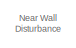
[diagram: root canvas - part 1/20, top right region]
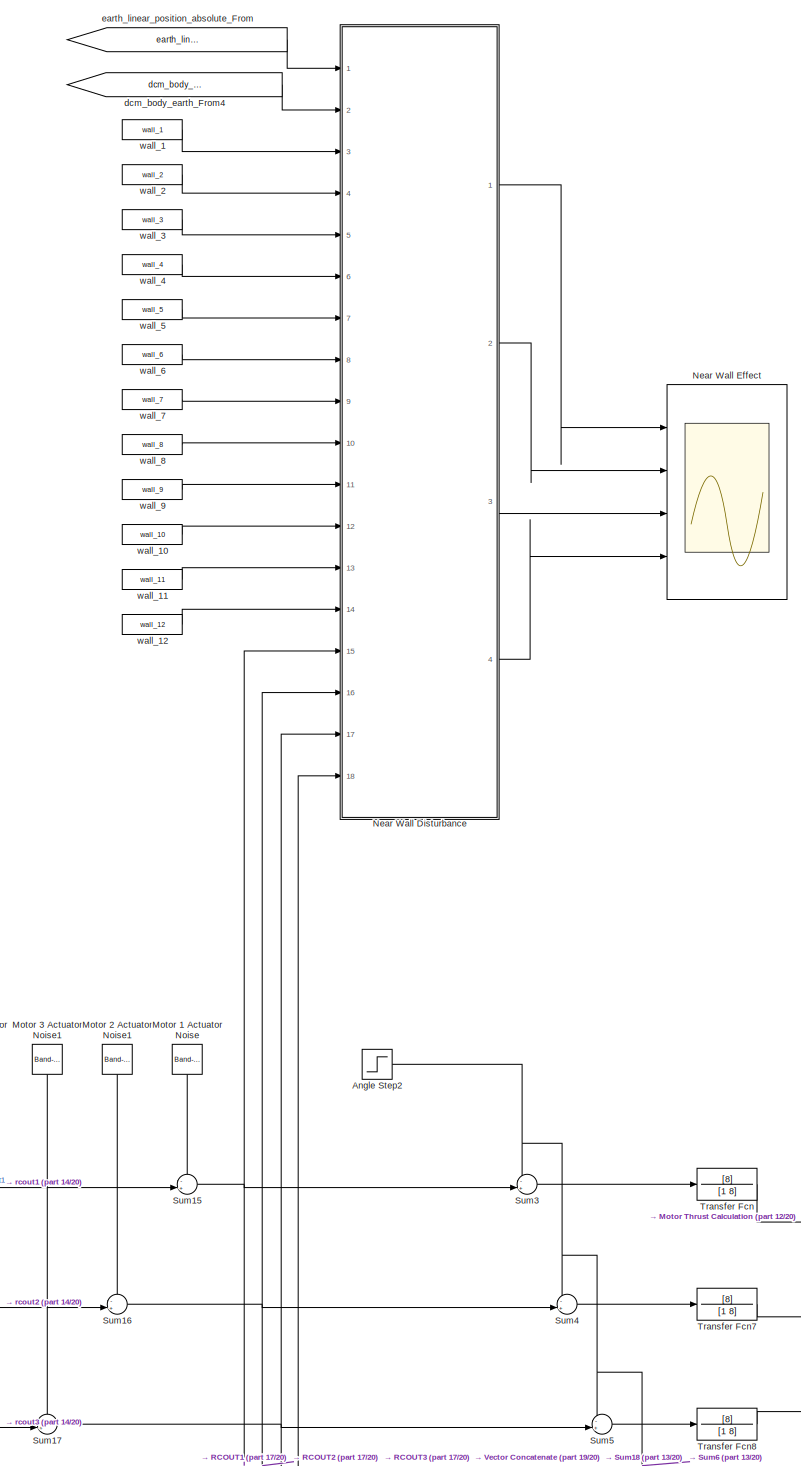
[diagram: root canvas - part 2/20, top right region]
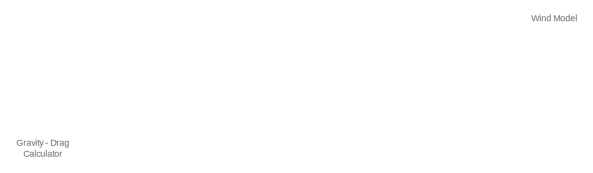
[diagram: root canvas - part 3/20, top right region]
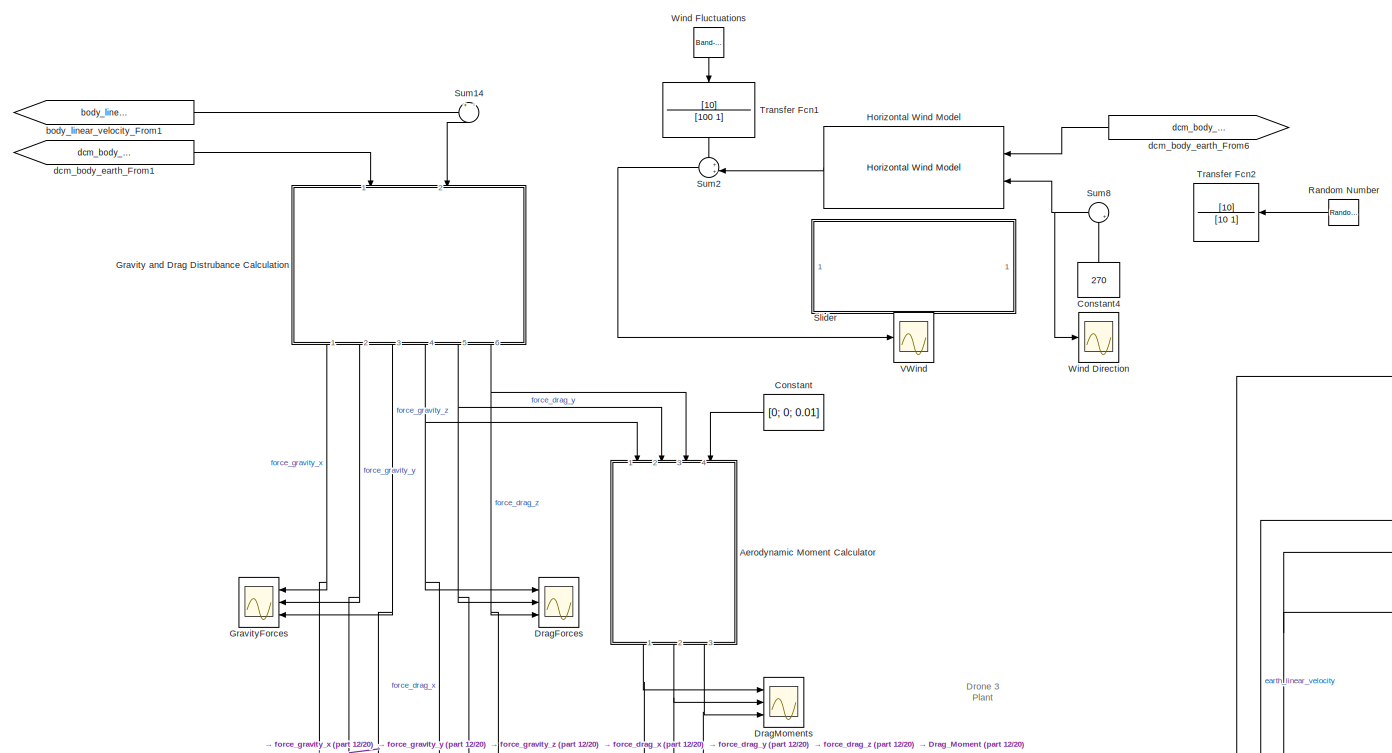
[diagram: root canvas - part 4/20, top right region]
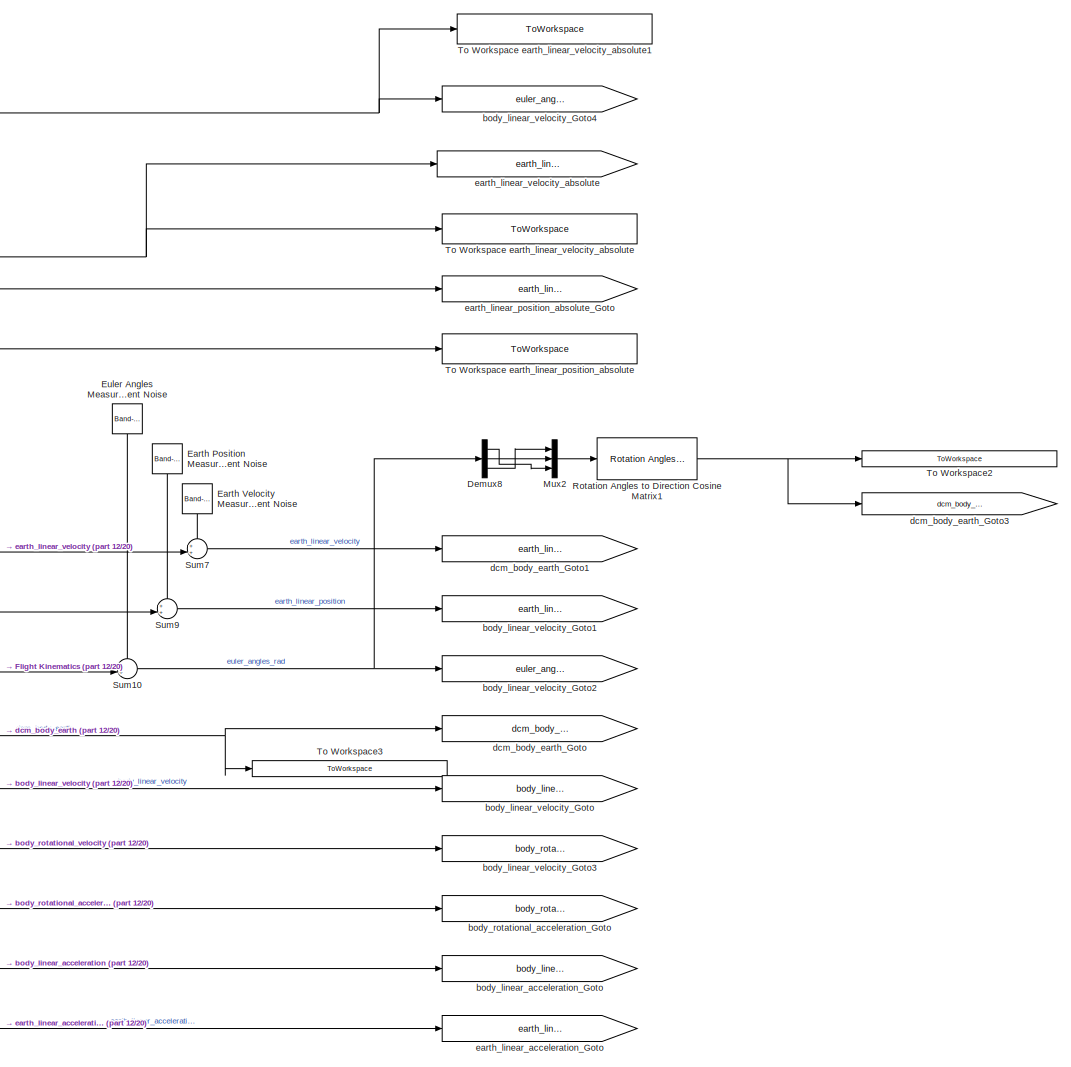
[diagram: root canvas - part 5/20, middle right region]
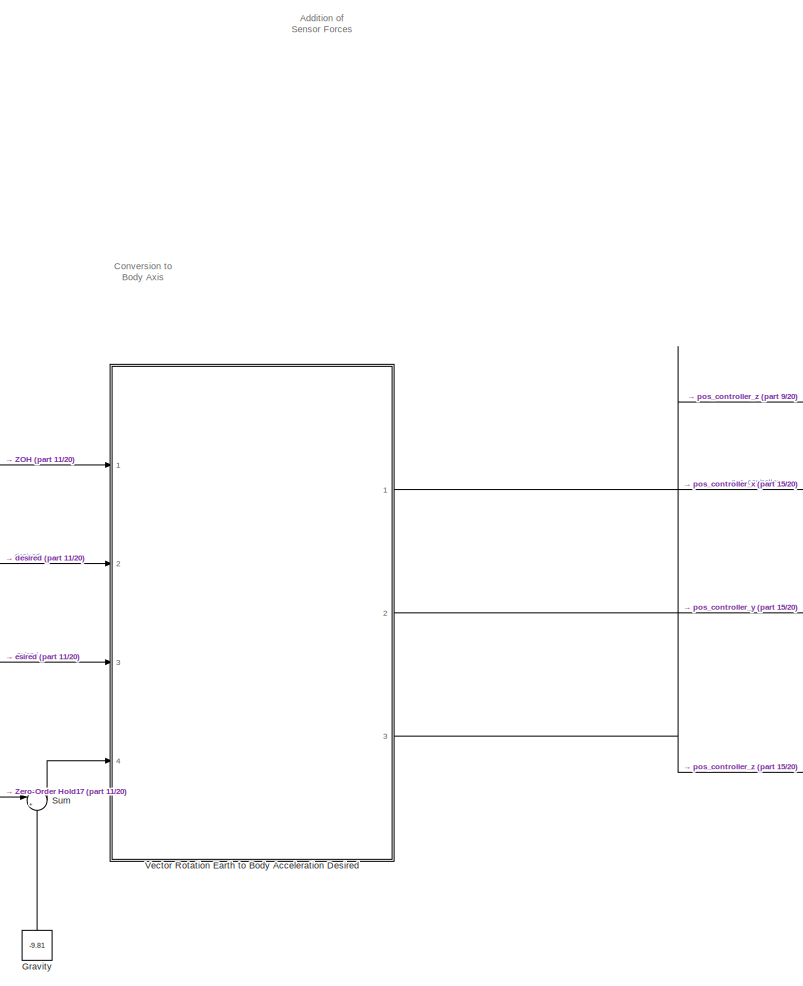
[diagram: root canvas - part 6/20, central region]
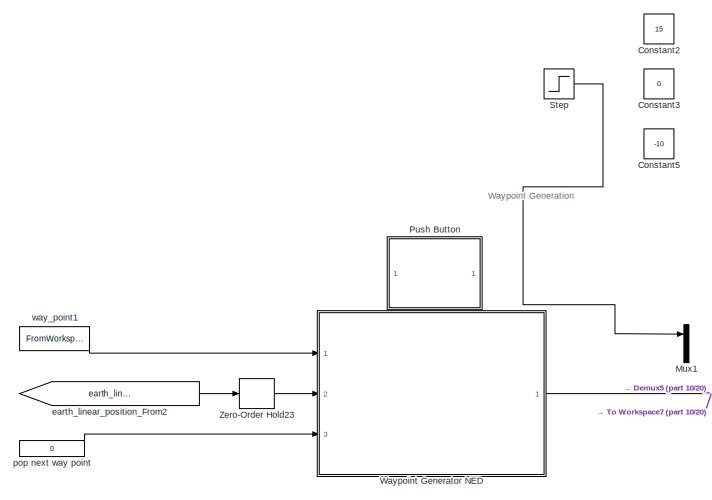
[diagram: root canvas - part 7/20, middle left region]
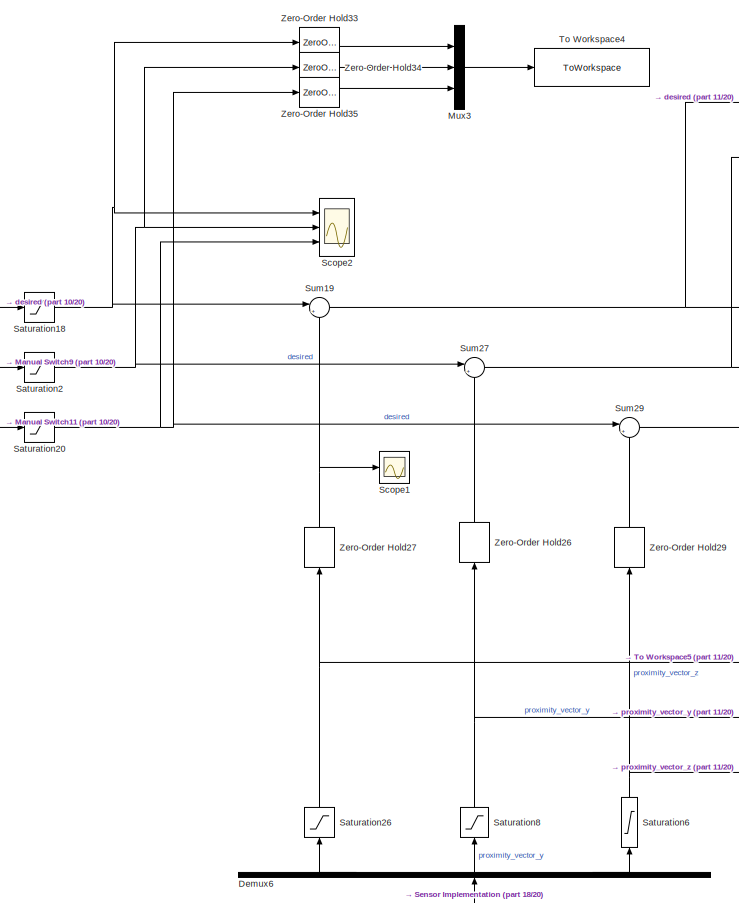
[diagram: root canvas - part 8/20, middle left region]
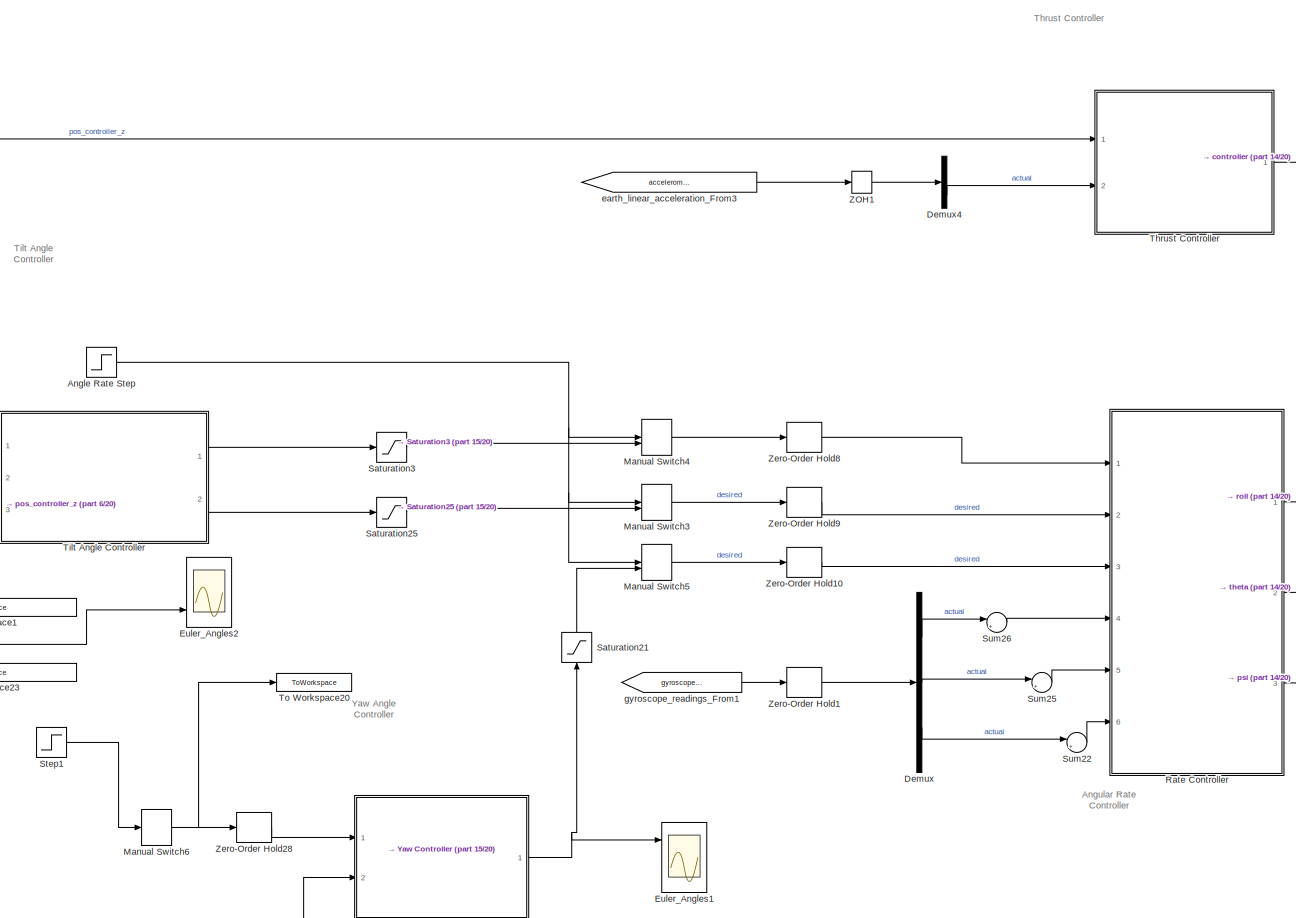
[diagram: root canvas - part 9/20, central region]
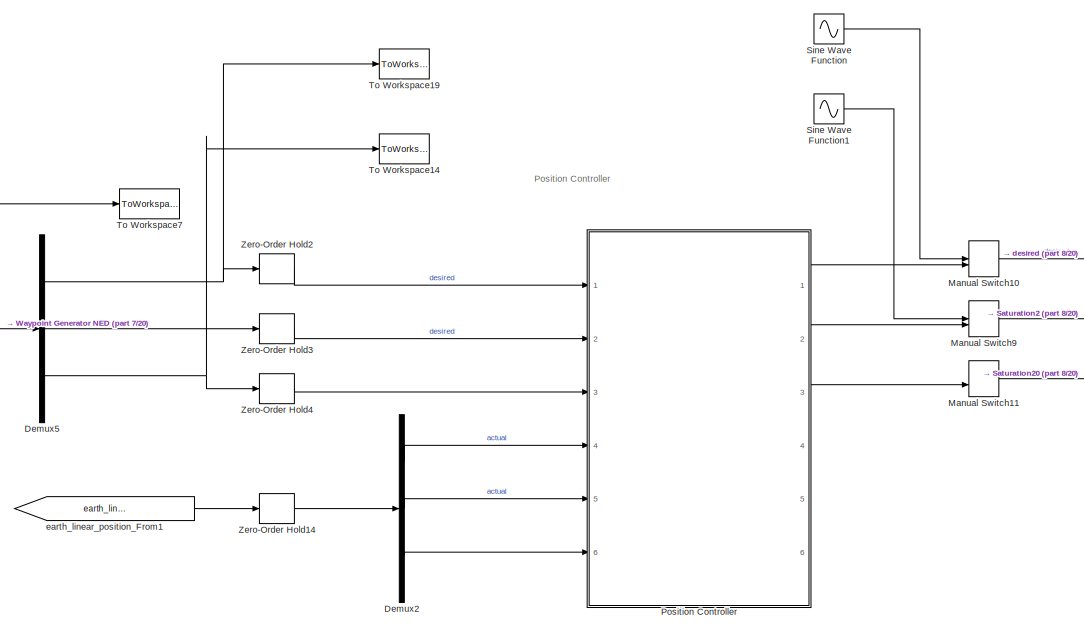
[diagram: root canvas - part 10/20, middle left region]
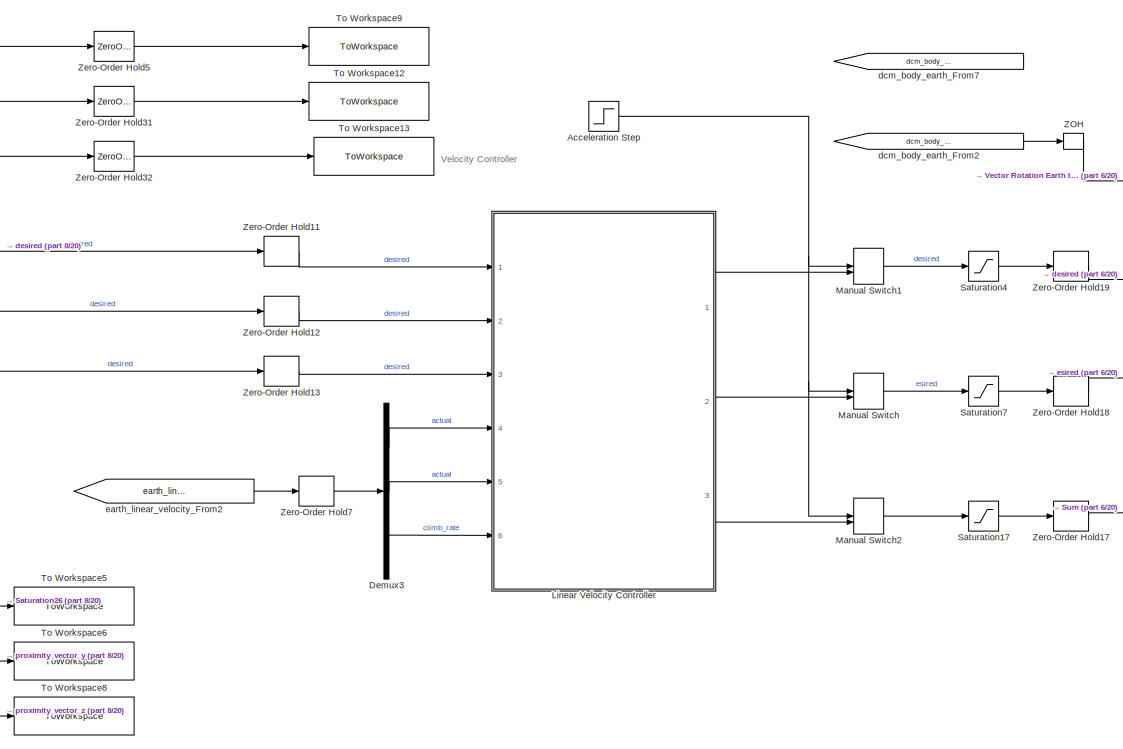
[diagram: root canvas - part 11/20, middle left region]
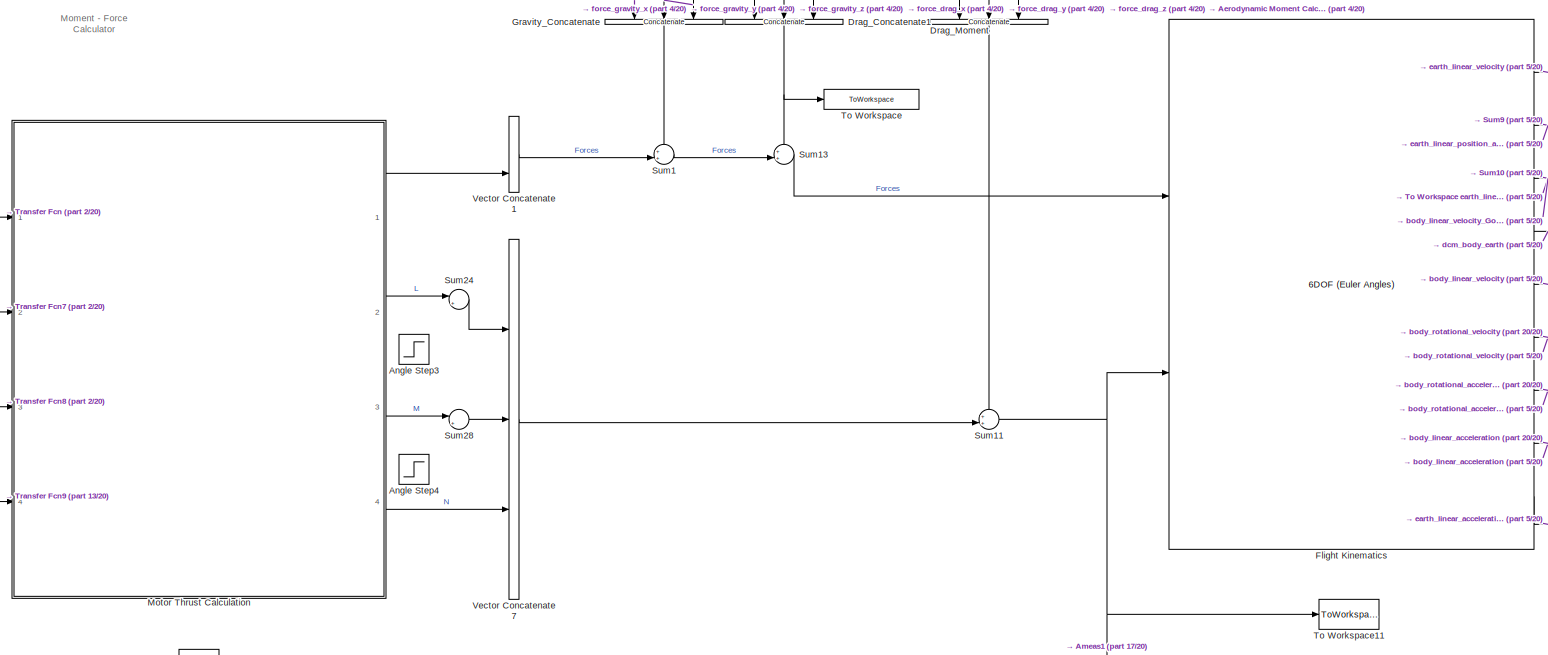
[diagram: root canvas - part 12/20, middle right region]
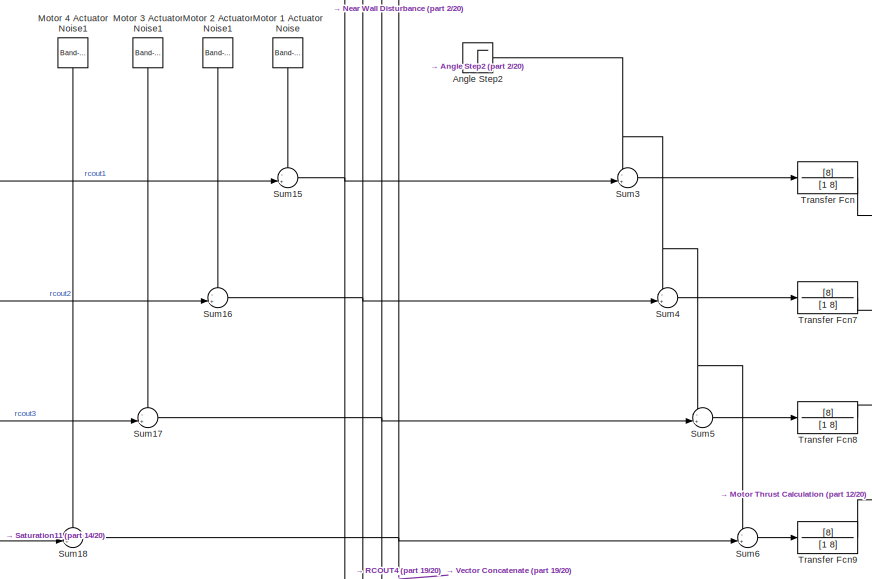
[diagram: root canvas - part 13/20, middle right region]
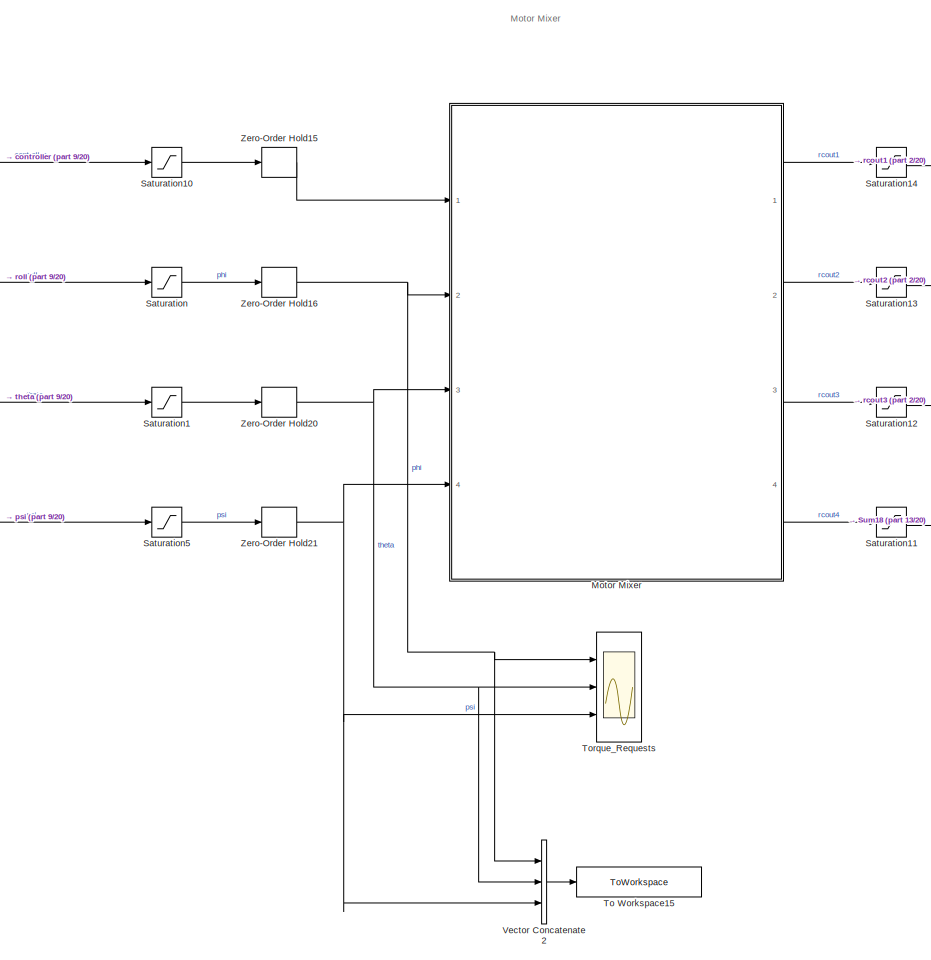
[diagram: root canvas - part 14/20, central region]
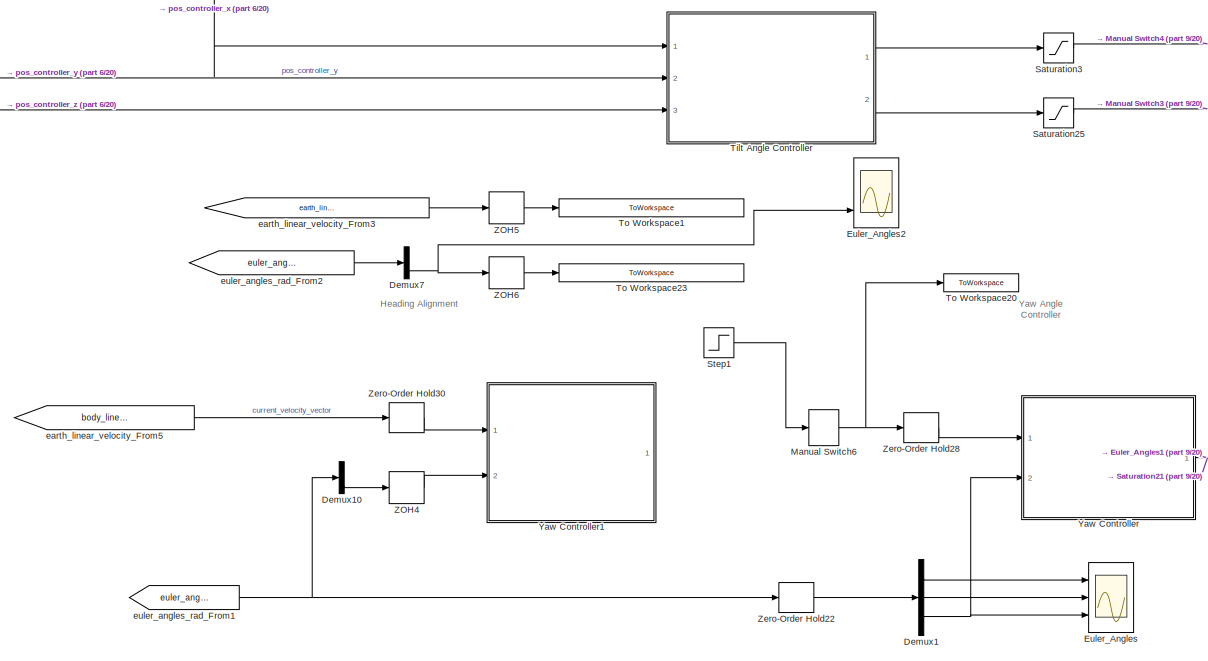
[diagram: root canvas - part 15/20, central region]
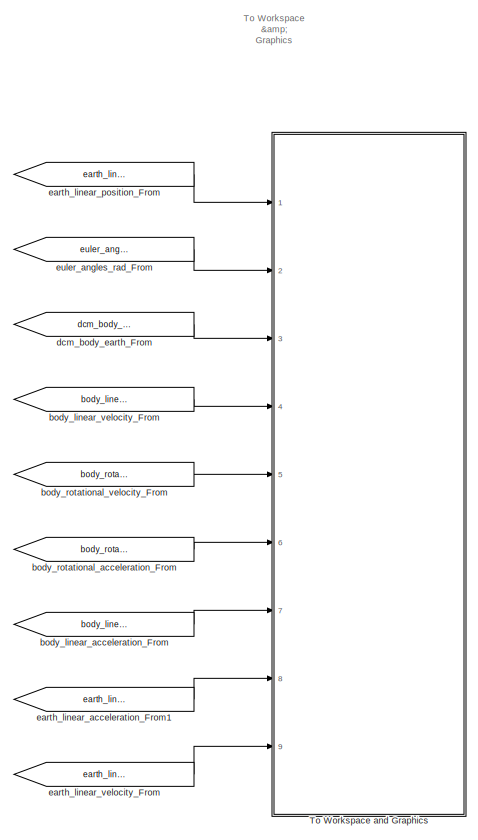
[diagram: root canvas - part 16/20, bottom left region]
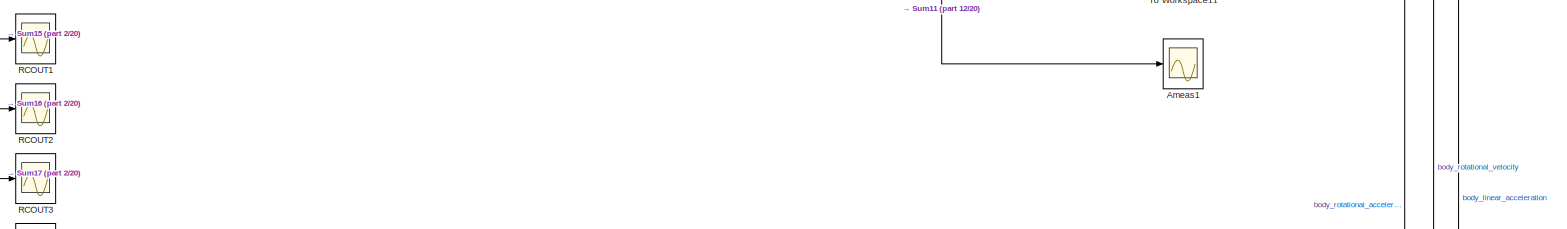
[diagram: root canvas - part 17/20, bottom right region]
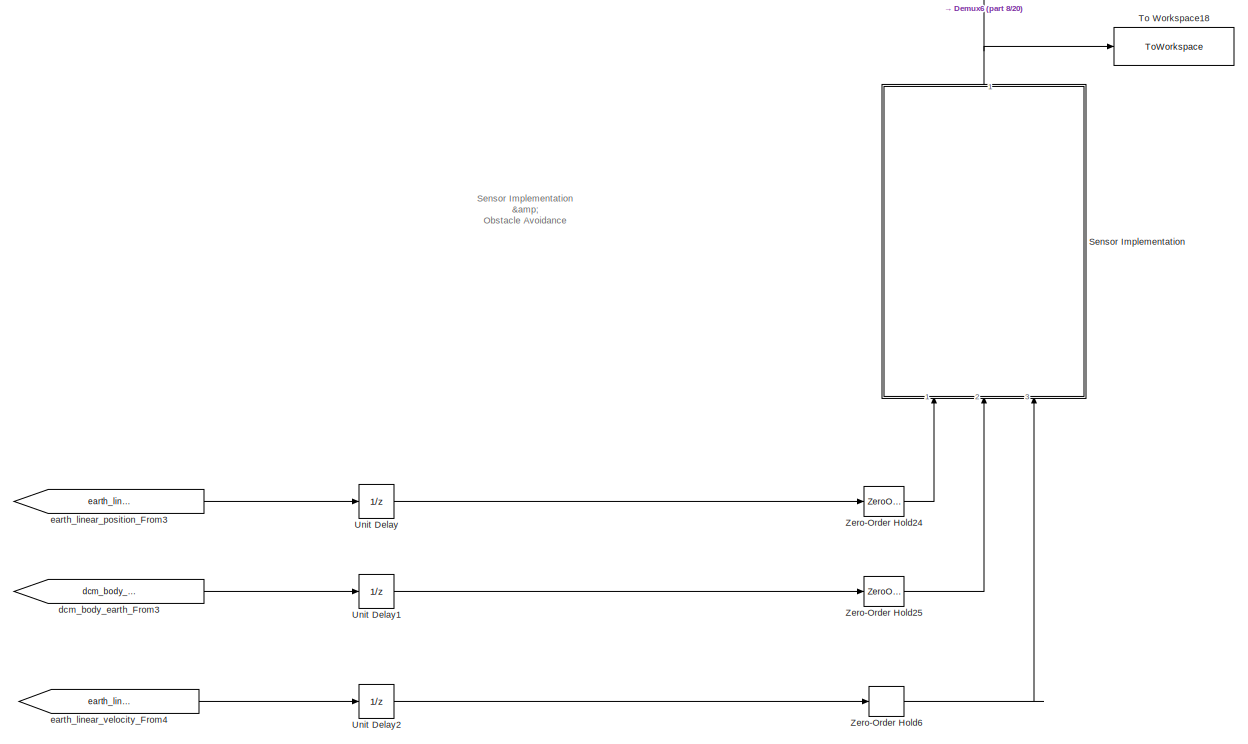
[diagram: root canvas - part 18/20, bottom left region]
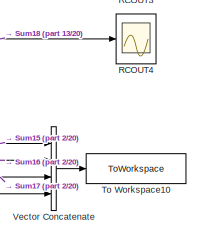
[diagram: root canvas - part 19/20, bottom right region]
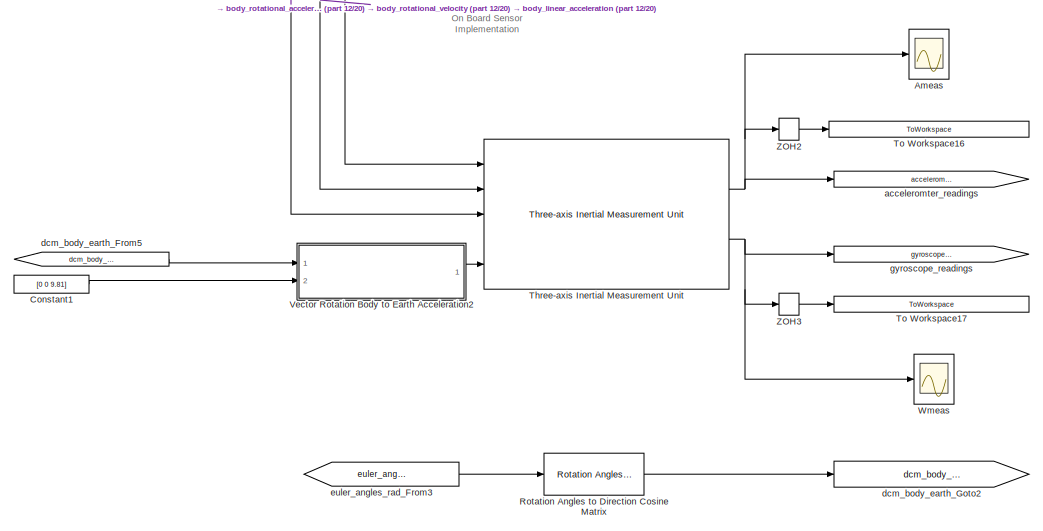
[diagram: root canvas - part 20/20, bottom right region]
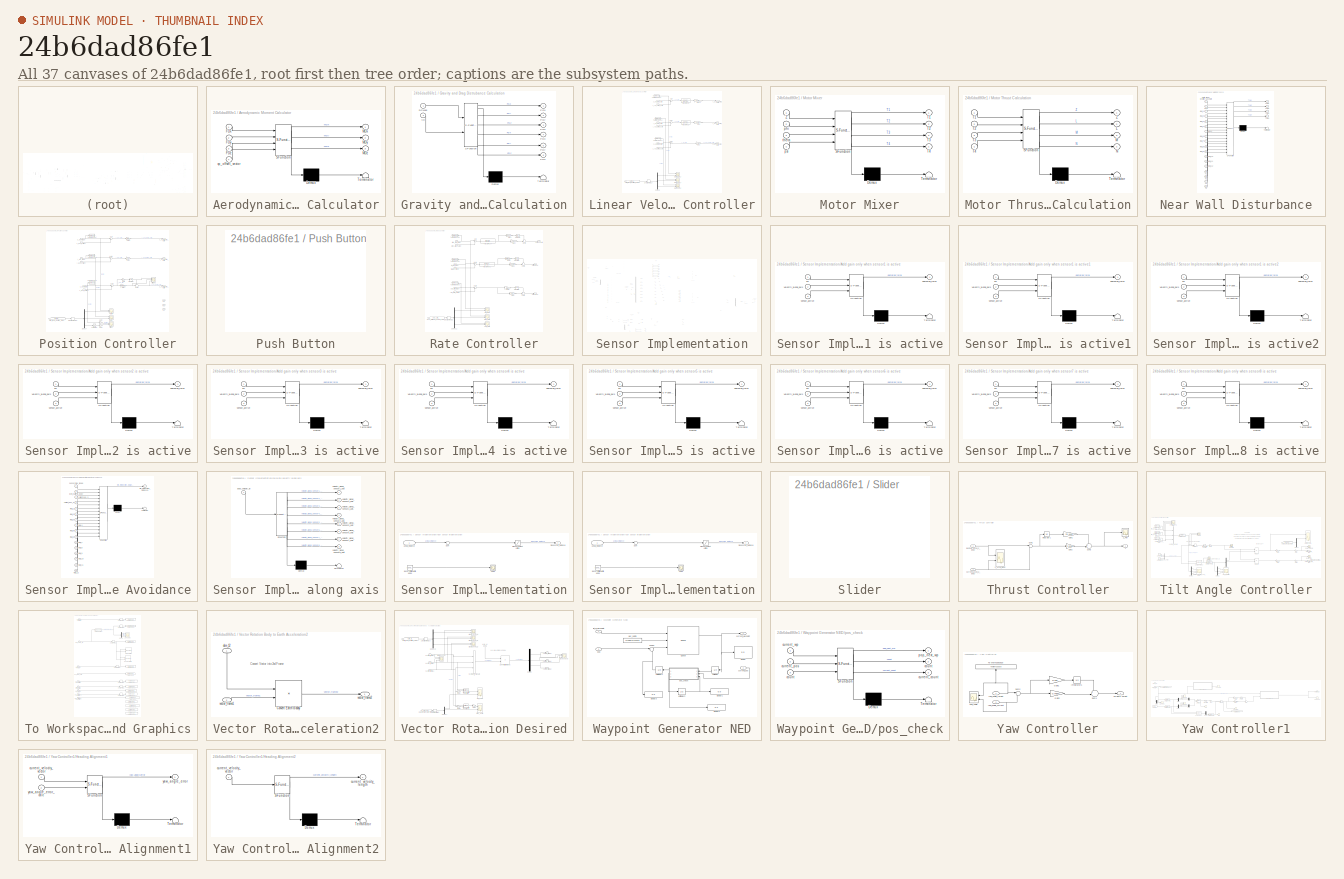
[diagram: thumbnail index - all 37 canvases of the model, root first then tree order]
MODEL slx_24b6dad86fe1
KIND model
CONFIG AbsTol = auto
CONFIG EnableMultiTasking = on
CONFIG FixedStep = Ts
CONFIG MaxStep = auto
CONFIG MinStep = auto
CONFIG RelTol = auto
CONFIG SampleTimeConstraint = Unconstrained
CONFIG Solver = VariableStepAuto
CONFIG SolverName = VariableStepAuto
CONFIG StartTime = 0.0
CONFIG StopTime = 70
WORKSPACE source: MAT-file member
WORKSPACE MCOS: class17 (value not decoded)
BLOCK [Step] Acceleration Step
  SampleTime = 0
  Time = 0
BLOCK [SubSystem] Aerodynamic Moment Calculator
  ErrorFcn = Stateflow.Translate.translate
  PermitHierarchicalResolution = ExplicitOnly
  Ports = [4, 3]
  RequestExecContextInheritance = off
  SFBlockType = MATLAB Function
  TreatAsAtomicUnit = on
  Variant = off
BLOCK [Demux] Aerodynamic Moment Calculator/ Demux 
  Outputs = 1
  Ports = [1, 1]
BLOCK [S-Function] Aerodynamic Moment Calculator/ SFunction 
  EnableBusSupport = on
  FunctionName = sf_sfun
  PortCounts = [4 4]
  Ports = [4, 4]
  SFcnIsStateOwnerBlock = off
  SFunctionDeploymentMode = off
  Tag = Stateflow S-Function Auto_mode 2
BLOCK [Terminator] Aerodynamic Moment Calculator/ Terminator 
BLOCK [Inport] Aerodynamic Moment Calculator/FDx
  IconDisplay = Port number
BLOCK [Inport] Aerodynamic Moment Calculator/FDy
  IconDisplay = Port number
  Port = 2
BLOCK [Inport] Aerodynamic Moment Calculator/FDz
  IconDisplay = Port number
  Port = 3
BLOCK [Outport] Aerodynamic Moment Calculator/MDx
  IconDisplay = Port number
BLOCK [Outport] Aerodynamic Moment Calculator/MDy
  IconDisplay = Port number
  Port = 2
BLOCK [Outport] Aerodynamic Moment Calculator/MDz
  IconDisplay = Port number
  Port = 3
BLOCK [Inport] Aerodynamic Moment Calculator/cp_offset_vector
  IconDisplay = Port number
  Port = 4
BLOCK [Scope] Ameas
  NumInputPorts = 1
  Ports = [1]
  ScopeSpecificationString = Simulink.scopes.TimeScopeBlockCfg('CurrentConfiguration', extmgr.ConfigurationSet(extmgr.Configuration('Core','General UI',true),extmgr.Configuration('Core','Source UI',true),extmgr.Configuration('Sources','WiredSimulink',true,'DataLoggingVariableName','ScopeData1'),extmgr.Configuration('Visuals','Time Domain',true,'SerializedDisplays',{struct('MinYLimReal','-13.3908','MaxYLimReal','2.16311','YLab...<+1846ch>
BLOCK [Scope] Ameas1
  NumInputPorts = 1
  Ports = [1]
  ScopeSpecificationString = Simulink.scopes.TimeScopeBlockCfg('CurrentConfiguration', extmgr.ConfigurationSet(extmgr.Configuration('Core','General UI',true),extmgr.Configuration('Core','Source UI',true),extmgr.Configuration('Sources','WiredSimulink',true,'DataLoggingVariableName','ScopeData1'),extmgr.Configuration('Visuals','Time Domain',true,'SerializedDisplays',{struct('MinYLimReal','-0.07907','MaxYLimReal','0.18068','YLab...<+1412ch>
BLOCK [Step] Angle Rate Step
  After = 0.4
  SampleTime = 0
  Time = 0.1
BLOCK [Step] Angle Step2
  After = -2.5
  SampleTime = 0
  Time = 40
BLOCK [Step] Angle Step3
  After = 0.0525
  SampleTime = 0
  Time = 10
BLOCK [Step] Angle Step4
  After = 0.2
  SampleTime = 0
  Time = 10
BLOCK [Constant] Constant
  Value = [0; 0; 0.01]
BLOCK [Constant] Constant1
  Value = [0 0 9.81]
BLOCK [Constant] Constant2
  Value = 15
BLOCK [Constant] Constant3
  Value = 0
BLOCK [Constant] Constant4
  Value = 270
BLOCK [Constant] Constant5
  Value = -10
BLOCK [Demux] Demux
  DisplayOption = bar
  Outputs = 3
  Ports = [1, 3]
BLOCK [Demux] Demux1
  DisplayOption = bar
  Outputs = 3
  Ports = [1, 3]
BLOCK [Demux] Demux10
  DisplayOption = bar
  Outputs = 3
  Ports = [1, 3]
BLOCK [Demux] Demux2
  DisplayOption = bar
  Outputs = 3
  Ports = [1, 3]
BLOCK [Demux] Demux3
  DisplayOption = bar
  Outputs = 3
  Ports = [1, 3]
BLOCK [Demux] Demux4
  DisplayOption = bar
  Outputs = 3
  Ports = [1, 3]
BLOCK [Demux] Demux5
  DisplayOption = bar
  Outputs = 3
  Ports = [1, 3]
BLOCK [Demux] Demux6
  Commented = on
  DisplayOption = bar
  Outputs = 3
  Ports = [1, 3]
BLOCK [Demux] Demux7
  DisplayOption = bar
  Outputs = 3
  Ports = [1, 3]
BLOCK [Demux] Demux8
  DisplayOption = bar
  Outputs = 3
  Ports = [1, 3]
BLOCK [Scope] DragForces
  NumInputPorts = 3
  Ports = [3]
  ScopeSpecificationString = Simulink.scopes.TimeScopeBlockCfg('CurrentConfiguration', extmgr.ConfigurationSet(extmgr.Configuration('Core','General UI',true),extmgr.Configuration('Core','Source UI',true),extmgr.Configuration('Sources','WiredSimulink',true,'DataLoggingVariableName','ScopeData1'),extmgr.Configuration('Visuals','Time Domain',true,'SerializedDisplays',{struct('MinYLimReal','-0.31583','MaxYLimReal','1.13179','YLab...<+1816ch>
BLOCK [Scope] DragMoments
  NumInputPorts = 3
  Ports = [3]
  ScopeSpecificationString = Simulink.scopes.TimeScopeBlockCfg('CurrentConfiguration', extmgr.ConfigurationSet(extmgr.Configuration('Core','General UI',true),extmgr.Configuration('Core','Source UI',true),extmgr.Configuration('Sources','WiredSimulink',true,'DataLoggingVariableName','ScopeData1'),extmgr.Configuration('Visuals','Time Domain',true,'SerializedDisplays',{struct('MinYLimReal','-0.00803','MaxYLimReal','0.00833','YLab...<+1824ch>
BLOCK [Concatenate] Drag_Concatenate1
  NumInputs = 3
  Ports = [3, 1]
BLOCK [Concatenate] Drag_Moment
  NumInputs = 3
  Ports = [3, 1]
BLOCK [Reference] Earth Position Measurement Noise  REF=simulink/Sources/Band-Limited
White Noise
  Ports = [0, 1]
  SourceBlock = simulink/Sources/Band-Limited\nWhite Noise
  SourceProductBaseCode = SL
  SourceProductName = Simulink
  SourceType = Band-Limited White Noise.
BLOCK [Reference] Earth Velocity Measurement Noise  REF=simulink/Sources/Band-Limited
White Noise
  Ports = [0, 1]
  SourceBlock = simulink/Sources/Band-Limited\nWhite Noise
  SourceProductBaseCode = SL
  SourceProductName = Simulink
  SourceType = Band-Limited White Noise.
BLOCK [Reference] Euler Angles Measurement Noise  REF=simulink/Sources/Band-Limited
White Noise
  Ports = [0, 1]
  SourceBlock = simulink/Sources/Band-Limited\nWhite Noise
  SourceProductBaseCode = SL
  SourceProductName = Simulink
  SourceType = Band-Limited White Noise.
BLOCK [Scope] Euler_Angles
  NumInputPorts = 3
  Ports = [3]
  ScopeSpecificationString = Simulink.scopes.TimeScopeBlockCfg('CurrentConfiguration', extmgr.ConfigurationSet(extmgr.Configuration('Core','General UI',true),extmgr.Configuration('Core','Source UI',true),extmgr.Configuration('Sources','WiredSimulink',true,'DataLoggingVariableName','ScopeData1'),extmgr.Configuration('Visuals','Time Domain',true,'SerializedDisplays',{struct('MinYLimReal','-0.19368','MaxYLimReal','0.20432','YLab...<+1781ch>
BLOCK [Scope] Euler_Angles1
  NumInputPorts = 3
  Ports = [3]
  ScopeSpecificationString = Simulink.scopes.TimeScopeBlockCfg('CurrentConfiguration', extmgr.ConfigurationSet(extmgr.Configuration('Core','General UI',true),extmgr.Configuration('Core','Source UI',true),extmgr.Configuration('Sources','WiredSimulink',true,'DataLoggingVariableName','ScopeData2'),extmgr.Configuration('Visuals','Time Domain',true,'SerializedDisplays',{struct('MinYLimReal','-1.43545','MaxYLimReal','1.37233','YLab...<+1791ch>
BLOCK [Scope] Euler_Angles2
  NumInputPorts = 3
  Ports = [3]
  ScopeSpecificationString = Simulink.scopes.TimeScopeBlockCfg('CurrentConfiguration', extmgr.ConfigurationSet(extmgr.Configuration('Core','General UI',true),extmgr.Configuration('Core','Source UI',true),extmgr.Configuration('Sources','WiredSimulink',true,'DataLoggingVariableName','ScopeData1'),extmgr.Configuration('Visuals','Time Domain',true,'SerializedDisplays',{struct('MinYLimReal','-1.43545','MaxYLimReal','1.37233','YLab...<+1786ch>
BLOCK [Reference] Flight Kinematics  REF=shared6dof/6DOF (Euler Angles)
  Ports = [2, 9]
  SourceBlock = shared6dof/6DOF (Euler Angles)
  SourceType = 6DOF EoM (Body Axis)
BLOCK [Constant] Gravity
  Value = -9.81
BLOCK [SubSystem] Gravity and Drag Distrubance Calculation
  ErrorFcn = Stateflow.Translate.translate
  PermitHierarchicalResolution = ExplicitOnly
  Ports = [2, 6]
  RequestExecContextInheritance = off
  SFBlockType = MATLAB Function
  TreatAsAtomicUnit = on
  Variant = off
BLOCK [Demux] Gravity and Drag Distrubance Calculation/ Demux 
  Outputs = 1
  Ports = [1, 1]
BLOCK [S-Function] Gravity and Drag Distrubance Calculation/ SFunction 
  EnableBusSupport = on
  FunctionName = sf_sfun
  PortCounts = [2 7]
  Ports = [2, 7]
  SFcnIsStateOwnerBlock = off
  SFunctionDeploymentMode = off
  Tag = Stateflow S-Function Auto_mode 3
BLOCK [Terminator] Gravity and Drag Distrubance Calculation/ Terminator 
BLOCK [Inport] Gravity and Drag Distrubance Calculation/DCMeb
  IconDisplay = Port number
BLOCK [Outport] Gravity and Drag Distrubance Calculation/FDx
  IconDisplay = Port number
  Port = 4
BLOCK [Outport] Gravity and Drag Distrubance Calculation/FDy
  IconDisplay = Port number
  Port = 5
BLOCK [Outport] Gravity and Drag Distrubance Calculation/FDz
  IconDisplay = Port number
  Port = 6
BLOCK [Outport] Gravity and Drag Distrubance Calculation/FGx
  IconDisplay = Port number
BLOCK [Outport] Gravity and Drag Distrubance Calculation/FGy
  IconDisplay = Port number
  Port = 2
BLOCK [Outport] Gravity and Drag Distrubance Calculation/FGz
  IconDisplay = Port number
  Port = 3
BLOCK [Inport] Gravity and Drag Distrubance Calculation/Vb
  IconDisplay = Port number
  Port = 2
BLOCK [Scope] GravityForces
  NumInputPorts = 3
  Ports = [3]
  ScopeSpecificationString = Simulink.scopes.TimeScopeBlockCfg('CurrentConfiguration', extmgr.ConfigurationSet(extmgr.Configuration('Core','General UI',true),extmgr.Configuration('Core','Source UI',true),extmgr.Configuration('Sources','WiredSimulink',true,'DataLoggingVariableName','ScopeData2'),extmgr.Configuration('Visuals','Time Domain',true,'SerializedDisplays',{struct('MinYLimReal','-5.72086','MaxYLimReal','37.17245','YLa...<+1774ch>
BLOCK [Concatenate] Gravity_Concatenate
  NumInputs = 3
  Ports = [3, 1]
BLOCK [Reference] Horizontal Wind Model  REF=aerolibwind2/Horizontal Wind Model
  Ports = [2, 1]
  SourceBlock = aerolibwind2/Horizontal Wind Model
  SourceProductBaseCode = AE
  SourceProductName = Aerospace Blockset
  SourceType = Horizontal Wind Model
BLOCK [SubSystem] Linear Velocity Controller
  Ports = [6, 3]
  RequestExecContextInheritance = off
  Variant = off
BLOCK [Demux] Linear Velocity Controller/Demux8
  DisplayOption = bar
  Outputs = 3
  Ports = [1, 3]
BLOCK [Gain] Linear Velocity Controller/Gain1
  Gain = 2.8
  OutDataTypeStr = Inherit: Inherit via internal rule
  ParamDataTypeStr = Inherit: Inherit via internal rule
  SaturateOnIntegerOverflow = off
BLOCK [Gain] Linear Velocity Controller/Gain13
  Gain = 0.445
  OutDataTypeStr = Inherit: Inherit via internal rule
  ParamDataTypeStr = Inherit: Inherit via internal rule
  SaturateOnIntegerOverflow = off
BLOCK [Gain] Linear Velocity Controller/Gain6
  Gain = 0.445
  OutDataTypeStr = Inherit: Inherit via internal rule
  ParamDataTypeStr = Inherit: Inherit via internal rule
  SaturateOnIntegerOverflow = off
BLOCK [Scope] Linear Velocity Controller/Global_Vel_X
  NumInputPorts = 2
  Ports = [2]
  ScopeSpecificationString = Simulink.scopes.TimeScopeBlockCfg('CurrentConfiguration', extmgr.ConfigurationSet(extmgr.Configuration('Core','General UI',true),extmgr.Configuration('Core','Source UI',true),extmgr.Configuration('Sources','WiredSimulink',true,'DataLoggingVariableName','ScopeData4'),extmgr.Configuration('Visuals','Time Domain',true,'SerializedDisplays',{struct('MinYLimReal','-0.42738','MaxYLimReal','1.1586','YLabe...<+1789ch>
BLOCK [Scope] Linear Velocity Controller/Global_Vel_Y
  NumInputPorts = 2
  Ports = [2]
  ScopeSpecificationString = Simulink.scopes.TimeScopeBlockCfg('CurrentConfiguration', extmgr.ConfigurationSet(extmgr.Configuration('Core','General UI',true),extmgr.Configuration('Core','Source UI',true),extmgr.Configuration('Sources','WiredSimulink',true,'DataLoggingVariableName','ScopeData5'),extmgr.Configuration('Visuals','Time Domain',true,'SerializedDisplays',{struct('MinYLimReal','-0.33024','MaxYLimReal','0.2554','YLabe...<+1760ch>
BLOCK [Scope] Linear Velocity Controller/Global_Vel_Z
  NumInputPorts = 2
  Ports = [2]
  ScopeSpecificationString = Simulink.scopes.TimeScopeBlockCfg('CurrentConfiguration', extmgr.ConfigurationSet(extmgr.Configuration('Core','General UI',true),extmgr.Configuration('Core','Source UI',true),extmgr.Configuration('Sources','WiredSimulink',true,'DataLoggingVariableName','ScopeData6'),extmgr.Configuration('Visuals','Time Domain',true,'SerializedDisplays',{struct('MinYLimReal','-3.24769','MaxYLimReal','1.22924','YLab...<+1404ch>
BLOCK [Sum] Linear Velocity Controller/Sum
  IconShape = round
  InputSameDT = off
  Inputs = |+-
  OutDataTypeStr = Inherit: Inherit via internal rule
  Ports = [2, 1]
  SaturateOnIntegerOverflow = off
BLOCK [Sum] Linear Velocity Controller/Sum1
  IconShape = round
  InputSameDT = off
  Inputs = |+-
  OutDataTypeStr = Inherit: Inherit via internal rule
  Ports = [2, 1]
  SaturateOnIntegerOverflow = off
BLOCK [Sum] Linear Velocity Controller/Sum2
  IconShape = round
  InputSameDT = off
  Inputs = |+-
  OutDataTypeStr = Inherit: Inherit via internal rule
  Ports = [2, 1]
  SaturateOnIntegerOverflow = off
BLOCK [ToWorkspace] Linear Velocity Controller/To Workspace12
  FixptAsFi = on
  MaxDataPoints = inf
  Ports = [1]
  SampleTime = -1
  Save2DSignal = 3-D array (concatenate along third dimension)
  VariableName = refxvel_e
BLOCK [ToWorkspace] Linear Velocity Controller/To Workspace13
  FixptAsFi = on
  MaxDataPoints = inf
  Ports = [1]
  SampleTime = -1
  Save2DSignal = 3-D array (concatenate along third dimension)
  VariableName = refyvel_e
BLOCK [ToWorkspace] Linear Velocity Controller/To Workspace14
  FixptAsFi = on
  MaxDataPoints = inf
  Ports = [1]
  SampleTime = -1
  Save2DSignal = 3-D array (concatenate along third dimension)
  VariableName = refzvel_e
BLOCK [TransferFcn] Linear Velocity Controller/Transfer Fcn2
  Denominator = [1 0.0105]
  Numerator = [1 0.042]
BLOCK [TransferFcn] Linear Velocity Controller/Transfer Fcn3
  Denominator = [1 0.0105]
  Numerator = [1 0.042]
BLOCK [ZeroOrderHold] Linear Velocity Controller/Zero-Order Hold27
  SampleTime = Outer_Ts
BLOCK [From] Linear Velocity Controller/earth_linear_position_From5
  GotoTag = earth_linear_velocity_no_noise
  TagVisibility = global
BLOCK [Outport] Linear Velocity Controller/x_accel_desired_earth
  IconDisplay = Port number
BLOCK [Inport] Linear Velocity Controller/x_vel_current_earth
  IconDisplay = Port number
  Port = 4
BLOCK [Inport] Linear Velocity Controller/x_vel_target_earth
  IconDisplay = Port number
BLOCK [Outport] Linear Velocity Controller/y_accel_desired_earth
  IconDisplay = Port number
  Port = 2
BLOCK [Inport] Linear Velocity Controller/y_vel_current_earth
  IconDisplay = Port number
  Port = 5
BLOCK [Inport] Linear Velocity Controller/y_vel_target_earth
  IconDisplay = Port number
  Port = 2
BLOCK [Outport] Linear Velocity Controller/z_accel_desired_earth
  IconDisplay = Port number
  Port = 3
BLOCK [Inport] Linear Velocity Controller/z_vel_current_earth
  IconDisplay = Port number
  Port = 6
BLOCK [Inport] Linear Velocity Controller/z_vel_target_earth
  IconDisplay = Port number
  Port = 3
BLOCK [ManualSwitch] Manual Switch
  CurrentSetting = 0
BLOCK [ManualSwitch] Manual Switch1
  CurrentSetting = 0
BLOCK [ManualSwitch] Manual Switch10
  CurrentSetting = 0
BLOCK [ManualSwitch] Manual Switch11
  CurrentSetting = 0
BLOCK [ManualSwitch] Manual Switch2
  CurrentSetting = 0
BLOCK [ManualSwitch] Manual Switch3
  CurrentSetting = 0
BLOCK [ManualSwitch] Manual Switch4
  CurrentSetting = 0
BLOCK [ManualSwitch] Manual Switch5
  CurrentSetting = 0
BLOCK [ManualSwitch] Manual Switch6
BLOCK [ManualSwitch] Manual Switch9
  CurrentSetting = 0
BLOCK [Reference] Motor 1 Actuator Noise  REF=simulink/Sources/Band-Limited
White Noise
  Ports = [0, 1]
  SourceBlock = simulink/Sources/Band-Limited\nWhite Noise
  SourceProductBaseCode = SL
  SourceProductName = Simulink
  SourceType = Band-Limited White Noise.
BLOCK [Reference] Motor 2 Actuator Noise1  REF=simulink/Sources/Band-Limited
White Noise
  Ports = [0, 1]
  SourceBlock = simulink/Sources/Band-Limited\nWhite Noise
  SourceProductBaseCode = SL
  SourceProductName = Simulink
  SourceType = Band-Limited White Noise.
BLOCK [Reference] Motor 3 Actuator Noise1  REF=simulink/Sources/Band-Limited
White Noise
  Ports = [0, 1]
  SourceBlock = simulink/Sources/Band-Limited\nWhite Noise
  SourceProductBaseCode = SL
  SourceProductName = Simulink
  SourceType = Band-Limited White Noise.
BLOCK [Reference] Motor 4 Actuator Noise1  REF=simulink/Sources/Band-Limited
White Noise
  Ports = [0, 1]
  SourceBlock = simulink/Sources/Band-Limited\nWhite Noise
  SourceProductBaseCode = SL
  SourceProductName = Simulink
  SourceType = Band-Limited White Noise.
BLOCK [SubSystem] Motor Mixer
  ErrorFcn = Stateflow.Translate.translate
  PermitHierarchicalResolution = ExplicitOnly
  Ports = [4, 4]
  RequestExecContextInheritance = off
  SFBlockType = MATLAB Function
  Variant = off
BLOCK [Demux] Motor Mixer/ Demux 
  Outputs = 1
  Ports = [1, 1]
BLOCK [S-Function] Motor Mixer/ SFunction 
  EnableBusSupport = on
  FunctionName = sf_sfun
  PortCounts = [4 5]
  Ports = [4, 5]
  SFcnIsStateOwnerBlock = off
  SFunctionDeploymentMode = off
  Tag = Stateflow S-Function Auto_mode 5
BLOCK [Terminator] Motor Mixer/ Terminator 
BLOCK [Outport] Motor Mixer/T1
  IconDisplay = Port number
BLOCK [Outport] Motor Mixer/T2
  IconDisplay = Port number
  Port = 2
BLOCK [Outport] Motor Mixer/T3
  IconDisplay = Port number
  Port = 3
BLOCK [Outport] Motor Mixer/T4
  IconDisplay = Port number
  Port = 4
BLOCK [Inport] Motor Mixer/Z
  IconDisplay = Port number
BLOCK [Inport] Motor Mixer/phi
  IconDisplay = Port number
  Port = 2
BLOCK [Inport] Motor Mixer/psi
  IconDisplay = Port number
  Port = 4
BLOCK [Inport] Motor Mixer/theta
  IconDisplay = Port number
  Port = 3
BLOCK [SubSystem] Motor Thrust Calculation
  ErrorFcn = Stateflow.Translate.translate
  PermitHierarchicalResolution = ExplicitOnly
  Ports = [4, 4]
  RequestExecContextInheritance = off
  SFBlockType = MATLAB Function
  Variant = off
BLOCK [Demux] Motor Thrust Calculation/ Demux 
  Outputs = 1
  Ports = [1, 1]
BLOCK [S-Function] Motor Thrust Calculation/ SFunction 
  EnableBusSupport = on
  FunctionName = sf_sfun
  PortCounts = [4 5]
  Ports = [4, 5]
  SFcnIsStateOwnerBlock = off
  SFunctionDeploymentMode = off
  Tag = Stateflow S-Function Auto_mode 7
BLOCK [Terminator] Motor Thrust Calculation/ Terminator 
BLOCK [Outport] Motor Thrust Calculation/L
  IconDisplay = Port number
  Port = 2
BLOCK [Outport] Motor Thrust Calculation/M
  IconDisplay = Port number
  Port = 3
BLOCK [Outport] Motor Thrust Calculation/N
  IconDisplay = Port number
  Port = 4
BLOCK [Inport] Motor Thrust Calculation/T1
  IconDisplay = Port number
BLOCK [Inport] Motor Thrust Calculation/T2
  IconDisplay = Port number
  Port = 2
BLOCK [Inport] Motor Thrust Calculation/T3
  IconDisplay = Port number
  Port = 3
BLOCK [Inport] Motor Thrust Calculation/T4
  IconDisplay = Port number
  Port = 4
BLOCK [Outport] Motor Thrust Calculation/Z
  IconDisplay = Port number
BLOCK [Mux] Mux1
  DisplayOption = bar
  Inputs = 3
  Ports = [3, 1]
BLOCK [Mux] Mux2
  DisplayOption = bar
  Inputs = 3
  Ports = [3, 1]
BLOCK [Mux] Mux3
  DisplayOption = bar
  Inputs = 3
  Ports = [3, 1]
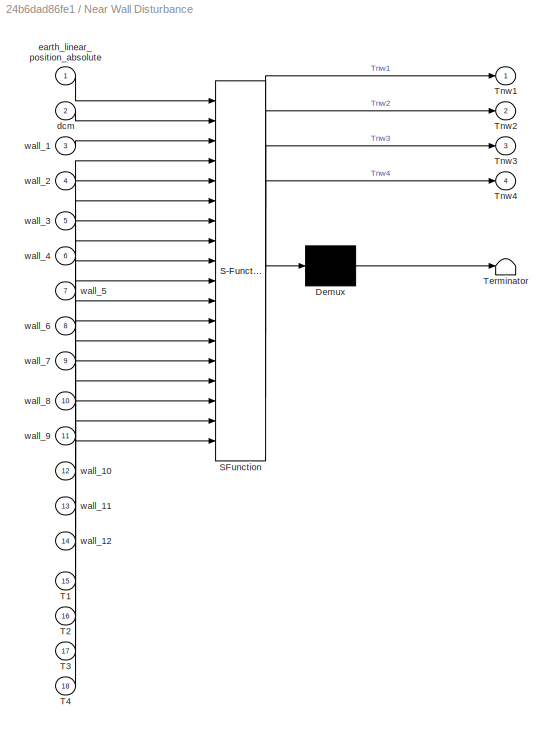
BLOCK [SubSystem] Near Wall Disturbance
  Commented = on
  ErrorFcn = Stateflow.Translate.translate
  PermitHierarchicalResolution = ExplicitOnly
  Ports = [18, 4]
  RequestExecContextInheritance = off
  SFBlockType = MATLAB Function
  TreatAsAtomicUnit = on
  Variant = off
BLOCK [Demux] Near Wall Disturbance/ Demux 
  Outputs = 1
  Ports = [1, 1]
BLOCK [S-Function] Near Wall Disturbance/ SFunction 
  EnableBusSupport = on
  FunctionName = sf_sfun
  PortCounts = [18 5]
  Ports = [18, 5]
  SFcnIsStateOwnerBlock = off
  SFunctionDeploymentMode = off
  Tag = Stateflow S-Function Auto_mode 11
BLOCK [Terminator] Near Wall Disturbance/ Terminator 
BLOCK [Inport] Near Wall Disturbance/T1
  IconDisplay = Port number
  Port = 15
BLOCK [Inport] Near Wall Disturbance/T2
  IconDisplay = Port number
  Port = 16
BLOCK [Inport] Near Wall Disturbance/T3
  IconDisplay = Port number
  Port = 17
BLOCK [Inport] Near Wall Disturbance/T4
  IconDisplay = Port number
  Port = 18
BLOCK [Outport] Near Wall Disturbance/Tnw1
  IconDisplay = Port number
BLOCK [Outport] Near Wall Disturbance/Tnw2
  IconDisplay = Port number
  Port = 2
BLOCK [Outport] Near Wall Disturbance/Tnw3
  IconDisplay = Port number
  Port = 3
BLOCK [Outport] Near Wall Disturbance/Tnw4
  IconDisplay = Port number
  Port = 4
BLOCK [Inport] Near Wall Disturbance/dcm
  IconDisplay = Port number
  Port = 2
BLOCK [Inport] Near Wall Disturbance/earth_linear_position_absolute
  IconDisplay = Port number
BLOCK [Inport] Near Wall Disturbance/wall_1
  IconDisplay = Port number
  Port = 3
BLOCK [Inport] Near Wall Disturbance/wall_10
  IconDisplay = Port number
  Port = 12
BLOCK [Inport] Near Wall Disturbance/wall_11
  IconDisplay = Port number
  Port = 13
BLOCK [Inport] Near Wall Disturbance/wall_12
  IconDisplay = Port number
  Port = 14
BLOCK [Inport] Near Wall Disturbance/wall_2
  IconDisplay = Port number
  Port = 4
BLOCK [Inport] Near Wall Disturbance/wall_3
  IconDisplay = Port number
  Port = 5
BLOCK [Inport] Near Wall Disturbance/wall_4
  IconDisplay = Port number
  Port = 6
BLOCK [Inport] Near Wall Disturbance/wall_5
  IconDisplay = Port number
  Port = 7
BLOCK [Inport] Near Wall Disturbance/wall_6
  IconDisplay = Port number
  Port = 8
BLOCK [Inport] Near Wall Disturbance/wall_7
  IconDisplay = Port number
  Port = 9
BLOCK [Inport] Near Wall Disturbance/wall_8
  IconDisplay = Port number
  Port = 10
BLOCK [Inport] Near Wall Disturbance/wall_9
  IconDisplay = Port number
  Port = 11
BLOCK [Scope] Near Wall Effect
  Commented = on
  NumInputPorts = 4
  Ports = [4]
  ScopeSpecificationString = Simulink.scopes.TimeScopeBlockCfg('CurrentConfiguration', extmgr.ConfigurationSet(extmgr.Configuration('Core','General UI',true),extmgr.Configuration('Core','Source UI',true),extmgr.Configuration('Sources','WiredSimulink',true,'DataLoggingVariableName','ScopeData1'),extmgr.Configuration('Visuals','Time Domain',true,'SerializedDisplays',{struct('MinYLimReal','-1.87461','MaxYLimReal','0.20829','YLab...<+1411ch>
BLOCK [SubSystem] Position Controller
  Ports = [6, 6]
  RequestExecContextInheritance = off
  Variant = off
BLOCK [Scope] Position Controller/ North
  NumInputPorts = 2
  Ports = [2]
  ScopeSpecificationString = Simulink.scopes.TimeScopeBlockCfg('CurrentConfiguration', extmgr.ConfigurationSet(extmgr.Configuration('Core','General UI',true),extmgr.Configuration('Core','Source UI',true),extmgr.Configuration('Sources','WiredSimulink',true,'DataLoggingVariableName','ScopeData1'),extmgr.Configuration('Visuals','Time Domain',true,'SerializedDisplays',{struct('MinYLimReal','-1.25','MaxYLimReal','11.25','YLabelRea...<+1791ch>
BLOCK [Scope] Position Controller/Altitude
  NumInputPorts = 2
  Ports = [2]
  ScopeSpecificationString = Simulink.scopes.TimeScopeBlockCfg('CurrentConfiguration', extmgr.ConfigurationSet(extmgr.Configuration('Core','General UI',true),extmgr.Configuration('Core','Source UI',true),extmgr.Configuration('Sources','WiredSimulink',true,'DataLoggingVariableName','ScopeData2'),extmgr.Configuration('Visuals','Time Domain',true,'SerializedDisplays',{struct('MinYLimReal','-0.76336','MaxYLimReal','6.87025','YLab...<+1596ch>
BLOCK [Scope] Position Controller/Altitude1
  NumInputPorts = 3
  Ports = [3]
  ScopeSpecificationString = Simulink.scopes.TimeScopeBlockCfg('CurrentConfiguration', extmgr.ConfigurationSet(extmgr.Configuration('Core','General UI',true),extmgr.Configuration('Core','Source UI',true),extmgr.Configuration('Sources','WiredSimulink',true,'DataLoggingVariableName','ScopeData2'),extmgr.Configuration('Visuals','Time Domain',true,'SerializedDisplays',{struct('MinYLimReal','-6.69063','MaxYLimReal','0.7434','YLabe...<+1590ch>
BLOCK [Demux] Position Controller/Demux7
  DisplayOption = bar
  Outputs = 3
  Ports = [1, 3]
BLOCK [Scope] Position Controller/East
  NumInputPorts = 2
  Ports = [2]
  ScopeSpecificationString = Simulink.scopes.TimeScopeBlockCfg('CurrentConfiguration', extmgr.ConfigurationSet(extmgr.Configuration('Core','General UI',true),extmgr.Configuration('Core','Source UI',true),extmgr.Configuration('Sources','WiredSimulink',true,'DataLoggingVariableName','ScopeData3'),extmgr.Configuration('Visuals','Time Domain',true,'SerializedDisplays',{struct('MinYLimReal','-1.32951','MaxYLimReal','11.25883','YLa...<+1810ch>
BLOCK [Gain] Position Controller/Gain
  Gain = 0.3
  OutDataTypeStr = Inherit: Inherit via internal rule
  ParamDataTypeStr = Inherit: Inherit via internal rule
  SaturateOnIntegerOverflow = off
BLOCK [Gain] Position Controller/Gain1
  Gain = 0.92657
  OutDataTypeStr = Inherit: Inherit via internal rule
  ParamDataTypeStr = Inherit: Inherit via internal rule
  SaturateOnIntegerOverflow = off
BLOCK [Gain] Position Controller/Gain2
  Gain = -1
  OutDataTypeStr = Inherit: Inherit via internal rule
  ParamDataTypeStr = Inherit: Inherit via internal rule
  SaturateOnIntegerOverflow = off
BLOCK [Gain] Position Controller/Gain3
  Gain = -1
  OutDataTypeStr = Inherit: Inherit via internal rule
  ParamDataTypeStr = Inherit: Inherit via internal rule
  SaturateOnIntegerOverflow = off
BLOCK [Gain] Position Controller/Gain4
  Gain = 0.2
  OutDataTypeStr = Inherit: Inherit via internal rule
  ParamDataTypeStr = Inherit: Inherit via internal rule
  SaturateOnIntegerOverflow = off
BLOCK [Gain] Position Controller/Gain7
  Gain = 0.15
  OutDataTypeStr = Inherit: Inherit via internal rule
  ParamDataTypeStr = Inherit: Inherit via internal rule
  SaturateOnIntegerOverflow = off
BLOCK [Integrator] Position Controller/Integrator
  LimitOutput = on
  LowerSaturationLimit = -0.09
  Ports = [1, 1]
  UpperSaturationLimit = 0.09
BLOCK [Outport] Position Controller/NA0
  IconDisplay = Port number
  Port = 4
BLOCK [Outport] Position Controller/NA1
  IconDisplay = Port number
  Port = 5
BLOCK [Outport] Position Controller/NA2
  IconDisplay = Port number
  Port = 6
BLOCK [Saturate] Position Controller/Saturation9
  InputPortMap = u0
  LowerLimit = -5000
  Ports = [1, 1]
  UpperLimit = 0
BLOCK [Sum] Position Controller/Sum
  IconShape = round
  InputSameDT = off
  Inputs = |+-
  OutDataTypeStr = Inherit: Inherit via internal rule
  Ports = [2, 1]
  SaturateOnIntegerOverflow = off
BLOCK [Sum] Position Controller/Sum1
  IconShape = round
  InputSameDT = off
  Inputs = |+-
  OutDataTypeStr = Inherit: Inherit via internal rule
  Ports = [2, 1]
  SaturateOnIntegerOverflow = off
BLOCK [Sum] Position Controller/Sum2
  IconShape = round
  InputSameDT = off
  Inputs = |+-
  OutDataTypeStr = Inherit: Inherit via internal rule
  Ports = [2, 1]
  SaturateOnIntegerOverflow = off
BLOCK [Sum] Position Controller/Sum3
  IconShape = round
  InputSameDT = off
  Inputs = +|+|+
  OutDataTypeStr = Inherit: Inherit via internal rule
  Ports = [3, 1]
  SaturateOnIntegerOverflow = off
BLOCK [ToWorkspace] Position Controller/To Workspace7
  FixptAsFi = on
  MaxDataPoints = inf
  Ports = [1]
  SampleTime = -1
  Save2DSignal = 3-D array (concatenate along third dimension)
  VariableName = refxpos
BLOCK [ToWorkspace] Position Controller/To Workspace8
  FixptAsFi = on
  MaxDataPoints = inf
  Ports = [1]
  SampleTime = -1
  Save2DSignal = 3-D array (concatenate along third dimension)
  VariableName = refypos
BLOCK [ToWorkspace] Position Controller/To Workspace9
  FixptAsFi = on
  MaxDataPoints = inf
  Ports = [1]
  SampleTime = -1
  Save2DSignal = 3-D array (concatenate along third dimension)
  VariableName = refzpos
BLOCK [ZeroOrderHold] Position Controller/Zero-Order Hold26
  SampleTime = Outer_Ts
BLOCK [From] Position Controller/earth_linear_position_From4
  GotoTag = earth_linear_position_no_noise
  TagVisibility = global
BLOCK [Inport] Position Controller/x_pos_current
  IconDisplay = Port number
  Port = 4
BLOCK [Inport] Position Controller/x_pos_target
  IconDisplay = Port number
BLOCK [Outport] Position Controller/x_vel_desired_earth
  IconDisplay = Port number
BLOCK [Inport] Position Controller/y_pos_current
  IconDisplay = Port number
  Port = 5
BLOCK [Inport] Position Controller/y_pos_target
  IconDisplay = Port number
  Port = 2
BLOCK [Outport] Position Controller/y_vel_desired_earth
  IconDisplay = Port number
  Port = 2
BLOCK [Inport] Position Controller/z_pos_current
  IconDisplay = Port number
  Port = 6
BLOCK [Inport] Position Controller/z_pos_target
  IconDisplay = Port number
  Port = 3
BLOCK [Outport] Position Controller/z_vel_desired_earth
  IconDisplay = Port number
  Port = 3
BLOCK [SubSystem] Push Button
  DialogController = hmiCreateDDGDialog
  IsWebBlock = on
  Ports = []
  RequestExecContextInheritance = off
  Variant = off
BLOCK [Scope] RCOUT1
  NumInputPorts = 1
  Ports = [1]
  ScopeSpecificationString = Simulink.scopes.TimeScopeBlockCfg('CurrentConfiguration', extmgr.ConfigurationSet(extmgr.Configuration('Core','General UI',true),extmgr.Configuration('Core','Source UI',true),extmgr.Configuration('Sources','WiredSimulink',true,'DataLoggingVariableName','ScopeData1'),extmgr.Configuration('Visuals','Time Domain',true,'SerializedDisplays',{struct('MinYLimReal','-16.03976','MaxYLimReal','-3.95547','YL...<+1704ch>
BLOCK [Scope] RCOUT2
  NumInputPorts = 1
  Ports = [1]
  ScopeSpecificationString = Simulink.scopes.TimeScopeBlockCfg('CurrentConfiguration', extmgr.ConfigurationSet(extmgr.Configuration('Core','General UI',true),extmgr.Configuration('Core','Source UI',true),extmgr.Configuration('Sources','WiredSimulink',true,'DataLoggingVariableName','ScopeData3'),extmgr.Configuration('Visuals','Time Domain',true,'SerializedDisplays',{struct('MinYLimReal','-11.64262','MaxYLimReal','-5.34013','YL...<+1744ch>
BLOCK [Scope] RCOUT3
  NumInputPorts = 1
  Ports = [1]
  ScopeSpecificationString = Simulink.scopes.TimeScopeBlockCfg('CurrentConfiguration', extmgr.ConfigurationSet(extmgr.Configuration('Core','General UI',true),extmgr.Configuration('Core','Source UI',true),extmgr.Configuration('Sources','WiredSimulink',true,'DataLoggingVariableName','ScopeData4'),extmgr.Configuration('Visuals','Time Domain',true,'SerializedDisplays',{struct('MinYLimReal','-10.80472','MaxYLimReal','-6.57048','YL...<+1683ch>
BLOCK [Scope] RCOUT4
  NumInputPorts = 1
  Ports = [1]
  ScopeSpecificationString = Simulink.scopes.TimeScopeBlockCfg('CurrentConfiguration', extmgr.ConfigurationSet(extmgr.Configuration('Core','General UI',true),extmgr.Configuration('Core','Source UI',true),extmgr.Configuration('Sources','WiredSimulink',true,'DataLoggingVariableName','ScopeData5'),extmgr.Configuration('Visuals','Time Domain',true,'SerializedDisplays',{struct('MinYLimReal','-10.81991','MaxYLimReal','-6.56163','YL...<+1398ch>
BLOCK [RandomNumber] Random Number
  SampleTime = 1
  Variance = 10
BLOCK [SubSystem] Rate Controller
  Ports = [6, 3]
  RequestExecContextInheritance = off
  Variant = off
BLOCK [Demux] Rate Controller/Demux11
  DisplayOption = bar
  Outputs = 3
  Ports = [1, 3]
BLOCK [Gain] Rate Controller/Gain1
  Gain = 3.116
  OutDataTypeStr = Inherit: Inherit via internal rule
  ParamDataTypeStr = Inherit: Inherit via internal rule
  SaturateOnIntegerOverflow = off
BLOCK [Gain] Rate Controller/Gain2
  Gain = 2.957
  OutDataTypeStr = Inherit: Inherit via internal rule
  ParamDataTypeStr = Inherit: Inherit via internal rule
  SaturateOnIntegerOverflow = off
BLOCK [Gain] Rate Controller/Gain5
  Gain = 0.6273
  OutDataTypeStr = Inherit: Inherit via internal rule
  ParamDataTypeStr = Inherit: Inherit via internal rule
  SaturateOnIntegerOverflow = off
BLOCK [Gain] Rate Controller/Gain6
  Gain = 0.1
  OutDataTypeStr = Inherit: Inherit via internal rule
  ParamDataTypeStr = Inherit: Inherit via internal rule
  SaturateOnIntegerOverflow = off
BLOCK [Gain] Rate Controller/Gain7
  Gain = 0.42
  OutDataTypeStr = Inherit: Inherit via internal rule
  ParamDataTypeStr = Inherit: Inherit via internal rule
  SaturateOnIntegerOverflow = off
BLOCK [Gain] Rate Controller/Gain9
  Gain = 0.5586
  OutDataTypeStr = Inherit: Inherit via internal rule
  ParamDataTypeStr = Inherit: Inherit via internal rule
  SaturateOnIntegerOverflow = off
BLOCK [Integrator] Rate Controller/Integrator1
  LimitOutput = on
  LowerSaturationLimit = -1
  Ports = [1, 1]
  UpperSaturationLimit = 1
BLOCK [Integrator] Rate Controller/Integrator2
  LimitOutput = on
  LowerSaturationLimit = -0.04
  Ports = [1, 1]
  UpperSaturationLimit = 0.04
BLOCK [Integrator] Rate Controller/Integrator4
  LimitOutput = on
  LowerSaturationLimit = -0.15
  Ports = [1, 1]
  UpperSaturationLimit = 0.15
BLOCK [Scope] Rate Controller/Pitch_Rate
  NumInputPorts = 2
  Ports = [2]
  ScopeSpecificationString = Simulink.scopes.TimeScopeBlockCfg('CurrentConfiguration', extmgr.ConfigurationSet(extmgr.Configuration('Core','General UI',true),extmgr.Configuration('Core','Source UI',true),extmgr.Configuration('Sources','WiredSimulink',true,'DataLoggingVariableName','ScopeData11'),extmgr.Configuration('Visuals','Time Domain',true,'SerializedDisplays',{struct('MinYLimReal','-0.13177','MaxYLimReal','0.14782','YLa...<+1769ch>
BLOCK [Scope] Rate Controller/Roll_Rate
  NumInputPorts = 2
  Ports = [2]
  ScopeSpecificationString = Simulink.scopes.TimeScopeBlockCfg('CurrentConfiguration', extmgr.ConfigurationSet(extmgr.Configuration('Core','General UI',true),extmgr.Configuration('Core','Source UI',true),extmgr.Configuration('Sources','WiredSimulink',true,'DataLoggingVariableName','ScopeData12'),extmgr.Configuration('Visuals','Time Domain',true,'SerializedDisplays',{struct('MinYLimReal','-0.13553','MaxYLimReal','0.12564','YLa...<+1765ch>
BLOCK [Sum] Rate Controller/Sum
  IconShape = round
  InputSameDT = off
  Inputs = |+-
  OutDataTypeStr = Inherit: Inherit via internal rule
  Ports = [2, 1]
  SaturateOnIntegerOverflow = off
BLOCK [Sum] Rate Controller/Sum1
  IconShape = round
  InputSameDT = off
  Inputs = |+-
  OutDataTypeStr = Inherit: Inherit via internal rule
  Ports = [2, 1]
  SaturateOnIntegerOverflow = off
BLOCK [Sum] Rate Controller/Sum2
  IconShape = round
  InputSameDT = off
  Inputs = |+-
  OutDataTypeStr = Inherit: Inherit via internal rule
  Ports = [2, 1]
  SaturateOnIntegerOverflow = off
BLOCK [Sum] Rate Controller/Sum3
  IconShape = round
  InputSameDT = off
  Inputs = +|+||
  OutDataTypeStr = Inherit: Inherit via internal rule
  Ports = [2, 1]
  SaturateOnIntegerOverflow = off
BLOCK [Sum] Rate Controller/Sum5
  IconShape = round
  InputSameDT = off
  Inputs = +|+||
  OutDataTypeStr = Inherit: Inherit via internal rule
  Ports = [2, 1]
  SaturateOnIntegerOverflow = off
BLOCK [Sum] Rate Controller/Sum6
  IconShape = round
  InputSameDT = off
  Inputs = +|+||
  OutDataTypeStr = Inherit: Inherit via internal rule
  Ports = [2, 1]
  SaturateOnIntegerOverflow = off
BLOCK [ToWorkspace] Rate Controller/To Workspace1
  FixptAsFi = on
  MaxDataPoints = inf
  Ports = [1]
  SampleTime = -1
  Save2DSignal = 3-D array (concatenate along third dimension)
  VariableName = refrollrate
BLOCK [ToWorkspace] Rate Controller/To Workspace2
  FixptAsFi = on
  MaxDataPoints = inf
  Ports = [1]
  SampleTime = -1
  Save2DSignal = 3-D array (concatenate along third dimension)
  VariableName = refpitchrate
BLOCK [ToWorkspace] Rate Controller/To Workspace6
  FixptAsFi = on
  MaxDataPoints = inf
  Ports = [1]
  SampleTime = -1
  Save2DSignal = 3-D array (concatenate along third dimension)
  VariableName = refyawrate
BLOCK [Outport] Rate Controller/Torque Phi
  IconDisplay = Port number
BLOCK [Outport] Rate Controller/Torque Psi
  IconDisplay = Port number
  Port = 3
BLOCK [Outport] Rate Controller/Torque Theta
  IconDisplay = Port number
  Port = 2
BLOCK [TransferFcn] Rate Controller/Transfer Fcn3
  Denominator = [1 27.86]
  Numerator = [1 4.872]
BLOCK [TransferFcn] Rate Controller/Transfer Fcn4
  Denominator = [1 19.99]
  Numerator = [1 4.162]
BLOCK [Scope] Rate Controller/Yaw_Rate
  NumInputPorts = 2
  Ports = [2]
  ScopeSpecificationString = Simulink.scopes.TimeScopeBlockCfg('CurrentConfiguration', extmgr.ConfigurationSet(extmgr.Configuration('Core','General UI',true),extmgr.Configuration('Core','Source UI',true),extmgr.Configuration('Sources','WiredSimulink',true,'DataLoggingVariableName','ScopeData13'),extmgr.Configuration('Visuals','Time Domain',true,'SerializedDisplays',{struct('MinYLimReal','-1.09796','MaxYLimReal','1.50625','YLa...<+1766ch>
BLOCK [ZeroOrderHold] Rate Controller/Zero-Order Hold32
  SampleTime = Ts
BLOCK [From] Rate Controller/body_rotational_velocity_From1
  GotoTag = body_rotational_velocity
  TagVisibility = global
BLOCK [Inport] Rate Controller/pitch_rate_current
  IconDisplay = Port number
  Port = 5
BLOCK [Inport] Rate Controller/pitch_rate_target
  IconDisplay = Port number
  Port = 2
BLOCK [Inport] Rate Controller/roll_rate_current
  IconDisplay = Port number
  Port = 4
BLOCK [Inport] Rate Controller/roll_rate_target
  IconDisplay = Port number
BLOCK [Inport] Rate Controller/yaw_rate_current
  IconDisplay = Port number
  Port = 6
BLOCK [Inport] Rate Controller/yaw_rate_target
  IconDisplay = Port number
  Port = 3
BLOCK [Reference] Rotation Angles to Direction Cosine Matrix  REF=sharedtransform/Rotation Angles to
Direction Cosine Matrix
  AttributesFormatString = Rotation Order: %<rotationOrder>
  Commented = on
  Ports = [1, 1]
  SourceBlock = sharedtransform/Rotation Angles to\nDirection Cosine Matrix
  SourceType = Ang2DCM
BLOCK [Reference] Rotation Angles to Direction Cosine Matrix1  REF=sharedtransform/Rotation Angles to
Direction Cosine Matrix
  AttributesFormatString = Rotation Order: %<rotationOrder>
  Ports = [1, 1]
  SourceBlock = sharedtransform/Rotation Angles to\nDirection Cosine Matrix
  SourceType = Ang2DCM
BLOCK [Saturate] Saturation
  InputPortMap = u0
  LowerLimit = -5
  Ports = [1, 1]
  UpperLimit = 5
BLOCK [Saturate] Saturation1
  InputPortMap = u0
  LowerLimit = -5
  Ports = [1, 1]
  UpperLimit = 5
BLOCK [Saturate] Saturation10
  InputPortMap = u0
  LinearizeAsGain = off
  LowerLimit = -76
  Ports = [1, 1]
  UpperLimit = -20
BLOCK [Saturate] Saturation11
  InputPortMap = u0
  LowerLimit = -19
  Ports = [1, 1]
  UpperLimit = 0
BLOCK [Saturate] Saturation12
  InputPortMap = u0
  LowerLimit = -19
  Ports = [1, 1]
  UpperLimit = 0
BLOCK [Saturate] Saturation13
  InputPortMap = u0
  LowerLimit = -19
  Ports = [1, 1]
  UpperLimit = 0
BLOCK [Saturate] Saturation14
  InputPortMap = u0
  LowerLimit = -19
  Ports = [1, 1]
  UpperLimit = 0
BLOCK [Saturate] Saturation17
  InputPortMap = u0
  LinearizeAsGain = off
  LowerLimit = -2
  Ports = [1, 1]
  UpperLimit = 2
BLOCK [Saturate] Saturation18
  InputPortMap = u0
  LowerLimit = -1
  Ports = [1, 1]
  UpperLimit = 1
BLOCK [Saturate] Saturation2
  InputPortMap = u0
  LowerLimit = -1
  Ports = [1, 1]
  UpperLimit = 1
BLOCK [Saturate] Saturation20
  InputPortMap = u0
  LowerLimit = -1
  Ports = [1, 1]
  UpperLimit = 1
BLOCK [Saturate] Saturation21
  InputPortMap = u0
  Ports = [1, 1]
BLOCK [Saturate] Saturation25
  InputPortMap = u0
  LowerLimit = -5
  Ports = [1, 1]
  UpperLimit = 5
BLOCK [Saturate] Saturation26
  Commented = on
  InputPortMap = u0
  LowerLimit = -3
  Ports = [1, 1]
  UpperLimit = 3
BLOCK [Saturate] Saturation3
  InputPortMap = u0
  LowerLimit = -5
  Ports = [1, 1]
  UpperLimit = 5
BLOCK [Saturate] Saturation4
  InputPortMap = u0
  LinearizeAsGain = off
  LowerLimit = -4
  Ports = [1, 1]
  UpperLimit = 4
BLOCK [Saturate] Saturation5
  InputPortMap = u0
  LowerLimit = -5
  Ports = [1, 1]
  UpperLimit = 5
BLOCK [Saturate] Saturation6
  Commented = on
  InputPortMap = u0
  LowerLimit = -3
  Ports = [1, 1]
  UpperLimit = 3
BLOCK [Saturate] Saturation7
  InputPortMap = u0
  LinearizeAsGain = off
  LowerLimit = -4
  Ports = [1, 1]
  UpperLimit = 4
BLOCK [Saturate] Saturation8
  Commented = on
  InputPortMap = u0
  LowerLimit = -3
  Ports = [1, 1]
  UpperLimit = 3
BLOCK [Scope] Scope1
  NumInputPorts = 1
  Ports = [1]
  ScopeSpecificationString = Simulink.scopes.TimeScopeBlockCfg('CurrentConfiguration', extmgr.ConfigurationSet(extmgr.Configuration('Core','General UI',true),extmgr.Configuration('Core','Source UI',true),extmgr.Configuration('Sources','WiredSimulink',true,'DataLoggingVariableName','ScopeData1'),extmgr.Configuration('Visuals','Time Domain',true,'SerializedDisplays',{struct('MinYLimReal','-1.42738','MaxYLimReal','0.1586','YLabe...<+1697ch>
BLOCK [Scope] Scope2
  NumInputPorts = 3
  Ports = [3]
  ScopeSpecificationString = Simulink.scopes.TimeScopeBlockCfg('CurrentConfiguration', extmgr.ConfigurationSet(extmgr.Configuration('Core','General UI',true),extmgr.Configuration('Core','Source UI',true),extmgr.Configuration('Sources','WiredSimulink',true,'DataLoggingVariableName','ScopeData1'),extmgr.Configuration('Visuals','Time Domain',true,'SerializedDisplays',{struct('MinYLimReal','-1.22707','MaxYLimReal','1.04362','YLab...<+1753ch>
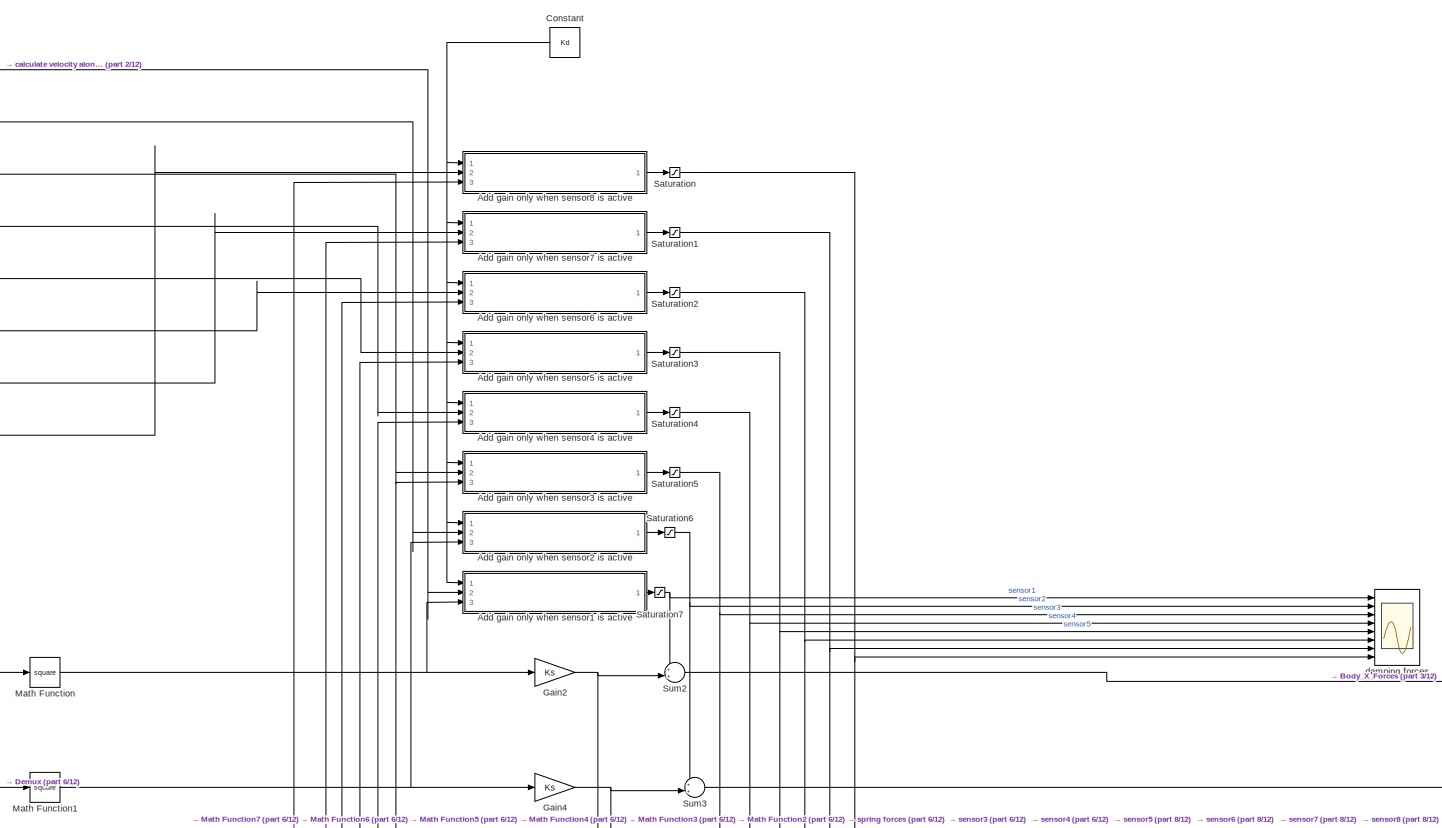
[diagram: Sensor Implementation - part 1/12, top center region]
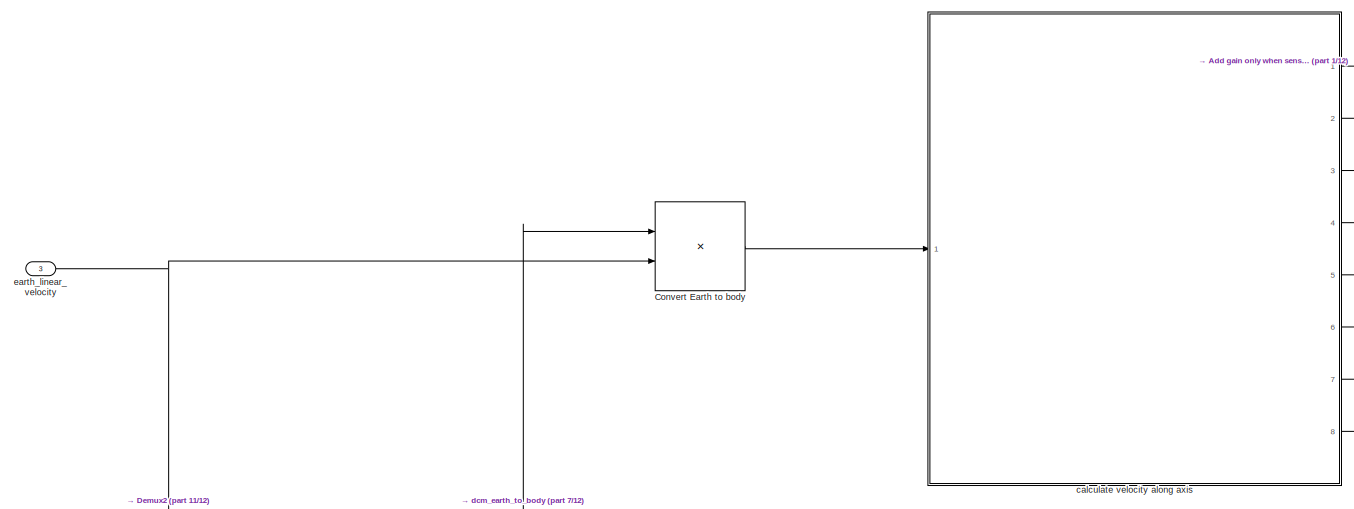
[diagram: Sensor Implementation - part 2/12, top left region]
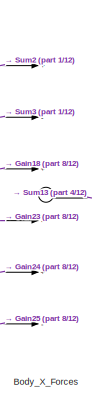
[diagram: Sensor Implementation - part 3/12, top center region]
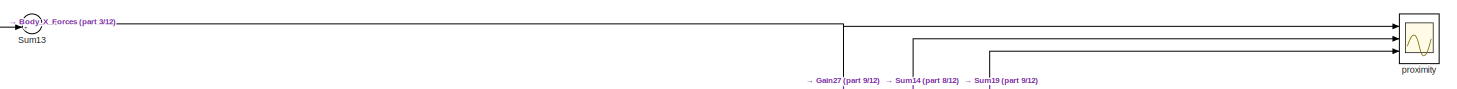
[diagram: Sensor Implementation - part 4/12, top right region]
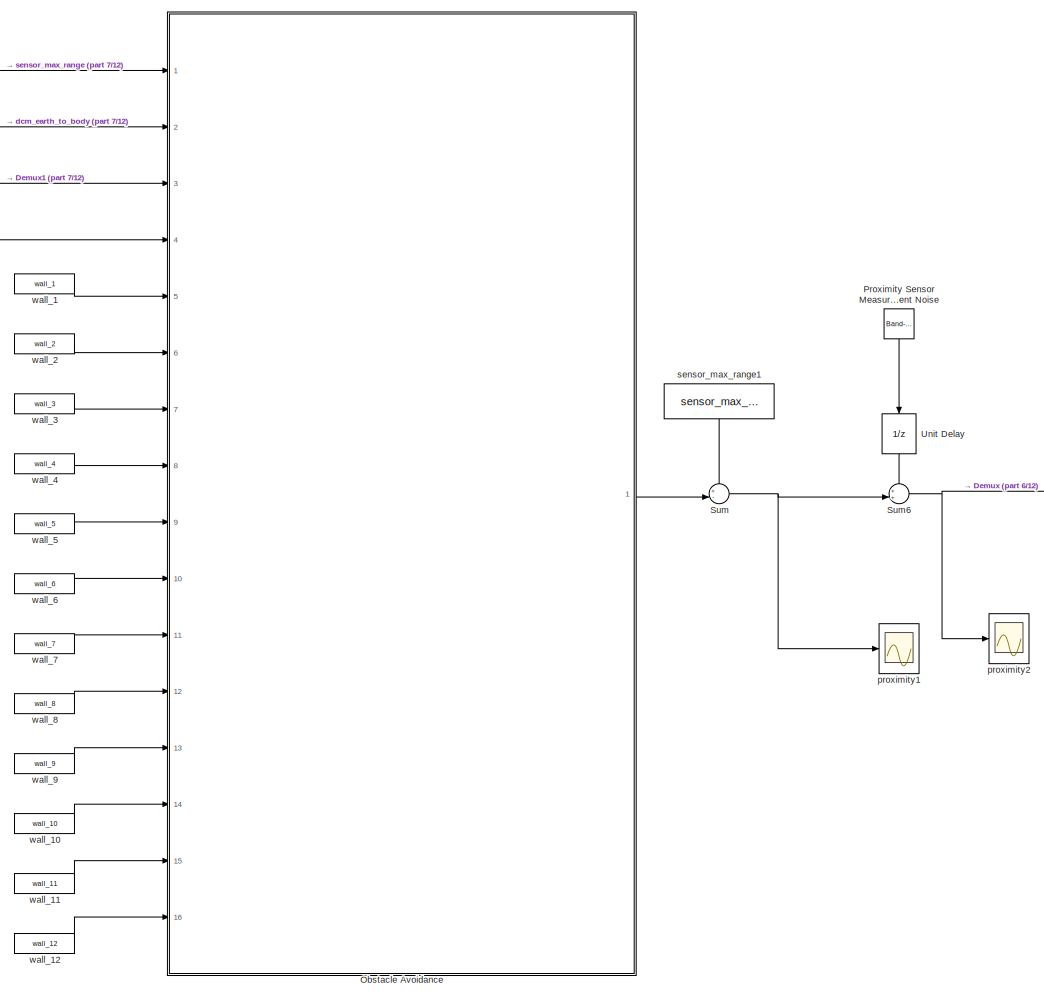
[diagram: Sensor Implementation - part 5/12, middle left region]
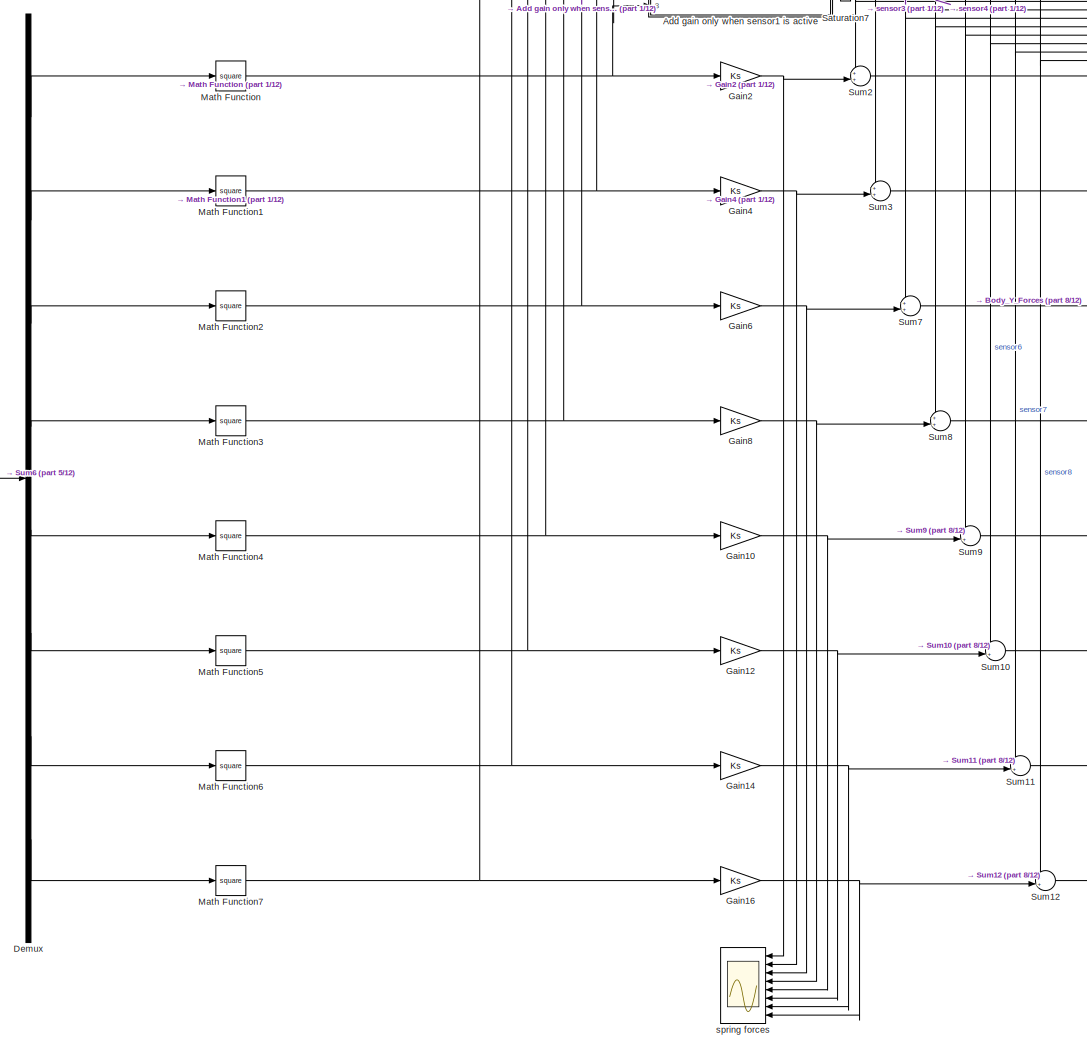
[diagram: Sensor Implementation - part 6/12, central region]
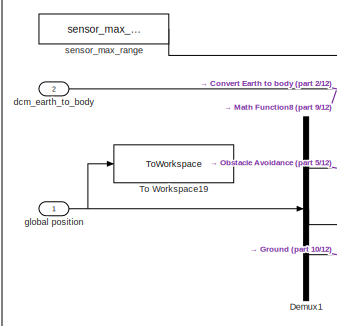
[diagram: Sensor Implementation - part 7/12, top left region]
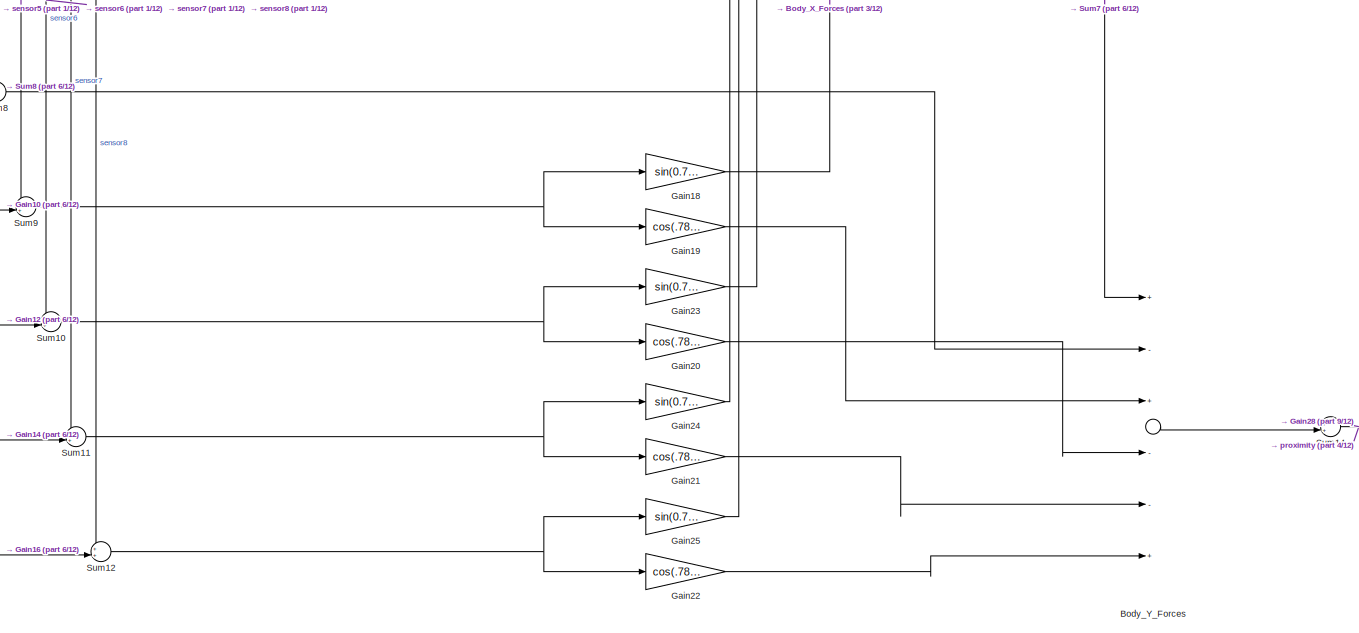
[diagram: Sensor Implementation - part 8/12, central region]
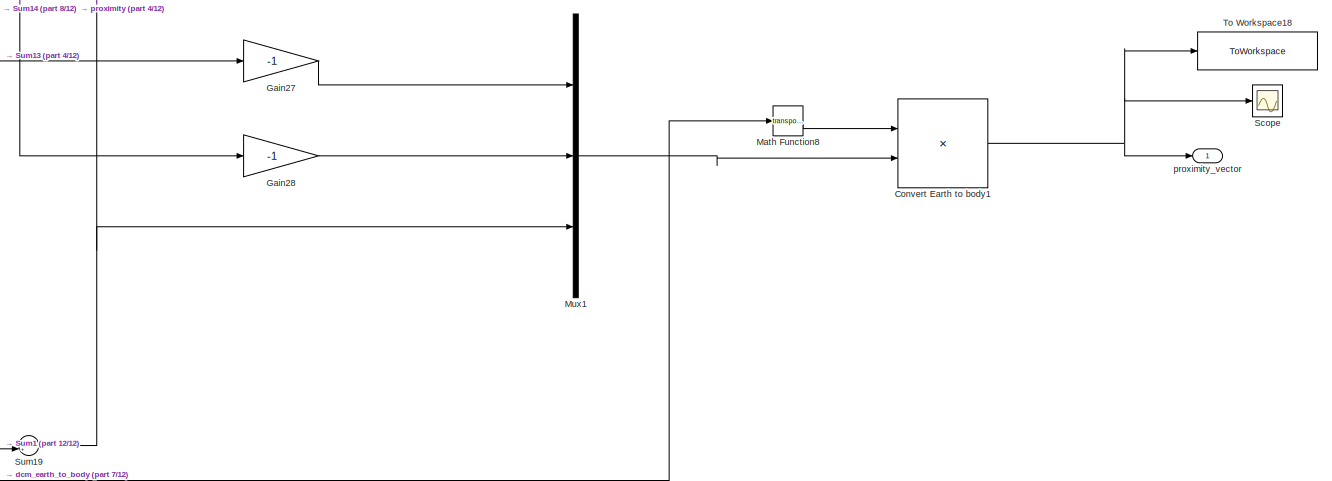
[diagram: Sensor Implementation - part 9/12, middle right region]
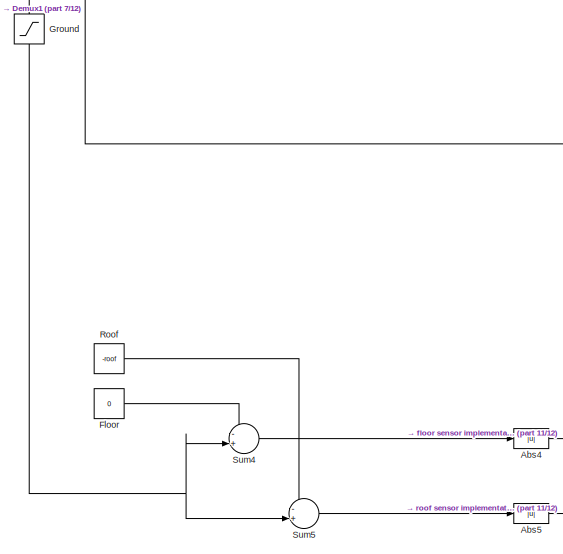
[diagram: Sensor Implementation - part 10/12, bottom left region]
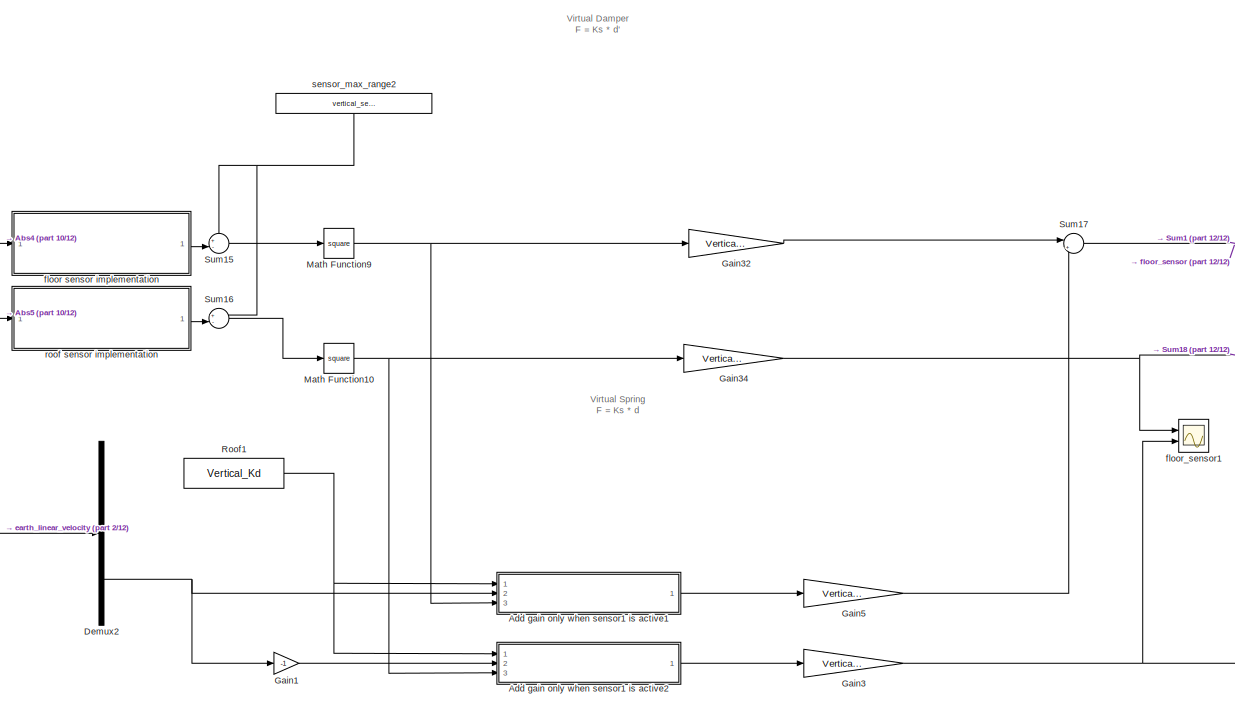
[diagram: Sensor Implementation - part 11/12, bottom left region]
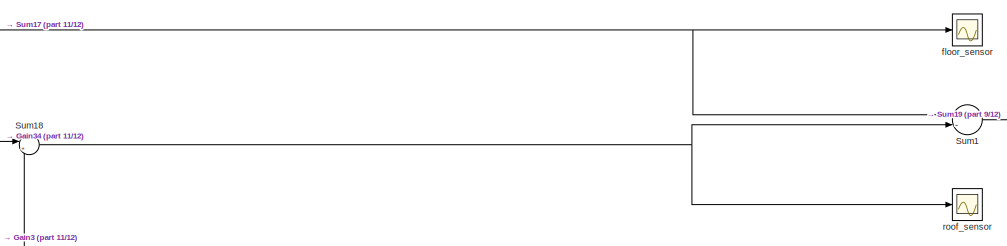
[diagram: Sensor Implementation - part 12/12, bottom center region]
BLOCK [SubSystem] Sensor Implementation
  Commented = on
  Ports = [3, 1]
  RequestExecContextInheritance = off
  SystemSampleTime = Proximity_Ts
  Variant = off
BLOCK [Abs] Sensor Implementation/Abs4
  SaturateOnIntegerOverflow = off
BLOCK [Abs] Sensor Implementation/Abs5
  SaturateOnIntegerOverflow = off
BLOCK [SubSystem] Sensor Implementation/Add gain only when sensor1 is active
  ErrorFcn = Stateflow.Translate.translate
  PermitHierarchicalResolution = ExplicitOnly
  Ports = [3, 1]
  RequestExecContextInheritance = off
  SFBlockType = MATLAB Function
  TreatAsAtomicUnit = on
  Variant = off
BLOCK [Demux] Sensor Implementation/Add gain only when sensor1 is active/ Demux 
  Outputs = 1
  Ports = [1, 1]
BLOCK [S-Function] Sensor Implementation/Add gain only when sensor1 is active/ SFunction 
  EnableBusSupport = on
  FunctionName = sf_sfun
  PortCounts = [3 2]
  Ports = [3, 2]
  SFcnIsStateOwnerBlock = off
  SFunctionDeploymentMode = off
  Tag = Stateflow S-Function Auto_mode 12
BLOCK [Terminator] Sensor Implementation/Add gain only when sensor1 is active/ Terminator 
BLOCK [Outport] Sensor Implementation/Add gain only when sensor1 is active/damping_force
  IconDisplay = Port number
BLOCK [Inport] Sensor Implementation/Add gain only when sensor1 is active/kd
  IconDisplay = Port number
BLOCK [Inport] Sensor Implementation/Add gain only when sensor1 is active/sensor_active
  IconDisplay = Port number
  Port = 3
BLOCK [Inport] Sensor Implementation/Add gain only when sensor1 is active/velocity_along_axis
  IconDisplay = Port number
  Port = 2
BLOCK [SubSystem] Sensor Implementation/Add gain only when sensor1 is active1
  ErrorFcn = Stateflow.Translate.translate
  PermitHierarchicalResolution = ExplicitOnly
  Ports = [3, 1]
  RequestExecContextInheritance = off
  SFBlockType = MATLAB Function
  TreatAsAtomicUnit = on
  Variant = off
BLOCK [Demux] Sensor Implementation/Add gain only when sensor1 is active1/ Demux 
  Outputs = 1
  Ports = [1, 1]
BLOCK [S-Function] Sensor Implementation/Add gain only when sensor1 is active1/ SFunction 
  EnableBusSupport = on
  FunctionName = sf_sfun
  PortCounts = [3 2]
  Ports = [3, 2]
  SFcnIsStateOwnerBlock = off
  SFunctionDeploymentMode = off
  Tag = Stateflow S-Function Auto_mode 1
BLOCK [Terminator] Sensor Implementation/Add gain only when sensor1 is active1/ Terminator 
BLOCK [Outport] Sensor Implementation/Add gain only when sensor1 is active1/damping_force
  IconDisplay = Port number
BLOCK [Inport] Sensor Implementation/Add gain only when sensor1 is active1/kd
  IconDisplay = Port number
BLOCK [Inport] Sensor Implementation/Add gain only when sensor1 is active1/sensor_active
  IconDisplay = Port number
  Port = 3
BLOCK [Inport] Sensor Implementation/Add gain only when sensor1 is active1/velocity_along_axis
  IconDisplay = Port number
  Port = 2
BLOCK [SubSystem] Sensor Implementation/Add gain only when sensor1 is active2
  ErrorFcn = Stateflow.Translate.translate
  PermitHierarchicalResolution = ExplicitOnly
  Ports = [3, 1]
  RequestExecContextInheritance = off
  SFBlockType = MATLAB Function
  TreatAsAtomicUnit = on
  Variant = off
BLOCK [Demux] Sensor Implementation/Add gain only when sensor1 is active2/ Demux 
  Outputs = 1
  Ports = [1, 1]
BLOCK [S-Function] Sensor Implementation/Add gain only when sensor1 is active2/ SFunction 
  EnableBusSupport = on
  FunctionName = sf_sfun
  PortCounts = [3 2]
  Ports = [3, 2]
  SFcnIsStateOwnerBlock = off
  SFunctionDeploymentMode = off
  Tag = Stateflow S-Function Auto_mode 20
BLOCK [Terminator] Sensor Implementation/Add gain only when sensor1 is active2/ Terminator 
BLOCK [Outport] Sensor Implementation/Add gain only when sensor1 is active2/damping_force
  IconDisplay = Port number
BLOCK [Inport] Sensor Implementation/Add gain only when sensor1 is active2/kd
  IconDisplay = Port number
BLOCK [Inport] Sensor Implementation/Add gain only when sensor1 is active2/sensor_active
  IconDisplay = Port number
  Port = 3
BLOCK [Inport] Sensor Implementation/Add gain only when sensor1 is active2/velocity_along_axis
  IconDisplay = Port number
  Port = 2
BLOCK [SubSystem] Sensor Implementation/Add gain only when sensor2 is active
  ErrorFcn = Stateflow.Translate.translate
  PermitHierarchicalResolution = ExplicitOnly
  Ports = [3, 1]
  RequestExecContextInheritance = off
  SFBlockType = MATLAB Function
  TreatAsAtomicUnit = on
  Variant = off
BLOCK [Demux] Sensor Implementation/Add gain only when sensor2 is active/ Demux 
  Outputs = 1
  Ports = [1, 1]
BLOCK [S-Function] Sensor Implementation/Add gain only when sensor2 is active/ SFunction 
  EnableBusSupport = on
  FunctionName = sf_sfun
  PortCounts = [3 2]
  Ports = [3, 2]
  SFcnIsStateOwnerBlock = off
  SFunctionDeploymentMode = off
  Tag = Stateflow S-Function Auto_mode 13
BLOCK [Terminator] Sensor Implementation/Add gain only when sensor2 is active/ Terminator 
BLOCK [Outport] Sensor Implementation/Add gain only when sensor2 is active/damping_force
  IconDisplay = Port number
BLOCK [Inport] Sensor Implementation/Add gain only when sensor2 is active/kd
  IconDisplay = Port number
BLOCK [Inport] Sensor Implementation/Add gain only when sensor2 is active/sensor_active
  IconDisplay = Port number
  Port = 3
BLOCK [Inport] Sensor Implementation/Add gain only when sensor2 is active/velocity_along_axis
  IconDisplay = Port number
  Port = 2
BLOCK [SubSystem] Sensor Implementation/Add gain only when sensor3 is active
  ErrorFcn = Stateflow.Translate.translate
  PermitHierarchicalResolution = ExplicitOnly
  Ports = [3, 1]
  RequestExecContextInheritance = off
  SFBlockType = MATLAB Function
  TreatAsAtomicUnit = on
  Variant = off
BLOCK [Demux] Sensor Implementation/Add gain only when sensor3 is active/ Demux 
  Outputs = 1
  Ports = [1, 1]
BLOCK [S-Function] Sensor Implementation/Add gain only when sensor3 is active/ SFunction 
  EnableBusSupport = on
  FunctionName = sf_sfun
  PortCounts = [3 2]
  Ports = [3, 2]
  SFcnIsStateOwnerBlock = off
  SFunctionDeploymentMode = off
  Tag = Stateflow S-Function Auto_mode 14
BLOCK [Terminator] Sensor Implementation/Add gain only when sensor3 is active/ Terminator 
BLOCK [Outport] Sensor Implementation/Add gain only when sensor3 is active/damping_force
  IconDisplay = Port number
BLOCK [Inport] Sensor Implementation/Add gain only when sensor3 is active/kd
  IconDisplay = Port number
BLOCK [Inport] Sensor Implementation/Add gain only when sensor3 is active/sensor_active
  IconDisplay = Port number
  Port = 3
BLOCK [Inport] Sensor Implementation/Add gain only when sensor3 is active/velocity_along_axis
  IconDisplay = Port number
  Port = 2
BLOCK [SubSystem] Sensor Implementation/Add gain only when sensor4 is active
  ErrorFcn = Stateflow.Translate.translate
  PermitHierarchicalResolution = ExplicitOnly
  Ports = [3, 1]
  RequestExecContextInheritance = off
  SFBlockType = MATLAB Function
  TreatAsAtomicUnit = on
  Variant = off
BLOCK [Demux] Sensor Implementation/Add gain only when sensor4 is active/ Demux 
  Outputs = 1
  Ports = [1, 1]
BLOCK [S-Function] Sensor Implementation/Add gain only when sensor4 is active/ SFunction 
  EnableBusSupport = on
  FunctionName = sf_sfun
  PortCounts = [3 2]
  Ports = [3, 2]
  SFcnIsStateOwnerBlock = off
  SFunctionDeploymentMode = off
  Tag = Stateflow S-Function Auto_mode 15
BLOCK [Terminator] Sensor Implementation/Add gain only when sensor4 is active/ Terminator 
BLOCK [Outport] Sensor Implementation/Add gain only when sensor4 is active/damping_force
  IconDisplay = Port number
BLOCK [Inport] Sensor Implementation/Add gain only when sensor4 is active/kd
  IconDisplay = Port number
BLOCK [Inport] Sensor Implementation/Add gain only when sensor4 is active/sensor_active
  IconDisplay = Port number
  Port = 3
BLOCK [Inport] Sensor Implementation/Add gain only when sensor4 is active/velocity_along_axis
  IconDisplay = Port number
  Port = 2
BLOCK [SubSystem] Sensor Implementation/Add gain only when sensor5 is active
  ErrorFcn = Stateflow.Translate.translate
  PermitHierarchicalResolution = ExplicitOnly
  Ports = [3, 1]
  RequestExecContextInheritance = off
  SFBlockType = MATLAB Function
  TreatAsAtomicUnit = on
  Variant = off
BLOCK [Demux] Sensor Implementation/Add gain only when sensor5 is active/ Demux 
  Outputs = 1
  Ports = [1, 1]
BLOCK [S-Function] Sensor Implementation/Add gain only when sensor5 is active/ SFunction 
  EnableBusSupport = on
  FunctionName = sf_sfun
  PortCounts = [3 2]
  Ports = [3, 2]
  SFcnIsStateOwnerBlock = off
  SFunctionDeploymentMode = off
  Tag = Stateflow S-Function Auto_mode 16
BLOCK [Terminator] Sensor Implementation/Add gain only when sensor5 is active/ Terminator 
BLOCK [Outport] Sensor Implementation/Add gain only when sensor5 is active/damping_force
  IconDisplay = Port number
BLOCK [Inport] Sensor Implementation/Add gain only when sensor5 is active/kd
  IconDisplay = Port number
BLOCK [Inport] Sensor Implementation/Add gain only when sensor5 is active/sensor_active
  IconDisplay = Port number
  Port = 3
BLOCK [Inport] Sensor Implementation/Add gain only when sensor5 is active/velocity_along_axis
  IconDisplay = Port number
  Port = 2
BLOCK [SubSystem] Sensor Implementation/Add gain only when sensor6 is active
  ErrorFcn = Stateflow.Translate.translate
  PermitHierarchicalResolution = ExplicitOnly
  Ports = [3, 1]
  RequestExecContextInheritance = off
  SFBlockType = MATLAB Function
  TreatAsAtomicUnit = on
  Variant = off
BLOCK [Demux] Sensor Implementation/Add gain only when sensor6 is active/ Demux 
  Outputs = 1
  Ports = [1, 1]
BLOCK [S-Function] Sensor Implementation/Add gain only when sensor6 is active/ SFunction 
  EnableBusSupport = on
  FunctionName = sf_sfun
  PortCounts = [3 2]
  Ports = [3, 2]
  SFcnIsStateOwnerBlock = off
  SFunctionDeploymentMode = off
  Tag = Stateflow S-Function Auto_mode 18
BLOCK [Terminator] Sensor Implementation/Add gain only when sensor6 is active/ Terminator 
BLOCK [Outport] Sensor Implementation/Add gain only when sensor6 is active/damping_force
  IconDisplay = Port number
BLOCK [Inport] Sensor Implementation/Add gain only when sensor6 is active/kd
  IconDisplay = Port number
BLOCK [Inport] Sensor Implementation/Add gain only when sensor6 is active/sensor_active
  IconDisplay = Port number
  Port = 3
BLOCK [Inport] Sensor Implementation/Add gain only when sensor6 is active/velocity_along_axis
  IconDisplay = Port number
  Port = 2
BLOCK [SubSystem] Sensor Implementation/Add gain only when sensor7 is active
  ErrorFcn = Stateflow.Translate.translate
  PermitHierarchicalResolution = ExplicitOnly
  Ports = [3, 1]
  RequestExecContextInheritance = off
  SFBlockType = MATLAB Function
  TreatAsAtomicUnit = on
  Variant = off
BLOCK [Demux] Sensor Implementation/Add gain only when sensor7 is active/ Demux 
  Outputs = 1
  Ports = [1, 1]
BLOCK [S-Function] Sensor Implementation/Add gain only when sensor7 is active/ SFunction 
  EnableBusSupport = on
  FunctionName = sf_sfun
  PortCounts = [3 2]
  Ports = [3, 2]
  SFcnIsStateOwnerBlock = off
  SFunctionDeploymentMode = off
  Tag = Stateflow S-Function Auto_mode 17
BLOCK [Terminator] Sensor Implementation/Add gain only when sensor7 is active/ Terminator 
BLOCK [Outport] Sensor Implementation/Add gain only when sensor7 is active/damping_force
  IconDisplay = Port number
BLOCK [Inport] Sensor Implementation/Add gain only when sensor7 is active/kd
  IconDisplay = Port number
BLOCK [Inport] Sensor Implementation/Add gain only when sensor7 is active/sensor_active
  IconDisplay = Port number
  Port = 3
BLOCK [Inport] Sensor Implementation/Add gain only when sensor7 is active/velocity_along_axis
  IconDisplay = Port number
  Port = 2
BLOCK [SubSystem] Sensor Implementation/Add gain only when sensor8 is active
  ErrorFcn = Stateflow.Translate.translate
  PermitHierarchicalResolution = ExplicitOnly
  Ports = [3, 1]
  RequestExecContextInheritance = off
  SFBlockType = MATLAB Function
  TreatAsAtomicUnit = on
  Variant = off
BLOCK [Demux] Sensor Implementation/Add gain only when sensor8 is active/ Demux 
  Outputs = 1
  Ports = [1, 1]
BLOCK [S-Function] Sensor Implementation/Add gain only when sensor8 is active/ SFunction 
  EnableBusSupport = on
  FunctionName = sf_sfun
  PortCounts = [3 2]
  Ports = [3, 2]
  SFcnIsStateOwnerBlock = off
  SFunctionDeploymentMode = off
  Tag = Stateflow S-Function Auto_mode 19
BLOCK [Terminator] Sensor Implementation/Add gain only when sensor8 is active/ Terminator 
BLOCK [Outport] Sensor Implementation/Add gain only when sensor8 is active/damping_force
  IconDisplay = Port number
BLOCK [Inport] Sensor Implementation/Add gain only when sensor8 is active/kd
  IconDisplay = Port number
BLOCK [Inport] Sensor Implementation/Add gain only when sensor8 is active/sensor_active
  IconDisplay = Port number
  Port = 3
BLOCK [Inport] Sensor Implementation/Add gain only when sensor8 is active/velocity_along_axis
  IconDisplay = Port number
  Port = 2
BLOCK [Sum] Sensor Implementation/Body_X_Forces
  InputSameDT = off
  Inputs = +-+-+-
  OutDataTypeStr = Inherit: Inherit via internal rule
  Ports = [6, 1]
  SaturateOnIntegerOverflow = off
BLOCK [Sum] Sensor Implementation/Body_Y_Forces
  InputSameDT = off
  Inputs = +-+--+
  OutDataTypeStr = Inherit: Inherit via internal rule
  Ports = [6, 1]
  SaturateOnIntegerOverflow = off
BLOCK [Constant] Sensor Implementation/Constant
  Value = Kd
BLOCK [Product] Sensor Implementation/Convert Earth to body
  InputSameDT = off
  Multiplication = Matrix(*)
  OutDataTypeStr = Inherit: Inherit via internal rule
  Ports = [2, 1]
  RndMeth = Floor
  SaturateOnIntegerOverflow = off
BLOCK [Product] Sensor Implementation/Convert Earth to body1
  InputSameDT = off
  Multiplication = Matrix(*)
  OutDataTypeStr = Inherit: Inherit via internal rule
  Ports = [2, 1]
  RndMeth = Floor
  SaturateOnIntegerOverflow = off
BLOCK [Demux] Sensor Implementation/Demux
  DisplayOption = bar
  Outputs = 8
  Ports = [1, 8]
BLOCK [Demux] Sensor Implementation/Demux1
  DisplayOption = bar
  Outputs = 3
  Ports = [1, 3]
BLOCK [Demux] Sensor Implementation/Demux2
  DisplayOption = bar
  Outputs = 3
  Ports = [1, 3]
BLOCK [Constant] Sensor Implementation/Floor
  Value = 0
BLOCK [Gain] Sensor Implementation/Gain1
  Gain = -1
  OutDataTypeStr = Inherit: Inherit via internal rule
  ParamDataTypeStr = Inherit: Inherit via internal rule
  SaturateOnIntegerOverflow = off
BLOCK [Gain] Sensor Implementation/Gain10
  Gain = Ks
  OutDataTypeStr = Inherit: Inherit via internal rule
  ParamDataTypeStr = Inherit: Inherit via internal rule
  SaturateOnIntegerOverflow = off
BLOCK [Gain] Sensor Implementation/Gain12
  Gain = Ks
  OutDataTypeStr = Inherit: Inherit via internal rule
  ParamDataTypeStr = Inherit: Inherit via internal rule
  SaturateOnIntegerOverflow = off
BLOCK [Gain] Sensor Implementation/Gain14
  Gain = Ks
  OutDataTypeStr = Inherit: Inherit via internal rule
  ParamDataTypeStr = Inherit: Inherit via internal rule
  SaturateOnIntegerOverflow = off
BLOCK [Gain] Sensor Implementation/Gain16
  Gain = Ks
  OutDataTypeStr = Inherit: Inherit via internal rule
  ParamDataTypeStr = Inherit: Inherit via internal rule
  SaturateOnIntegerOverflow = off
BLOCK [Gain] Sensor Implementation/Gain18
  Gain = sin(0.7853)
  OutDataTypeStr = Inherit: Inherit via internal rule
  ParamDataTypeStr = Inherit: Inherit via internal rule
  SaturateOnIntegerOverflow = off
BLOCK [Gain] Sensor Implementation/Gain19
  Gain = cos(.7853)
  OutDataTypeStr = Inherit: Inherit via internal rule
  ParamDataTypeStr = Inherit: Inherit via internal rule
  SaturateOnIntegerOverflow = off
BLOCK [Gain] Sensor Implementation/Gain2
  Gain = Ks
  OutDataTypeStr = Inherit: Inherit via internal rule
  ParamDataTypeStr = Inherit: Inherit via internal rule
  SaturateOnIntegerOverflow = off
BLOCK [Gain] Sensor Implementation/Gain20
  Gain = cos(.7853)
  OutDataTypeStr = Inherit: Inherit via internal rule
  ParamDataTypeStr = Inherit: Inherit via internal rule
  SaturateOnIntegerOverflow = off
BLOCK [Gain] Sensor Implementation/Gain21
  Gain = cos(.7853)
  OutDataTypeStr = Inherit: Inherit via internal rule
  ParamDataTypeStr = Inherit: Inherit via internal rule
  SaturateOnIntegerOverflow = off
BLOCK [Gain] Sensor Implementation/Gain22
  Gain = cos(.7853)
  OutDataTypeStr = Inherit: Inherit via internal rule
  ParamDataTypeStr = Inherit: Inherit via internal rule
  SaturateOnIntegerOverflow = off
BLOCK [Gain] Sensor Implementation/Gain23
  Gain = sin(0.7853)
  OutDataTypeStr = Inherit: Inherit via internal rule
  ParamDataTypeStr = Inherit: Inherit via internal rule
  SaturateOnIntegerOverflow = off
BLOCK [Gain] Sensor Implementation/Gain24
  Gain = sin(0.7853)
  OutDataTypeStr = Inherit: Inherit via internal rule
  ParamDataTypeStr = Inherit: Inherit via internal rule
  SaturateOnIntegerOverflow = off
BLOCK [Gain] Sensor Implementation/Gain25
  Gain = sin(0.7853)
  OutDataTypeStr = Inherit: Inherit via internal rule
  ParamDataTypeStr = Inherit: Inherit via internal rule
  SaturateOnIntegerOverflow = off
BLOCK [Gain] Sensor Implementation/Gain27
  Gain = -1
  OutDataTypeStr = Inherit: Inherit via internal rule
  ParamDataTypeStr = Inherit: Inherit via internal rule
  SaturateOnIntegerOverflow = off
BLOCK [Gain] Sensor Implementation/Gain28
  Gain = -1
  OutDataTypeStr = Inherit: Inherit via internal rule
  ParamDataTypeStr = Inherit: Inherit via internal rule
  SaturateOnIntegerOverflow = off
BLOCK [Gain] Sensor Implementation/Gain3
  Gain = Vertical_Kd
  OutDataTypeStr = Inherit: Inherit via internal rule
  ParamDataTypeStr = Inherit: Inherit via internal rule
  SaturateOnIntegerOverflow = off
BLOCK [Gain] Sensor Implementation/Gain32
  Gain = Vertical_Ks
  OutDataTypeStr = Inherit: Inherit via internal rule
  ParamDataTypeStr = Inherit: Inherit via internal rule
  SaturateOnIntegerOverflow = off
BLOCK [Gain] Sensor Implementation/Gain34
  Gain = Vertical_Ks
  OutDataTypeStr = Inherit: Inherit via internal rule
  ParamDataTypeStr = Inherit: Inherit via internal rule
  SaturateOnIntegerOverflow = off
BLOCK [Gain] Sensor Implementation/Gain4
  Gain = Ks
  OutDataTypeStr = Inherit: Inherit via internal rule
  ParamDataTypeStr = Inherit: Inherit via internal rule
  SaturateOnIntegerOverflow = off
BLOCK [Gain] Sensor Implementation/Gain5
  Gain = Vertical_Kd
  OutDataTypeStr = Inherit: Inherit via internal rule
  ParamDataTypeStr = Inherit: Inherit via internal rule
  SaturateOnIntegerOverflow = off
BLOCK [Gain] Sensor Implementation/Gain6
  Gain = Ks
  OutDataTypeStr = Inherit: Inherit via internal rule
  ParamDataTypeStr = Inherit: Inherit via internal rule
  SaturateOnIntegerOverflow = off
BLOCK [Gain] Sensor Implementation/Gain8
  Gain = Ks
  OutDataTypeStr = Inherit: Inherit via internal rule
  ParamDataTypeStr = Inherit: Inherit via internal rule
  SaturateOnIntegerOverflow = off
BLOCK [Saturate] Sensor Implementation/Ground
  InputPortMap = u0
  LowerLimit = -100
  Ports = [1, 1]
  UpperLimit = 0
BLOCK [Math] Sensor Implementation/Math Function
  Operator = square
  Ports = [1, 1]
BLOCK [Math] Sensor Implementation/Math Function1
  Operator = square
  Ports = [1, 1]
BLOCK [Math] Sensor Implementation/Math Function10
  Operator = square
  Ports = [1, 1]
BLOCK [Math] Sensor Implementation/Math Function2
  Operator = square
  Ports = [1, 1]
BLOCK [Math] Sensor Implementation/Math Function3
  Operator = square
  Ports = [1, 1]
BLOCK [Math] Sensor Implementation/Math Function4
  Operator = square
  Ports = [1, 1]
BLOCK [Math] Sensor Implementation/Math Function5
  Operator = square
  Ports = [1, 1]
BLOCK [Math] Sensor Implementation/Math Function6
  Operator = square
  Ports = [1, 1]
BLOCK [Math] Sensor Implementation/Math Function7
  Operator = square
  Ports = [1, 1]
BLOCK [Math] Sensor Implementation/Math Function8
  Operator = transpose
  Ports = [1, 1]
BLOCK [Math] Sensor Implementation/Math Function9
  Operator = square
  Ports = [1, 1]
BLOCK [Mux] Sensor Implementation/Mux1
  DisplayOption = bar
  Inputs = 3
  Ports = [3, 1]
BLOCK [SubSystem] Sensor Implementation/Obstacle Avoidance
  ErrorFcn = Stateflow.Translate.translate
  PermitHierarchicalResolution = ExplicitOnly
  Ports = [16, 1]
  RequestExecContextInheritance = off
  SFBlockType = MATLAB Function
  TreatAsAtomicUnit = on
  Variant = off
BLOCK [Demux] Sensor Implementation/Obstacle Avoidance/ Demux 
  Outputs = 1
  Ports = [1, 1]
BLOCK [S-Function] Sensor Implementation/Obstacle Avoidance/ SFunction 
  EnableBusSupport = on
  FunctionName = sf_sfun
  PortCounts = [16 2]
  Ports = [16, 2]
  SFcnIsStateOwnerBlock = off
  SFunctionDeploymentMode = off
  Tag = Stateflow S-Function Auto_mode 6
BLOCK [Terminator] Sensor Implementation/Obstacle Avoidance/ Terminator 
BLOCK [Inport] Sensor Implementation/Obstacle Avoidance/current_pos_e
  IconDisplay = Port number
  Port = 4
BLOCK [Inport] Sensor Implementation/Obstacle Avoidance/current_pos_n
  IconDisplay = Port number
  Port = 3
BLOCK [Inport] Sensor Implementation/Obstacle Avoidance/dcm_earth_to_body
  IconDisplay = Port number
  Port = 2
BLOCK [Outport] Sensor Implementation/Obstacle Avoidance/min_intersection_distances
  IconDisplay = Port number
BLOCK [Inport] Sensor Implementation/Obstacle Avoidance/sensor_max_range
  IconDisplay = Port number
BLOCK [Inport] Sensor Implementation/Obstacle Avoidance/wall_1
  IconDisplay = Port number
  Port = 5
BLOCK [Inport] Sensor Implementation/Obstacle Avoidance/wall_10
  IconDisplay = Port number
  Port = 14
BLOCK [Inport] Sensor Implementation/Obstacle Avoidance/wall_11
  IconDisplay = Port number
  Port = 15
BLOCK [Inport] Sensor Implementation/Obstacle Avoidance/wall_12
  IconDisplay = Port number
  Port = 16
BLOCK [Inport] Sensor Implementation/Obstacle Avoidance/wall_2
  IconDisplay = Port number
  Port = 6
BLOCK [Inport] Sensor Implementation/Obstacle Avoidance/wall_3
  IconDisplay = Port number
  Port = 7
BLOCK [Inport] Sensor Implementation/Obstacle Avoidance/wall_4
  IconDisplay = Port number
  Port = 8
BLOCK [Inport] Sensor Implementation/Obstacle Avoidance/wall_5
  IconDisplay = Port number
  Port = 9
BLOCK [Inport] Sensor Implementation/Obstacle Avoidance/wall_6
  IconDisplay = Port number
  Port = 10
BLOCK [Inport] Sensor Implementation/Obstacle Avoidance/wall_7
  IconDisplay = Port number
  Port = 11
BLOCK [Inport] Sensor Implementation/Obstacle Avoidance/wall_8
  IconDisplay = Port number
  Port = 12
BLOCK [Inport] Sensor Implementation/Obstacle Avoidance/wall_9
  IconDisplay = Port number
  Port = 13
BLOCK [Reference] Sensor Implementation/Proximity Sensor Measurement Noise  REF=simulink/Sources/Band-Limited
White Noise
  Ports = [0, 1]
  SourceBlock = simulink/Sources/Band-Limited\nWhite Noise
  SourceProductBaseCode = SL
  SourceProductName = Simulink
  SourceType = Band-Limited White Noise.
BLOCK [Constant] Sensor Implementation/Roof
  Value = -roof
BLOCK [Constant] Sensor Implementation/Roof1
  Value = Vertical_Kd
BLOCK [Saturate] Sensor Implementation/Saturation
  InputPortMap = u0
  LowerLimit = -1000
  Ports = [1, 1]
  UpperLimit = 1000
BLOCK [Saturate] Sensor Implementation/Saturation1
  InputPortMap = u0
  LowerLimit = -1000
  Ports = [1, 1]
  UpperLimit = 1000
BLOCK [Saturate] Sensor Implementation/Saturation2
  InputPortMap = u0
  LowerLimit = -1000
  Ports = [1, 1]
  UpperLimit = 1000
BLOCK [Saturate] Sensor Implementation/Saturation3
  InputPortMap = u0
  LowerLimit = -1000
  Ports = [1, 1]
  UpperLimit = 1000
BLOCK [Saturate] Sensor Implementation/Saturation4
  InputPortMap = u0
  LowerLimit = -1000
  Ports = [1, 1]
  UpperLimit = 1000
BLOCK [Saturate] Sensor Implementation/Saturation5
  InputPortMap = u0
  LowerLimit = -1000
  Ports = [1, 1]
  UpperLimit = 1000
BLOCK [Saturate] Sensor Implementation/Saturation6
  InputPortMap = u0
  LowerLimit = -100
  Ports = [1, 1]
  UpperLimit = 1000
BLOCK [Saturate] Sensor Implementation/Saturation7
  InputPortMap = u0
  LowerLimit = -1000
  Ports = [1, 1]
  UpperLimit = 1000
BLOCK [Scope] Sensor Implementation/Scope
  NumInputPorts = 1
  Ports = [1]
  ScopeSpecificationString = Simulink.scopes.TimeScopeBlockCfg('CurrentConfiguration', extmgr.ConfigurationSet(extmgr.Configuration('Core','General UI',true),extmgr.Configuration('Core','Source UI',true),extmgr.Configuration('Sources','WiredSimulink',true,'DataLoggingVariableName','ScopeData1'),extmgr.Configuration('Visuals','Time Domain',true,'SerializedDisplays',{struct('MinYLimReal','-2.13078','MaxYLimReal','1.14922','YLab...<+1798ch>
BLOCK [Sum] Sensor Implementation/Sum
  IconShape = round
  InputSameDT = off
  Inputs = +-|
  OutDataTypeStr = Inherit: Inherit via internal rule
  Ports = [2, 1]
  SaturateOnIntegerOverflow = off
BLOCK [Sum] Sensor Implementation/Sum1
  IconShape = round
  InputSameDT = off
  Inputs = |-+|
  OutDataTypeStr = Inherit: Inherit via internal rule
  Ports = [2, 1]
  SaturateOnIntegerOverflow = off
BLOCK [Sum] Sensor Implementation/Sum10
  IconShape = round
  InputSameDT = off
  Inputs = ++|
  OutDataTypeStr = Inherit: Inherit via internal rule
  Ports = [2, 1]
  SaturateOnIntegerOverflow = off
BLOCK [Sum] Sensor Implementation/Sum11
  IconShape = round
  InputSameDT = off
  Inputs = ++|
  OutDataTypeStr = Inherit: Inherit via internal rule
  Ports = [2, 1]
  SaturateOnIntegerOverflow = off
BLOCK [Sum] Sensor Implementation/Sum12
  IconShape = round
  InputSameDT = off
  Inputs = ++|
  OutDataTypeStr = Inherit: Inherit via internal rule
  Ports = [2, 1]
  SaturateOnIntegerOverflow = off
BLOCK [Sum] Sensor Implementation/Sum13
  IconShape = round
  InputSameDT = off
  Inputs = ++|
  OutDataTypeStr = Inherit: Inherit via internal rule
  Ports = [2, 1]
  SaturateOnIntegerOverflow = off
BLOCK [Sum] Sensor Implementation/Sum14
  IconShape = round
  InputSameDT = off
  Inputs = ++|
  OutDataTypeStr = Inherit: Inherit via internal rule
  Ports = [2, 1]
  SaturateOnIntegerOverflow = off
BLOCK [Sum] Sensor Implementation/Sum15
  IconShape = round
  InputSameDT = off
  Inputs = +-|
  OutDataTypeStr = Inherit: Inherit via internal rule
  Ports = [2, 1]
  SaturateOnIntegerOverflow = off
BLOCK [Sum] Sensor Implementation/Sum16
  IconShape = round
  InputSameDT = off
  Inputs = +-|
  OutDataTypeStr = Inherit: Inherit via internal rule
  Ports = [2, 1]
  SaturateOnIntegerOverflow = off
BLOCK [Sum] Sensor Implementation/Sum17
  IconShape = round
  InputSameDT = off
  Inputs = |++
  OutDataTypeStr = Inherit: Inherit via internal rule
  Ports = [2, 1]
  SaturateOnIntegerOverflow = off
BLOCK [Sum] Sensor Implementation/Sum18
  IconShape = round
  InputSameDT = off
  Inputs = |++
  OutDataTypeStr = Inherit: Inherit via internal rule
  Ports = [2, 1]
  SaturateOnIntegerOverflow = off
BLOCK [Sum] Sensor Implementation/Sum19
  IconShape = round
  InputSameDT = off
  Inputs = ++|
  OutDataTypeStr = Inherit: Inherit via internal rule
  Ports = [2, 1]
  SaturateOnIntegerOverflow = off
BLOCK [Sum] Sensor Implementation/Sum2
  IconShape = round
  InputSameDT = off
  Inputs = ++|
  OutDataTypeStr = Inherit: Inherit via internal rule
  Ports = [2, 1]
  SaturateOnIntegerOverflow = off
BLOCK [Sum] Sensor Implementation/Sum3
  IconShape = round
  InputSameDT = off
  Inputs = ++|
  OutDataTypeStr = Inherit: Inherit via internal rule
  Ports = [2, 1]
  SaturateOnIntegerOverflow = off
BLOCK [Sum] Sensor Implementation/Sum4
  IconShape = round
  InputSameDT = off
  Inputs = -+|
  OutDataTypeStr = Inherit: Inherit via internal rule
  Ports = [2, 1]
  SaturateOnIntegerOverflow = off
BLOCK [Sum] Sensor Implementation/Sum5
  IconShape = round
  InputSameDT = off
  Inputs = -+|
  OutDataTypeStr = Inherit: Inherit via internal rule
  Ports = [2, 1]
  SaturateOnIntegerOverflow = off
BLOCK [Sum] Sensor Implementation/Sum6
  IconShape = round
  InputSameDT = off
  Inputs = ++|
  OutDataTypeStr = Inherit: Inherit via internal rule
  Ports = [2, 1]
  SaturateOnIntegerOverflow = off
BLOCK [Sum] Sensor Implementation/Sum7
  IconShape = round
  InputSameDT = off
  Inputs = ++|
  OutDataTypeStr = Inherit: Inherit via internal rule
  Ports = [2, 1]
  SaturateOnIntegerOverflow = off
BLOCK [Sum] Sensor Implementation/Sum8
  IconShape = round
  InputSameDT = off
  Inputs = ++|
  OutDataTypeStr = Inherit: Inherit via internal rule
  Ports = [2, 1]
  SaturateOnIntegerOverflow = off
BLOCK [Sum] Sensor Implementation/Sum9
  IconShape = round
  InputSameDT = off
  Inputs = ++|
  OutDataTypeStr = Inherit: Inherit via internal rule
  Ports = [2, 1]
  SaturateOnIntegerOverflow = off
BLOCK [ToWorkspace] Sensor Implementation/To Workspace18
  MaxDataPoints = inf
  Ports = [1]
  SampleTime = -1
  Save2DSignal = 2-D array (concatenate along first dimension)
  VariableName = proximity_vector
BLOCK [ToWorkspace] Sensor Implementation/To Workspace19
  MaxDataPoints = inf
  Ports = [1]
  SampleTime = -1
  Save2DSignal = 2-D array (concatenate along first dimension)
  VariableName = pv_position
BLOCK [UnitDelay] Sensor Implementation/Unit Delay
  InputProcessing = Elements as channels (sample based)
  SampleTime = -1
BLOCK [SubSystem] Sensor Implementation/calculate velocity along axis
  ErrorFcn = Stateflow.Translate.translate
  PermitHierarchicalResolution = ExplicitOnly
  Ports = [1, 8]
  RequestExecContextInheritance = off
  SFBlockType = MATLAB Function
  TreatAsAtomicUnit = on
  Variant = off
BLOCK [Demux] Sensor Implementation/calculate velocity along axis/ Demux 
  Outputs = 1
  Ports = [1, 1]
BLOCK [S-Function] Sensor Implementation/calculate velocity along axis/ SFunction 
  EnableBusSupport = on
  FunctionName = sf_sfun
  PortCounts = [1 9]
  Ports = [1, 9]
  SFcnIsStateOwnerBlock = off
  SFunctionDeploymentMode = off
  Tag = Stateflow S-Function Auto_mode 9
BLOCK [Terminator] Sensor Implementation/calculate velocity along axis/ Terminator 
BLOCK [Inport] Sensor Implementation/calculate velocity along axis/body_velocity_in
  IconDisplay = Port number
BLOCK [Outport] Sensor Implementation/calculate velocity along axis/velocity_along_sensor1_axis
  IconDisplay = Port number
BLOCK [Outport] Sensor Implementation/calculate velocity along axis/velocity_along_sensor2_axis
  IconDisplay = Port number
  Port = 2
BLOCK [Outport] Sensor Implementation/calculate velocity along axis/velocity_along_sensor3_axis
  IconDisplay = Port number
  Port = 3
BLOCK [Outport] Sensor Implementation/calculate velocity along axis/velocity_along_sensor4_axis
  IconDisplay = Port number
  Port = 4
BLOCK [Outport] Sensor Implementation/calculate velocity along axis/velocity_along_sensor5_axis
  IconDisplay = Port number
  Port = 5
BLOCK [Outport] Sensor Implementation/calculate velocity along axis/velocity_along_sensor6_axis
  IconDisplay = Port number
  Port = 6
BLOCK [Outport] Sensor Implementation/calculate velocity along axis/velocity_along_sensor7_axis
  IconDisplay = Port number
  Port = 7
BLOCK [Outport] Sensor Implementation/calculate velocity along axis/velocity_along_sensor8_axis
  IconDisplay = Port number
  Port = 8
BLOCK [Scope] Sensor Implementation/damping forces
  NumInputPorts = 8
  Ports = [8]
  ScopeSpecificationString = Simulink.scopes.TimeScopeBlockCfg('CurrentConfiguration', extmgr.ConfigurationSet(extmgr.Configuration('Core','General UI',true),extmgr.Configuration('Core','Source UI',true),extmgr.Configuration('Sources','WiredSimulink',true,'DataLoggingVariableName','ScopeData2'),extmgr.Configuration('Visuals','Time Domain',true,'SerializedDisplays',{struct('MinYLimReal','-0.75186','MaxYLimReal','2.55837','YLab...<+1840ch>
BLOCK [Inport] Sensor Implementation/dcm_earth_to_body
  IconDisplay = Port number
  Port = 2
BLOCK [Inport] Sensor Implementation/earth_linear_velocity
  IconDisplay = Port number
  Port = 3
BLOCK [SubSystem] Sensor Implementation/floor sensor implementation
  Ports = [1, 1]
  RequestExecContextInheritance = off
  Variant = off
BLOCK [Reference] Sensor Implementation/floor sensor implementation/Band-Limited White Noise  REF=simulink/Sources/Band-Limited
White Noise
  Ports = [0, 1]
  SourceBlock = simulink/Sources/Band-Limited\nWhite Noise
  SourceProductBaseCode = SL
  SourceProductName = Simulink
  SourceType = Band-Limited White Noise.
BLOCK [Saturate] Sensor Implementation/floor sensor implementation/Measurement Limits1
  InputPortMap = u0
  LowerLimit = vertical_sensor_min_range
  Ports = [1, 1]
  UpperLimit = vertical_sensor_max_range
BLOCK [Sum] Sensor Implementation/floor sensor implementation/Sum
  IconShape = round
  InputSameDT = off
  Inputs = |++
  OutDataTypeStr = Inherit: Inherit via internal rule
  Ports = [2, 1]
  SaturateOnIntegerOverflow = off
BLOCK [Inport] Sensor Implementation/floor sensor implementation/actual_distance
  IconDisplay = Port number
BLOCK [Outport] Sensor Implementation/floor sensor implementation/measured_distance
  IconDisplay = Port number
BLOCK [Scope] Sensor Implementation/floor sensor implementation/noise
  NumInputPorts = 1
  Ports = [1]
  ScopeSpecificationString = Simulink.scopes.TimeScopeBlockCfg('CurrentConfiguration', extmgr.ConfigurationSet(extmgr.Configuration('Core','General UI',true),extmgr.Configuration('Core','Source UI',true),extmgr.Configuration('Sources','WiredSimulink',true),extmgr.Configuration('Visuals','Time Domain',true,'SerializedDisplays',{struct('MinYLimReal','-1.4676','MaxYLimReal','1.54881','YLabelReal','','MinYLimMag','0.00000','MaxYL...<+1372ch>
BLOCK [Scope] Sensor Implementation/floor_sensor
  NumInputPorts = 1
  Ports = [1]
  ScopeSpecificationString = Simulink.scopes.TimeScopeBlockCfg('CurrentConfiguration', extmgr.ConfigurationSet(extmgr.Configuration('Core','General UI',true),extmgr.Configuration('Core','Source UI',true),extmgr.Configuration('Sources','WiredSimulink',true,'DataLoggingVariableName','ScopeData2'),extmgr.Configuration('Visuals','Time Domain',true,'SerializedDisplays',{struct('MinYLimReal','-0.22291','MaxYLimReal','2.02477','YLab...<+1393ch>
BLOCK [Scope] Sensor Implementation/floor_sensor1
  NumInputPorts = 2
  Ports = [2]
  ScopeSpecificationString = Simulink.scopes.TimeScopeBlockCfg('CurrentConfiguration', extmgr.ConfigurationSet(extmgr.Configuration('Core','General UI',true),extmgr.Configuration('Core','Source UI',true),extmgr.Configuration('Sources','WiredSimulink',true,'DataLoggingVariableName','ScopeData3'),extmgr.Configuration('Visuals','Time Domain',true,'SerializedDisplays',{struct('MinYLimReal','-0.21078','MaxYLimReal','1.89698','YLab...<+1427ch>
BLOCK [Inport] Sensor Implementation/global position
  IconDisplay = Port number
BLOCK [Scope] Sensor Implementation/proximity
  NumInputPorts = 3
  Ports = [3]
  ScopeSpecificationString = Simulink.scopes.TimeScopeBlockCfg('CurrentConfiguration', extmgr.ConfigurationSet(extmgr.Configuration('Core','General UI',true),extmgr.Configuration('Core','Source UI',true),extmgr.Configuration('Sources','WiredSimulink',true,'DataLoggingVariableName','ScopeData4'),extmgr.Configuration('Visuals','Time Domain',true,'SerializedDisplays',{struct('MinYLimReal','-3.21485','MaxYLimReal','8.26382','YLab...<+1787ch>
BLOCK [Scope] Sensor Implementation/proximity1
  NumInputPorts = 1
  Ports = [1]
  ScopeSpecificationString = Simulink.scopes.TimeScopeBlockCfg('CurrentConfiguration', extmgr.ConfigurationSet(extmgr.Configuration('Core','General UI',true),extmgr.Configuration('Core','Source UI',true),extmgr.Configuration('Sources','WiredSimulink',true,'DataLoggingVariableName','ScopeData1'),extmgr.Configuration('Visuals','Time Domain',true,'SerializedDisplays',{struct('MinYLimReal','-7.52474','MaxYLimReal','5.66109','YLab...<+1825ch>
BLOCK [Scope] Sensor Implementation/proximity2
  NumInputPorts = 1
  Ports = [1]
  ScopeSpecificationString = Simulink.scopes.TimeScopeBlockCfg('CurrentConfiguration', extmgr.ConfigurationSet(extmgr.Configuration('Core','General UI',true),extmgr.Configuration('Core','Source UI',true),extmgr.Configuration('Sources','WiredSimulink',true,'DataLoggingVariableName','ScopeData1'),extmgr.Configuration('Visuals','Time Domain',true,'SerializedDisplays',{struct('MinYLimReal','-0.40579','MaxYLimReal','3.39717','YLab...<+1835ch>
BLOCK [Outport] Sensor Implementation/proximity_vector
  IconDisplay = Port number
BLOCK [SubSystem] Sensor Implementation/roof sensor implementation
  Ports = [1, 1]
  RequestExecContextInheritance = off
  Variant = off
BLOCK [Reference] Sensor Implementation/roof sensor implementation/Band-Limited White Noise  REF=simulink/Sources/Band-Limited
White Noise
  Ports = [0, 1]
  SourceBlock = simulink/Sources/Band-Limited\nWhite Noise
  SourceProductBaseCode = SL
  SourceProductName = Simulink
  SourceType = Band-Limited White Noise.
BLOCK [Saturate] Sensor Implementation/roof sensor implementation/Measurement Limits1
  InputPortMap = u0
  LowerLimit = vertical_sensor_min_range
  Ports = [1, 1]
  UpperLimit = vertical_sensor_max_range
BLOCK [Sum] Sensor Implementation/roof sensor implementation/Sum
  IconShape = round
  InputSameDT = off
  Inputs = |++
  OutDataTypeStr = Inherit: Inherit via internal rule
  Ports = [2, 1]
  SaturateOnIntegerOverflow = off
BLOCK [Inport] Sensor Implementation/roof sensor implementation/actual_distance
  IconDisplay = Port number
BLOCK [Outport] Sensor Implementation/roof sensor implementation/measured_distance
  IconDisplay = Port number
BLOCK [Scope] Sensor Implementation/roof sensor implementation/noise
  NumInputPorts = 1
  Ports = [1]
  ScopeSpecificationString = Simulink.scopes.TimeScopeBlockCfg('CurrentConfiguration', extmgr.ConfigurationSet(extmgr.Configuration('Core','General UI',true),extmgr.Configuration('Core','Source UI',true),extmgr.Configuration('Sources','WiredSimulink',true),extmgr.Configuration('Visuals','Time Domain',true,'SerializedDisplays',{struct('MinYLimReal','-1.4676','MaxYLimReal','1.54881','YLabelReal','','MinYLimMag','0.00000','MaxYL...<+1372ch>
BLOCK [Scope] Sensor Implementation/roof_sensor
  NumInputPorts = 1
  Ports = [1]
  ScopeSpecificationString = Simulink.scopes.TimeScopeBlockCfg('CurrentConfiguration', extmgr.ConfigurationSet(extmgr.Configuration('Core','General UI',true),extmgr.Configuration('Core','Source UI',true),extmgr.Configuration('Sources','WiredSimulink',true,'DataLoggingVariableName','ScopeData3'),extmgr.Configuration('Visuals','Time Domain',true,'SerializedDisplays',{struct('MinYLimReal','-0.21078','MaxYLimReal','1.89698','YLab...<+1416ch>
BLOCK [Constant] Sensor Implementation/sensor_max_range
  Value = sensor_max_range
BLOCK [Constant] Sensor Implementation/sensor_max_range1
  Value = sensor_max_range
BLOCK [Constant] Sensor Implementation/sensor_max_range2
  Value = vertical_sensor_max_range
BLOCK [Scope] Sensor Implementation/spring forces
  NumInputPorts = 8
  Ports = [8]
  ScopeSpecificationString = Simulink.scopes.TimeScopeBlockCfg('CurrentConfiguration', extmgr.ConfigurationSet(extmgr.Configuration('Core','General UI',true),extmgr.Configuration('Core','Source UI',true),extmgr.Configuration('Sources','WiredSimulink',true,'DataLoggingVariableName','ScopeData3'),extmgr.Configuration('Visuals','Time Domain',true,'SerializedDisplays',{struct('MinYLimReal','-0.24961','MaxYLimReal','2.24647','YLab...<+1828ch>
BLOCK [Constant] Sensor Implementation/wall_1
  Value = wall_1
BLOCK [Constant] Sensor Implementation/wall_10
  Value = wall_10
BLOCK [Constant] Sensor Implementation/wall_11
  Value = wall_11
BLOCK [Constant] Sensor Implementation/wall_12
  Value = wall_12
BLOCK [Constant] Sensor Implementation/wall_2
  Value = wall_2
BLOCK [Constant] Sensor Implementation/wall_3
  Value = wall_3
BLOCK [Constant] Sensor Implementation/wall_4
  Value = wall_4
BLOCK [Constant] Sensor Implementation/wall_5
  Value = wall_5
BLOCK [Constant] Sensor Implementation/wall_6
  Value = wall_6
BLOCK [Constant] Sensor Implementation/wall_7
  Value = wall_7
BLOCK [Constant] Sensor Implementation/wall_8
  Value = wall_8
BLOCK [Constant] Sensor Implementation/wall_9
  Value = wall_9
BLOCK [Sin] Sine Wave Function
  Frequency = 0.1
  Ports = [0, 1]
  SampleTime = 0
BLOCK [Sin] Sine Wave Function1
  Frequency = 0.1
  Phase = deg2rad(90)
  Ports = [0, 1]
  SampleTime = 0
BLOCK [SubSystem] Slider
  DialogController = hmiCreateDDGDialog
  IsWebBlock = on
  MaskHideContents = on
  Ports = []
  RequestExecContextInheritance = off
  Variant = off
BLOCK [Step] Step
  After = 10
  SampleTime = 0
BLOCK [Step] Step1
  SampleTime = 0
BLOCK [Sum] Sum
  IconShape = round
  InputSameDT = off
  Inputs = |++
  OutDataTypeStr = Inherit: Inherit via internal rule
  Ports = [2, 1]
  SaturateOnIntegerOverflow = off
BLOCK [Sum] Sum1
  IconShape = round
  InputSameDT = off
  Inputs = ++|
  OutDataTypeStr = Inherit: Inherit via internal rule
  Ports = [2, 1]
  SaturateOnIntegerOverflow = off
BLOCK [Sum] Sum10
  IconShape = round
  InputSameDT = off
  Inputs = ++|
  OutDataTypeStr = Inherit: Inherit via internal rule
  Ports = [2, 1]
  SaturateOnIntegerOverflow = off
BLOCK [Sum] Sum11
  IconShape = round
  InputSameDT = off
  Inputs = ++|
  OutDataTypeStr = Inherit: Inherit via internal rule
  Ports = [2, 1]
  SaturateOnIntegerOverflow = off
BLOCK [Sum] Sum13
  IconShape = round
  InputSameDT = off
  Inputs = ++|
  OutDataTypeStr = Inherit: Inherit via internal rule
  Ports = [2, 1]
  SaturateOnIntegerOverflow = off
BLOCK [Sum] Sum14
  IconShape = round
  InputSameDT = off
  Inputs = +|-
  OutDataTypeStr = Inherit: Inherit via internal rule
  Ports = [2, 1]
  SaturateOnIntegerOverflow = off
BLOCK [Sum] Sum15
  IconShape = round
  InputSameDT = off
  Inputs = -+|
  OutDataTypeStr = Inherit: Inherit via internal rule
  Ports = [2, 1]
  SaturateOnIntegerOverflow = off
BLOCK [Sum] Sum16
  IconShape = round
  InputSameDT = off
  Inputs = -+|
  OutDataTypeStr = Inherit: Inherit via internal rule
  Ports = [2, 1]
  SaturateOnIntegerOverflow = off
BLOCK [Sum] Sum17
  IconShape = round
  InputSameDT = off
  Inputs = -+|
  OutDataTypeStr = Inherit: Inherit via internal rule
  Ports = [2, 1]
  SaturateOnIntegerOverflow = off
BLOCK [Sum] Sum18
  IconShape = round
  InputSameDT = off
  Inputs = -+|
  OutDataTypeStr = Inherit: Inherit via internal rule
  Ports = [2, 1]
  SaturateOnIntegerOverflow = off
BLOCK [Sum] Sum19
  IconShape = round
  InputSameDT = off
  Inputs = |++
  OutDataTypeStr = Inherit: Inherit via internal rule
  Ports = [2, 1]
  SaturateOnIntegerOverflow = off
BLOCK [Sum] Sum2
  IconShape = round
  InputSameDT = off
  Inputs = ++|
  OutDataTypeStr = Inherit: Inherit via internal rule
  Ports = [2, 1]
  SaturateOnIntegerOverflow = off
BLOCK [Sum] Sum22
  IconShape = round
  InputSameDT = off
  Inputs = |++
  OutDataTypeStr = Inherit: Inherit via internal rule
  Ports = [2, 1]
  SaturateOnIntegerOverflow = off
BLOCK [Sum] Sum24
  IconShape = round
  InputSameDT = off
  Inputs = |+-
  OutDataTypeStr = Inherit: Inherit via internal rule
  Ports = [2, 1]
  SaturateOnIntegerOverflow = off
BLOCK [Sum] Sum25
  IconShape = round
  InputSameDT = off
  Inputs = |++
  OutDataTypeStr = Inherit: Inherit via internal rule
  Ports = [2, 1]
  SaturateOnIntegerOverflow = off
BLOCK [Sum] Sum26
  IconShape = round
  InputSameDT = off
  Inputs = |++
  OutDataTypeStr = Inherit: Inherit via internal rule
  Ports = [2, 1]
  SaturateOnIntegerOverflow = off
BLOCK [Sum] Sum27
  IconShape = round
  InputSameDT = off
  Inputs = |++
  OutDataTypeStr = Inherit: Inherit via internal rule
  Ports = [2, 1]
  SaturateOnIntegerOverflow = off
BLOCK [Sum] Sum28
  IconShape = round
  InputSameDT = off
  Inputs = |+-
  OutDataTypeStr = Inherit: Inherit via internal rule
  Ports = [2, 1]
  SaturateOnIntegerOverflow = off
BLOCK [Sum] Sum29
  IconShape = round
  InputSameDT = off
  Inputs = |++
  OutDataTypeStr = Inherit: Inherit via internal rule
  Ports = [2, 1]
  SaturateOnIntegerOverflow = off
BLOCK [Sum] Sum3
  IconShape = round
  InputSameDT = off
  Inputs = -+|
  OutDataTypeStr = Inherit: Inherit via internal rule
  Ports = [2, 1]
  SaturateOnIntegerOverflow = off
BLOCK [Sum] Sum4
  IconShape = round
  InputSameDT = off
  Inputs = -+|
  OutDataTypeStr = Inherit: Inherit via internal rule
  Ports = [2, 1]
  SaturateOnIntegerOverflow = off
BLOCK [Sum] Sum5
  IconShape = round
  InputSameDT = off
  Inputs = -+|
  OutDataTypeStr = Inherit: Inherit via internal rule
  Ports = [2, 1]
  SaturateOnIntegerOverflow = off
BLOCK [Sum] Sum6
  IconShape = round
  InputSameDT = off
  Inputs = -+|
  OutDataTypeStr = Inherit: Inherit via internal rule
  Ports = [2, 1]
  SaturateOnIntegerOverflow = off
BLOCK [Sum] Sum7
  IconShape = round
  InputSameDT = off
  Inputs = ++|
  OutDataTypeStr = Inherit: Inherit via internal rule
  Ports = [2, 1]
  SaturateOnIntegerOverflow = off
BLOCK [Sum] Sum8
  IconShape = round
  InputSameDT = off
  Inputs = |++
  OutDataTypeStr = Inherit: Inherit via internal rule
  Ports = [2, 1]
  SaturateOnIntegerOverflow = off
BLOCK [Sum] Sum9
  IconShape = round
  InputSameDT = off
  Inputs = ++|
  OutDataTypeStr = Inherit: Inherit via internal rule
  Ports = [2, 1]
  SaturateOnIntegerOverflow = off
BLOCK [Reference] Three-axis Inertial Measurement Unit  REF=aerolibnav/Three-axis Inertial
Measurement Unit
  Ports = [5, 2]
  SourceBlock = aerolibnav/Three-axis Inertial\nMeasurement Unit
  SourceProductBaseCode = AE
  SourceProductName = Aerospace Blockset
  SourceType = Three-axis Inertial Measurement Unit
BLOCK [SubSystem] Thrust Controller
  Ports = [2, 1]
  RequestExecContextInheritance = off
  Variant = off
BLOCK [Gain] Thrust Controller/Gain1
  Gain = 29.4693
  OutDataTypeStr = Inherit: Inherit via internal rule
  ParamDataTypeStr = Inherit: Inherit via internal rule
  SaturateOnIntegerOverflow = off
BLOCK [Gain] Thrust Controller/Gain2
  Gain = 2.9782
  OutDataTypeStr = Inherit: Inherit via internal rule
  ParamDataTypeStr = Inherit: Inherit via internal rule
  SaturateOnIntegerOverflow = off
BLOCK [Integrator] Thrust Controller/Integrator1
  LimitOutput = on
  LowerSaturationLimit = -1.5
  Ports = [1, 1]
  UpperSaturationLimit = 1.5
BLOCK [Sum] Thrust Controller/Sum1
  IconShape = round
  InputSameDT = off
  Inputs = |+-
  OutDataTypeStr = Inherit: Inherit via internal rule
  Ports = [2, 1]
  SaturateOnIntegerOverflow = off
BLOCK [Sum] Thrust Controller/Sum3
  IconShape = round
  InputSameDT = off
  Inputs = +|+||
  OutDataTypeStr = Inherit: Inherit via internal rule
  Ports = [2, 1]
  SaturateOnIntegerOverflow = off
BLOCK [Outport] Thrust Controller/Z
  IconDisplay = Port number
BLOCK [Scope] Thrust Controller/Z_Accel_Body
  NumInputPorts = 2
  Ports = [2]
  ScopeSpecificationString = Simulink.scopes.TimeScopeBlockCfg('CurrentConfiguration', extmgr.ConfigurationSet(extmgr.Configuration('Core','General UI',true),extmgr.Configuration('Core','Source UI',true),extmgr.Configuration('Sources','WiredSimulink',true,'DataLoggingVariableName','ScopeData1'),extmgr.Configuration('Visuals','Time Domain',true,'SerializedDisplays',{struct('MinYLimReal','-16.875','MaxYLimReal','1.875','YLabelR...<+1754ch>
BLOCK [Scope] Thrust Controller/Z_Plot
  NumInputPorts = 1
  Ports = [1]
  ScopeSpecificationString = Simulink.scopes.TimeScopeBlockCfg('CurrentConfiguration', extmgr.ConfigurationSet(extmgr.Configuration('Core','General UI',true),extmgr.Configuration('Core','Source UI',true),extmgr.Configuration('Sources','WiredSimulink',true,'DataLoggingVariableName','ScopeData1'),extmgr.Configuration('Visuals','Time Domain',true,'SerializedDisplays',{struct('MinYLimReal','-54.14992','MaxYLimReal','-22.06036','Y...<+1705ch>
BLOCK [Inport] Thrust Controller/current_accel_z_body
  IconDisplay = Port number
  Port = 2
BLOCK [Inport] Thrust Controller/desired_accel_z_body
  IconDisplay = Port number
BLOCK [SubSystem] Tilt Angle Controller
  Ports = [3, 2]
  RequestExecContextInheritance = off
  Variant = off
BLOCK [Reference] Tilt Angle Controller/3x3 Cross Product  REF=sharedutil/3x3 Cross Product
  Ports = [2, 1]
  SourceBlock = sharedutil/3x3 Cross Product
  SourceType = CrossProduct
BLOCK [Scope] Tilt Angle Controller/Axis_Of_Rotation
  NumInputPorts = 3
  Ports = [3]
  ScopeSpecificationString = Simulink.scopes.TimeScopeBlockCfg('CurrentConfiguration', extmgr.ConfigurationSet(extmgr.Configuration('Core','General UI',true),extmgr.Configuration('Core','Source UI',true),extmgr.Configuration('Sources','WiredSimulink',true,'DataLoggingVariableName','ScopeData5'),extmgr.Configuration('Visuals','Time Domain',true,'SerializedDisplays',{struct('MinYLimReal','-1.20212','MaxYLimReal','1.24468','YLab...<+1782ch>
BLOCK [Constant] Tilt Angle Controller/Constant
  Value = -1
BLOCK [Constant] Tilt Angle Controller/Constant1
  Value = 0
BLOCK [Demux] Tilt Angle Controller/Demux
  DisplayOption = bar
  Outputs = 3
  Ports = [1, 3]
BLOCK [Demux] Tilt Angle Controller/Demux1
  DisplayOption = bar
  Outputs = 3
  Ports = [1, 3]
BLOCK [Demux] Tilt Angle Controller/Demux2
  DisplayOption = bar
  Outputs = 3
  Ports = [1, 3]
BLOCK [Demux] Tilt Angle Controller/Demux3
  DisplayOption = bar
  Outputs = 3
  Ports = [1, 3]
BLOCK [Scope] Tilt Angle Controller/Desired_Accel_Body
  NumInputPorts = 3
  Ports = [3]
  ScopeSpecificationString = Simulink.scopes.TimeScopeBlockCfg('CurrentConfiguration', extmgr.ConfigurationSet(extmgr.Configuration('Core','General UI',true),extmgr.Configuration('Core','Source UI',true),extmgr.Configuration('Sources','WiredSimulink',true,'DataLoggingVariableName','ScopeData9'),extmgr.Configuration('Visuals','Time Domain',true,'SerializedDisplays',{struct('MinYLimReal','-13.97039','MaxYLimReal','1.55227','YLa...<+1808ch>
BLOCK [Scope] Tilt Angle Controller/Desired_Angle
  NumInputPorts = 2
  Ports = [2]
  ScopeSpecificationString = Simulink.scopes.TimeScopeBlockCfg('CurrentConfiguration', extmgr.ConfigurationSet(extmgr.Configuration('Core','General UI',true),extmgr.Configuration('Core','Source UI',true),extmgr.Configuration('Sources','WiredSimulink',true,'DataLoggingVariableName','ScopeData6'),extmgr.Configuration('Visuals','Time Domain',true,'SerializedDisplays',{struct('MinYLimReal','-0.11251','MaxYLimReal','0.11228','YLab...<+1756ch>
BLOCK [Scope] Tilt Angle Controller/Desired_Pitch
  NumInputPorts = 1
  Ports = [1]
  ScopeSpecificationString = Simulink.scopes.TimeScopeBlockCfg('CurrentConfiguration', extmgr.ConfigurationSet(extmgr.Configuration('Core','General UI',true),extmgr.Configuration('Core','Source UI',true),extmgr.Configuration('Sources','WiredSimulink',true,'DataLoggingVariableName','ScopeData18'),extmgr.Configuration('Visuals','Time Domain',true,'SerializedDisplays',{struct('MinYLimReal','-4.31501','MaxYLimReal','4.31501','YLa...<+1711ch>
BLOCK [Scope] Tilt Angle Controller/Desired_Roll_Rate
  NumInputPorts = 1
  Ports = [1]
  ScopeSpecificationString = Simulink.scopes.TimeScopeBlockCfg('CurrentConfiguration', extmgr.ConfigurationSet(extmgr.Configuration('Core','General UI',true),extmgr.Configuration('Core','Source UI',true),extmgr.Configuration('Sources','WiredSimulink',true,'DataLoggingVariableName','ScopeData8'),extmgr.Configuration('Visuals','Time Domain',true,'SerializedDisplays',{struct('MinYLimReal','-0.07114','MaxYLimReal','0.54767','YLab...<+1710ch>
BLOCK [DotProduct] Tilt Angle Controller/Dot Product
  OutDataTypeStr = Inherit: Inherit via internal rule
BLOCK [Gain] Tilt Angle Controller/Gain1
  Gain = 1.1
  OutDataTypeStr = Inherit: Inherit via internal rule
  ParamDataTypeStr = Inherit: Inherit via internal rule
  SaturateOnIntegerOverflow = off
BLOCK [Gain] Tilt Angle Controller/Gain4
  Gain = 1.1
  OutDataTypeStr = Inherit: Inherit via internal rule
  ParamDataTypeStr = Inherit: Inherit via internal rule
  SaturateOnIntegerOverflow = off
BLOCK [Gain] Tilt Angle Controller/Gain6
  OutDataTypeStr = Inherit: Inherit via internal rule
  ParamDataTypeStr = Inherit: Inherit via internal rule
  SaturateOnIntegerOverflow = off
BLOCK [Gain] Tilt Angle Controller/Gain7
  OutDataTypeStr = Inherit: Inherit via internal rule
  ParamDataTypeStr = Inherit: Inherit via internal rule
  SaturateOnIntegerOverflow = off
BLOCK [Gain] Tilt Angle Controller/Gain8
  Gain = -1
  OutDataTypeStr = Inherit: Inherit via internal rule
  ParamDataTypeStr = Inherit: Inherit via internal rule
  SaturateOnIntegerOverflow = off
BLOCK [Scope] Tilt Angle Controller/Normalised_Desired_Accel_Body 
  NumInputPorts = 3
  Ports = [3]
  ScopeSpecificationString = Simulink.scopes.TimeScopeBlockCfg('CurrentConfiguration', extmgr.ConfigurationSet(extmgr.Configuration('Core','General UI',true),extmgr.Configuration('Core','Source UI',true),extmgr.Configuration('Sources','WiredSimulink',true,'DataLoggingVariableName','ScopeData1'),extmgr.Configuration('Visuals','Time Domain',true,'SerializedDisplays',{struct('MinYLimReal','-1.13768','MaxYLimReal','0.23909','YLab...<+1782ch>
BLOCK [Reference] Tilt Angle Controller/Normalize Vector  REF=vrlib/Utilities/Normalize Vector
  Ports = [1, 1]
  SourceBlock = vrlib/Utilities/Normalize Vector
  SourceProductBaseCode = VR
  SourceProductName = Simulink 3D Animation
  SourceType = Normalize Vector
BLOCK [Reference] Tilt Angle Controller/Normalize Vector1  REF=vrlib/Utilities/Normalize Vector
  Ports = [1, 1]
  SourceBlock = vrlib/Utilities/Normalize Vector
  SourceProductBaseCode = VR
  SourceProductName = Simulink 3D Animation
  SourceType = Normalize Vector
BLOCK [Product] Tilt Angle Controller/Product
  InputSameDT = off
  OutDataTypeStr = Inherit: Inherit via internal rule
  Ports = [2, 1]
  RndMeth = Floor
  SaturateOnIntegerOverflow = off
BLOCK [Product] Tilt Angle Controller/Product1
  InputSameDT = off
  OutDataTypeStr = Inherit: Inherit via internal rule
  Ports = [2, 1]
  RndMeth = Floor
  SaturateOnIntegerOverflow = off
BLOCK [Scope] Tilt Angle Controller/Rotation_Magnitude
  NumInputPorts = 1
  Ports = [1]
  ScopeSpecificationString = Simulink.scopes.TimeScopeBlockCfg('CurrentConfiguration', extmgr.ConfigurationSet(extmgr.Configuration('Core','General UI',true),extmgr.Configuration('Core','Source UI',true),extmgr.Configuration('Sources','WiredSimulink',true,'DataLoggingVariableName','ScopeData6'),extmgr.Configuration('Visuals','Time Domain',true,'SerializedDisplays',{struct('MinYLimReal','-0.000000077','MaxYLimReal','0.00000000...<+1742ch>
BLOCK [Scope] Tilt Angle Controller/Rotation_Magnitude1
  NumInputPorts = 1
  Ports = [1]
  ScopeSpecificationString = Simulink.scopes.TimeScopeBlockCfg('CurrentConfiguration', extmgr.ConfigurationSet(extmgr.Configuration('Core','General UI',true),extmgr.Configuration('Core','Source UI',true),extmgr.Configuration('Sources','WiredSimulink',true,'DataLoggingVariableName','ScopeData3'),extmgr.Configuration('Visuals','Time Domain',true,'SerializedDisplays',{struct('MinYLimReal','-1.00000','MaxYLimReal','1.00000','YLab...<+1801ch>
BLOCK [Scope] Tilt Angle Controller/Scope4
  NumInputPorts = 2
  Ports = [2]
  ScopeSpecificationString = Simulink.scopes.TimeScopeBlockCfg('CurrentConfiguration', extmgr.ConfigurationSet(extmgr.Configuration('Core','General UI',true),extmgr.Configuration('Core','Source UI',true),extmgr.Configuration('Sources','WiredSimulink',true,'DataLoggingVariableName','ScopeData1'),extmgr.Configuration('Visuals','Time Domain',true,'SerializedDisplays',{struct('MinYLimReal','-1.13369','MaxYLimReal','0.20317','YLab...<+1854ch>
BLOCK [ToWorkspace] Tilt Angle Controller/To Workspace3
  FixptAsFi = on
  MaxDataPoints = inf
  Ports = [1]
  SampleTime = -1
  Save2DSignal = 3-D array (concatenate along third dimension)
  VariableName = refxaccel
BLOCK [ToWorkspace] Tilt Angle Controller/To Workspace4
  FixptAsFi = on
  MaxDataPoints = inf
  Ports = [1]
  SampleTime = -1
  Save2DSignal = 3-D array (concatenate along third dimension)
  VariableName = refyaccel
BLOCK [ToWorkspace] Tilt Angle Controller/To Workspace5
  FixptAsFi = on
  MaxDataPoints = inf
  Ports = [1]
  SampleTime = -1
  Save2DSignal = 3-D array (concatenate along third dimension)
  VariableName = refzaccel
BLOCK [Trigonometry] Tilt Angle Controller/Trigonometric Function
  Operator = acos
  Ports = [1, 1]
BLOCK [Concatenate] Tilt Angle Controller/Vector Concatenate3
  NumInputs = 3
  Ports = [3, 1]
BLOCK [Outport] Tilt Angle Controller/deired_roll_rate_rad//s
  IconDisplay = Port number
BLOCK [Inport] Tilt Angle Controller/desired_accel_x_body
  IconDisplay = Port number
BLOCK [Inport] Tilt Angle Controller/desired_accel_y_body
  IconDisplay = Port number
  Port = 2
BLOCK [Inport] Tilt Angle Controller/desired_accel_z_body
  IconDisplay = Port number
  Port = 3
BLOCK [Outport] Tilt Angle Controller/desired_pitch_rate_rad//s
  IconDisplay = Port number
  Port = 2
BLOCK [From] Tilt Angle Controller/euler_angles_rad_From2
  GotoTag = euler_angles_rad_no_noise
  TagVisibility = global
BLOCK [Concatenate] Tilt Angle Controller/unit_body_vector
  NumInputs = 3
  Ports = [3, 1]
BLOCK [ToWorkspace] To Workspace
  FixptAsFi = on
  MaxDataPoints = inf
  Ports = [1]
  SampleTime = -1
  Save2DSignal = 3-D array (concatenate along third dimension)
  SaveFormat = Timeseries
  VariableName = drag_body_force
BLOCK [SubSystem] To Workspace and Graphics
  Ports = [9]
  RequestExecContextInheritance = off
  Variant = off
BLOCK [Reference] To Workspace and Graphics/6DoF Animation  REF=aerolibanim/6DoF Animation
  Ports = [2]
  SourceBlock = aerolibanim/6DoF Animation
  SourceProductBaseCode = AE
  SourceProductName = Aerospace Blockset
  SourceType = 6DoF_Animation
BLOCK [Reference] To Workspace and Graphics/Angle Conversion  REF=aerolibconvert2/Angle Conversion
  Ports = [1, 1]
  SourceBlock = aerolibconvert2/Angle Conversion
  SourceProductBaseCode = AE
  SourceProductName = Aerospace Blockset
  SourceType = Angle Conversion
BLOCK [Demux] To Workspace and Graphics/Demux6
  DisplayOption = bar
  Outputs = 3
  Ports = [1, 3]
BLOCK [Scope] To Workspace and Graphics/Lean_Angles
  NumInputPorts = 3
  Ports = [3]
  ScopeSpecificationString = Simulink.scopes.TimeScopeBlockCfg('CurrentConfiguration', extmgr.ConfigurationSet(extmgr.Configuration('Core','General UI',true),extmgr.Configuration('Core','Source UI',true),extmgr.Configuration('Sources','WiredSimulink',true,'DataLoggingVariableName','ScopeData7'),extmgr.Configuration('Visuals','Time Domain',true,'SerializedDisplays',{struct('MinYLimReal','-1186.79744','MaxYLimReal','243.95573',...<+1471ch>
BLOCK [Reference] To Workspace and Graphics/MATLAB Animation  REF=aerolibanim/MATLAB
Animation
  Ports = [2]
  SourceBlock = aerolibanim/MATLAB\nAnimation
  SourceProductBaseCode = AE
  SourceProductName = Aerospace Blockset
  SourceType = AeroMATLABAnimation
  Tag = Matlab Animation 6 DOF
BLOCK [ToWorkspace] To Workspace and Graphics/To Workspace
  FixptAsFi = on
  MaxDataPoints = inf
  Ports = [1]
  SampleTime = -1
  Save2DSignal = 3-D array (concatenate along third dimension)
  VariableName = earth_linear_velocity
BLOCK [ToWorkspace] To Workspace and Graphics/To Workspace1
  FixptAsFi = on
  MaxDataPoints = inf
  Ports = [1]
  SampleTime = -1
  Save2DSignal = 3-D array (concatenate along third dimension)
  VariableName = earth_linear_position
BLOCK [ToWorkspace] To Workspace and Graphics/To Workspace10
  FixptAsFi = on
  MaxDataPoints = inf
  Ports = [1]
  SampleTime = -1
  Save2DSignal = 3-D array (concatenate along third dimension)
  VariableName = body_rotational_velocity_est
BLOCK [ToWorkspace] To Workspace and Graphics/To Workspace11
  FixptAsFi = on
  MaxDataPoints = inf
  Ports = [1]
  SampleTime = -1
  Save2DSignal = 3-D array (concatenate along third dimension)
  VariableName = earth_linear_velocity_est
BLOCK [ToWorkspace] To Workspace and Graphics/To Workspace12
  FixptAsFi = on
  MaxDataPoints = inf
  Ports = [1]
  SampleTime = -1
  Save2DSignal = 3-D array (concatenate along third dimension)
  VariableName = earth_linear_position_est
BLOCK [ToWorkspace] To Workspace and Graphics/To Workspace13
  FixptAsFi = on
  MaxDataPoints = inf
  Ports = [1]
  SampleTime = -1
  Save2DSignal = 3-D array (concatenate along third dimension)
  VariableName = earth_linear_acceleration
BLOCK [ToWorkspace] To Workspace and Graphics/To Workspace2
  FixptAsFi = on
  MaxDataPoints = inf
  Ports = [1]
  SampleTime = -1
  Save2DSignal = 3-D array (concatenate along third dimension)
  VariableName = euler_angles_rad
BLOCK [ToWorkspace] To Workspace and Graphics/To Workspace3
  FixptAsFi = on
  MaxDataPoints = inf
  Ports = [1]
  SampleTime = -1
  Save2DSignal = 3-D array (concatenate along third dimension)
  VariableName = dcm_body_earth
BLOCK [ToWorkspace] To Workspace and Graphics/To Workspace4
  FixptAsFi = on
  MaxDataPoints = inf
  Ports = [1]
  SampleTime = -1
  Save2DSignal = 3-D array (concatenate along third dimension)
  VariableName = body_linear_velocity
BLOCK [ToWorkspace] To Workspace and Graphics/To Workspace5
  FixptAsFi = on
  MaxDataPoints = inf
  Ports = [1]
  SampleTime = -1
  Save2DSignal = 3-D array (concatenate along third dimension)
  VariableName = body_rotational_velocity
BLOCK [ToWorkspace] To Workspace and Graphics/To Workspace6
  FixptAsFi = on
  MaxDataPoints = inf
  Ports = [1]
  SampleTime = -1
  Save2DSignal = 3-D array (concatenate along third dimension)
  VariableName = body_rotational_acceleration
BLOCK [ToWorkspace] To Workspace and Graphics/To Workspace7
  FixptAsFi = on
  MaxDataPoints = inf
  Ports = [1]
  SampleTime = -1
  Save2DSignal = 3-D array (concatenate along third dimension)
  VariableName = body_linear_acceleration
BLOCK [ToWorkspace] To Workspace and Graphics/To Workspace8
  FixptAsFi = on
  MaxDataPoints = inf
  Ports = [1]
  SampleTime = -1
  Save2DSignal = 3-D array (concatenate along third dimension)
  VariableName = euler_angles_deg
BLOCK [ToWorkspace] To Workspace and Graphics/To Workspace9
  FixptAsFi = on
  MaxDataPoints = inf
  Ports = [1]
  SampleTime = -1
  Save2DSignal = 3-D array (concatenate along third dimension)
  VariableName = euler_angles_rad_est
BLOCK [ZeroOrderHold] To Workspace and Graphics/Zero-Order Hold1
  SampleTime = Ts
BLOCK [ZeroOrderHold] To Workspace and Graphics/Zero-Order Hold2
  SampleTime = Ts
BLOCK [ZeroOrderHold] To Workspace and Graphics/Zero-Order Hold3
  SampleTime = Ts
BLOCK [ZeroOrderHold] To Workspace and Graphics/Zero-Order Hold4
  SampleTime = Ts
BLOCK [ZeroOrderHold] To Workspace and Graphics/Zero-Order Hold5
  SampleTime = Ts
BLOCK [ZeroOrderHold] To Workspace and Graphics/Zero-Order Hold6
  SampleTime = Ts
BLOCK [ZeroOrderHold] To Workspace and Graphics/Zero-Order Hold7
  SampleTime = Ts
BLOCK [Inport] To Workspace and Graphics/body_linear_acceleration
  IconDisplay = Port number
  Port = 7
BLOCK [Inport] To Workspace and Graphics/body_linear_velocity
  IconDisplay = Port number
  Port = 4
BLOCK [Inport] To Workspace and Graphics/body_rotational_acceleration
  IconDisplay = Port number
  Port = 6
BLOCK [Inport] To Workspace and Graphics/body_rotational_velocity
  IconDisplay = Port number
  Port = 5
BLOCK [Inport] To Workspace and Graphics/dcm_body_earth
  IconDisplay = Port number
  Port = 3
BLOCK [Inport] To Workspace and Graphics/earth_linear_acceleration
  IconDisplay = Port number
  Port = 8
BLOCK [Inport] To Workspace and Graphics/earth_linear_position
  IconDisplay = Port number
BLOCK [Inport] To Workspace and Graphics/earth_linear_velocity
  IconDisplay = Port number
  Port = 9
BLOCK [Inport] To Workspace and Graphics/euler_angles_rad
  IconDisplay = Port number
  Port = 2
BLOCK [ToWorkspace] To Workspace earth_linear_position_absolute
  FixptAsFi = on
  MaxDataPoints = inf
  Ports = [1]
  SampleTime = -1
  Save2DSignal = 3-D array (concatenate along third dimension)
  VariableName = earth_linear_position_no_noise
BLOCK [ToWorkspace] To Workspace earth_linear_velocity_absolute
  FixptAsFi = on
  MaxDataPoints = inf
  Ports = [1]
  SampleTime = -1
  Save2DSignal = 3-D array (concatenate along third dimension)
  VariableName = earth_linear_velocity_no_noise
BLOCK [ToWorkspace] To Workspace earth_linear_velocity_absolute1
  FixptAsFi = on
  MaxDataPoints = inf
  Ports = [1]
  SampleTime = -1
  Save2DSignal = 3-D array (concatenate along third dimension)
  VariableName = euler_angles_rad_no_noise
BLOCK [ToWorkspace] To Workspace1
  MaxDataPoints = inf
  Ports = [1]
  SampleTime = -1
  Save2DSignal = 2-D array (concatenate along first dimension)
  VariableName = heading_position
BLOCK [ToWorkspace] To Workspace10
  FixptAsFi = on
  MaxDataPoints = inf
  Ports = [1]
  SampleTime = -1
  Save2DSignal = 3-D array (concatenate along third dimension)
  SaveFormat = Timeseries
  VariableName = motor_thrust
BLOCK [ToWorkspace] To Workspace11
  FixptAsFi = on
  MaxDataPoints = inf
  Ports = [1]
  SampleTime = -1
  Save2DSignal = 3-D array (concatenate along third dimension)
  VariableName = moments
BLOCK [ToWorkspace] To Workspace12
  MaxDataPoints = inf
  Ports = [1]
  SampleTime = -1
  Save2DSignal = 2-D array (concatenate along first dimension)
  VariableName = proximity_vector6
BLOCK [ToWorkspace] To Workspace13
  MaxDataPoints = inf
  Ports = [1]
  SampleTime = -1
  Save2DSignal = 2-D array (concatenate along first dimension)
  VariableName = proximity_vector7
BLOCK [ToWorkspace] To Workspace14
  FixptAsFi = on
  MaxDataPoints = inf
  Ports = [1]
  SampleTime = -1
  Save2DSignal = 3-D array (concatenate along third dimension)
  VariableName = dref
BLOCK [ToWorkspace] To Workspace15
  FixptAsFi = on
  MaxDataPoints = inf
  Ports = [1]
  SampleTime = -1
  Save2DSignal = 3-D array (concatenate along third dimension)
  SaveFormat = Timeseries
  VariableName = torque_requests_yaw_pid
BLOCK [ToWorkspace] To Workspace16
  FixptAsFi = on
  MaxDataPoints = inf
  Ports = [1]
  SampleTime = -1
  Save2DSignal = 3-D array (concatenate along third dimension)
  SaveFormat = Timeseries
  VariableName = accelerometer_readings
BLOCK [ToWorkspace] To Workspace17
  FixptAsFi = on
  MaxDataPoints = inf
  Ports = [1]
  SampleTime = -1
  Save2DSignal = 3-D array (concatenate along third dimension)
  SaveFormat = Timeseries
  VariableName = gyroscope_readings
BLOCK [ToWorkspace] To Workspace18
  Commented = on
  MaxDataPoints = inf
  Ports = [1]
  SampleTime = -1
  Save2DSignal = 2-D array (concatenate along first dimension)
  VariableName = proximity_vector1
BLOCK [ToWorkspace] To Workspace19
  FixptAsFi = on
  MaxDataPoints = inf
  Ports = [1]
  SampleTime = -1
  Save2DSignal = 3-D array (concatenate along third dimension)
  VariableName = nref
BLOCK [ToWorkspace] To Workspace2
  FixptAsFi = on
  MaxDataPoints = inf
  Ports = [1]
  SampleTime = -1
  Save2DSignal = 3-D array (concatenate along third dimension)
  SaveFormat = Timeseries
  VariableName = dcm_body_earth_conversion
BLOCK [ToWorkspace] To Workspace20
  MaxDataPoints = inf
  Ports = [1]
  SampleTime = -1
  Save2DSignal = 2-D array (concatenate along first dimension)
  VariableName = yawref
BLOCK [ToWorkspace] To Workspace23
  MaxDataPoints = inf
  Ports = [1]
  SampleTime = -1
  Save2DSignal = 2-D array (concatenate along first dimension)
  VariableName = heading_current_yaw
BLOCK [ToWorkspace] To Workspace3
  FixptAsFi = on
  MaxDataPoints = inf
  Ports = [1]
  SampleTime = -1
  Save2DSignal = 3-D array (concatenate along third dimension)
  SaveFormat = Timeseries
  VariableName = dcm_body_earth_no_noise
BLOCK [ToWorkspace] To Workspace4
  MaxDataPoints = inf
  Ports = [1]
  SampleTime = -1
  Save2DSignal = 2-D array (concatenate along first dimension)
  VariableName = PosVelocityCommands
BLOCK [ToWorkspace] To Workspace5
  MaxDataPoints = inf
  Ports = [1]
  SampleTime = -1
  Save2DSignal = 2-D array (concatenate along first dimension)
  VariableName = proximity_vector2
BLOCK [ToWorkspace] To Workspace6
  MaxDataPoints = inf
  Ports = [1]
  SampleTime = -1
  Save2DSignal = 2-D array (concatenate along first dimension)
  VariableName = proximity_vector3
BLOCK [ToWorkspace] To Workspace7
  FixptAsFi = on
  MaxDataPoints = inf
  Ports = [1]
  SampleTime = -1
  Save2DSignal = 3-D array (concatenate along third dimension)
  VariableName = waypoints
BLOCK [ToWorkspace] To Workspace8
  MaxDataPoints = inf
  Ports = [1]
  SampleTime = -1
  Save2DSignal = 2-D array (concatenate along first dimension)
  VariableName = proximity_vector4
BLOCK [ToWorkspace] To Workspace9
  MaxDataPoints = inf
  Ports = [1]
  SampleTime = -1
  Save2DSignal = 2-D array (concatenate along first dimension)
  VariableName = proximity_vector5
BLOCK [Scope] Torque_Requests
  NumInputPorts = 3
  Ports = [3]
  ScopeSpecificationString = Simulink.scopes.TimeScopeBlockCfg('CurrentConfiguration', extmgr.ConfigurationSet(extmgr.Configuration('Core','General UI',true),extmgr.Configuration('Core','Source UI',true),extmgr.Configuration('Sources','WiredSimulink',true,'DataLoggingVariableName','ScopeData10'),extmgr.Configuration('Visuals','Time Domain',true,'SerializedDisplays',{struct('MinYLimReal','-5.45899','MaxYLimReal','6.16211','YLa...<+1423ch>
BLOCK [TransferFcn] Transfer Fcn
  Denominator = [1 8]
  Numerator = [8]
BLOCK [TransferFcn] Transfer Fcn1
  Denominator = [100 1]
  Numerator = [10]
BLOCK [TransferFcn] Transfer Fcn2
  Denominator = [10 1]
  Numerator = [10]
BLOCK [TransferFcn] Transfer Fcn7
  Denominator = [1 8]
  Numerator = [8]
BLOCK [TransferFcn] Transfer Fcn8
  Denominator = [1 8]
  Numerator = [8]
BLOCK [TransferFcn] Transfer Fcn9
  Denominator = [1 8]
  Numerator = [8]
BLOCK [UnitDelay] Unit Delay
  Commented = on
  InputProcessing = Elements as channels (sample based)
  SampleTime = -1
BLOCK [UnitDelay] Unit Delay1
  Commented = on
  InputProcessing = Elements as channels (sample based)
  SampleTime = -1
BLOCK [UnitDelay] Unit Delay2
  Commented = on
  InputProcessing = Elements as channels (sample based)
  SampleTime = -1
BLOCK [Scope] VWind
  NumInputPorts = 1
  Ports = [1]
  ScopeSpecificationString = Simulink.scopes.TimeScopeBlockCfg('CurrentConfiguration', extmgr.ConfigurationSet(extmgr.Configuration('Core','General UI',true),extmgr.Configuration('Core','Source UI',true),extmgr.Configuration('Sources','WiredSimulink',true,'DataLoggingVariableName','ScopeData1'),extmgr.Configuration('Visuals','Time Domain',true,'SerializedDisplays',{struct('MinYLimReal','-0.58426','MaxYLimReal','3.34997','YLab...<+1743ch>
BLOCK [Concatenate] Vector Concatenate
  NumInputs = 4
  Ports = [4, 1]
BLOCK [Concatenate] Vector Concatenate1
  NumInputs = 3
  Ports = [3, 1]
BLOCK [Concatenate] Vector Concatenate2
  NumInputs = 3
  Ports = [3, 1]
BLOCK [Concatenate] Vector Concatenate7
  NumInputs = 3
  Ports = [3, 1]
BLOCK [SubSystem] Vector Rotation Body to Earth Acceleration2
  Ports = [2, 1]
  RequestExecContextInheritance = off
  Variant = off
BLOCK [Product] Vector Rotation Body to Earth Acceleration2/Convert Earth to body
  InputSameDT = off
  Multiplication = Matrix(*)
  OutDataTypeStr = Inherit: Inherit via internal rule
  Ports = [2, 1]
  RndMeth = Floor
  SaturateOnIntegerOverflow = off
BLOCK [Inport] Vector Rotation Body to Earth Acceleration2/dcm_12
  IconDisplay = Port number
BLOCK [Inport] Vector Rotation Body to Earth Acceleration2/vector_frame1
  IconDisplay = Port number
  Port = 2
BLOCK [Outport] Vector Rotation Body to Earth Acceleration2/vector_frame2
  IconDisplay = Port number
BLOCK [SubSystem] Vector Rotation Earth to Body Acceleration Desired
  Ports = [4, 3]
  RequestExecContextInheritance = off
  Variant = off
BLOCK [Scope] Vector Rotation Earth to Body Acceleration Desired/Body_Accel
  NumInputPorts = 3
  Ports = [3]
  ScopeSpecificationString = Simulink.scopes.TimeScopeBlockCfg('CurrentConfiguration', extmgr.ConfigurationSet(extmgr.Configuration('Core','General UI',true),extmgr.Configuration('Core','Source UI',true),extmgr.Configuration('Sources','WiredSimulink',true,'DataLoggingVariableName','ScopeData1'),extmgr.Configuration('Visuals','Time Domain',true,'SerializedDisplays',{struct('MinYLimReal','-22.37948','MaxYLimReal','3.22892','YLa...<+1418ch>
BLOCK [Product] Vector Rotation Earth to Body Acceleration Desired/Convert Earth to body
  InputSameDT = off
  Multiplication = Matrix(*)
  OutDataTypeStr = Inherit: Inherit via internal rule
  Ports = [2, 1]
  RndMeth = Floor
  SaturateOnIntegerOverflow = off
BLOCK [Demux] Vector Rotation Earth to Body Acceleration Desired/Demux
  DisplayOption = bar
  Outputs = 3
  Ports = [1, 3]
BLOCK [Demux] Vector Rotation Earth to Body Acceleration Desired/Demux12
  DisplayOption = bar
  Outputs = 3
  Ports = [1, 3]
BLOCK [Demux] Vector Rotation Earth to Body Acceleration Desired/Demux7
  DisplayOption = bar
  Outputs = 3
  Ports = [1, 3]
BLOCK [Gain] Vector Rotation Earth to Body Acceleration Desired/Gain2
  Gain = -1
  OutDataTypeStr = Inherit: Inherit via internal rule
  ParamDataTypeStr = Inherit: Inherit via internal rule
  SaturateOnIntegerOverflow = off
BLOCK [Gain] Vector Rotation Earth to Body Acceleration Desired/Gain3
  Gain = -1
  OutDataTypeStr = Inherit: Inherit via internal rule
  ParamDataTypeStr = Inherit: Inherit via internal rule
  SaturateOnIntegerOverflow = off
BLOCK [Gain] Vector Rotation Earth to Body Acceleration Desired/Gain4
  Gain = -1
  OutDataTypeStr = Inherit: Inherit via internal rule
  ParamDataTypeStr = Inherit: Inherit via internal rule
  SaturateOnIntegerOverflow = off
BLOCK [Scope] Vector Rotation Earth to Body Acceleration Desired/Global_Accel
  NumInputPorts = 3
  Ports = [3]
  ScopeSpecificationString = Simulink.scopes.TimeScopeBlockCfg('CurrentConfiguration', extmgr.ConfigurationSet(extmgr.Configuration('Core','General UI',true),extmgr.Configuration('Core','Source UI',true),extmgr.Configuration('Sources','WiredSimulink',true,'DataLoggingVariableName','ScopeData2'),extmgr.Configuration('Visuals','Time Domain',true,'SerializedDisplays',{struct('MinYLimReal','-13.53625','MaxYLimReal','3.72625','YLa...<+1422ch>
BLOCK [Scope] Vector Rotation Earth to Body Acceleration Desired/Global_Accel_D
  NumInputPorts = 2
  Ports = [2]
  ScopeSpecificationString = Simulink.scopes.TimeScopeBlockCfg('CurrentConfiguration', extmgr.ConfigurationSet(extmgr.Configuration('Core','General UI',true),extmgr.Configuration('Core','Source UI',true),extmgr.Configuration('Sources','WiredSimulink',true,'DataLoggingVariableName','ScopeData7'),extmgr.Configuration('Visuals','Time Domain',true,'SerializedDisplays',{struct('MinYLimReal','-14.5125','MaxYLimReal','12.5125','YLab...<+1412ch>
BLOCK [Scope] Vector Rotation Earth to Body Acceleration Desired/Global_Accel_E
  NumInputPorts = 2
  Ports = [2]
  ScopeSpecificationString = Simulink.scopes.TimeScopeBlockCfg('CurrentConfiguration', extmgr.ConfigurationSet(extmgr.Configuration('Core','General UI',true),extmgr.Configuration('Core','Source UI',true),extmgr.Configuration('Sources','WiredSimulink',true,'DataLoggingVariableName','ScopeData9'),extmgr.Configuration('Visuals','Time Domain',true,'SerializedDisplays',{struct('MinYLimReal','-0.02799','MaxYLimReal','0.02822','YLab...<+1405ch>
BLOCK [Scope] Vector Rotation Earth to Body Acceleration Desired/Global_Accel_N
  NumInputPorts = 2
  Ports = [2]
  ScopeSpecificationString = Simulink.scopes.TimeScopeBlockCfg('CurrentConfiguration', extmgr.ConfigurationSet(extmgr.Configuration('Core','General UI',true),extmgr.Configuration('Core','Source UI',true),extmgr.Configuration('Sources','WiredSimulink',true,'DataLoggingVariableName','ScopeData8'),extmgr.Configuration('Visuals','Time Domain',true,'SerializedDisplays',{struct('MinYLimReal','-0.47464','MaxYLimReal','1.04839','YLab...<+1404ch>
BLOCK [Scope] Vector Rotation Earth to Body Acceleration Desired/Pitch_Angle
  NumInputPorts = 2
  Ports = [2]
  ScopeSpecificationString = Simulink.scopes.TimeScopeBlockCfg('CurrentConfiguration', extmgr.ConfigurationSet(extmgr.Configuration('Core','General UI',true),extmgr.Configuration('Core','Source UI',true),extmgr.Configuration('Sources','WiredSimulink',true,'DataLoggingVariableName','ScopeData16'),extmgr.Configuration('Visuals','Time Domain',true,'SerializedDisplays',{struct('MinYLimReal','-0.29714','MaxYLimReal','0.33349','YLa...<+1729ch>
BLOCK [Scope] Vector Rotation Earth to Body Acceleration Desired/Roll_Angle
  NumInputPorts = 2
  Ports = [2]
  ScopeSpecificationString = Simulink.scopes.TimeScopeBlockCfg('CurrentConfiguration', extmgr.ConfigurationSet(extmgr.Configuration('Core','General UI',true),extmgr.Configuration('Core','Source UI',true),extmgr.Configuration('Sources','WiredSimulink',true,'DataLoggingVariableName','ScopeData17'),extmgr.Configuration('Visuals','Time Domain',true,'SerializedDisplays',{struct('MinYLimReal','-0.24172','MaxYLimReal','0.19268','YLa...<+1439ch>
BLOCK [Trigonometry] Vector Rotation Earth to Body Acceleration Desired/Trigonometric Function
  Operator = atan2
  Ports = [2, 1]
BLOCK [Trigonometry] Vector Rotation Earth to Body Acceleration Desired/Trigonometric Function1
  Operator = atan2
  Ports = [2, 1]
BLOCK [Concatenate] Vector Rotation Earth to Body Acceleration Desired/Vector Concatenate3
  NumInputs = 3
  Ports = [3, 1]
BLOCK [ZeroOrderHold] Vector Rotation Earth to Body Acceleration Desired/Zero-Order Hold33
  SampleTime = Outer_Ts
BLOCK [ZeroOrderHold] Vector Rotation Earth to Body Acceleration Desired/Zero-Order Hold5
  SampleTime = Ts
BLOCK [Inport] Vector Rotation Earth to Body Acceleration Desired/dcm_12
  IconDisplay = Port number
BLOCK [From] Vector Rotation Earth to Body Acceleration Desired/earth_linear_position_From7
  GotoTag = earth_linear_acceleration
  TagVisibility = global
BLOCK [From] Vector Rotation Earth to Body Acceleration Desired/euler_angles_rad_From2
  GotoTag = euler_angles_rad
  TagVisibility = global
BLOCK [Inport] Vector Rotation Earth to Body Acceleration Desired/vectorx_frame1
  IconDisplay = Port number
  Port = 2
BLOCK [Outport] Vector Rotation Earth to Body Acceleration Desired/vectorx_frame2
  IconDisplay = Port number
BLOCK [Inport] Vector Rotation Earth to Body Acceleration Desired/vectory_frame1
  IconDisplay = Port number
  Port = 3
BLOCK [Outport] Vector Rotation Earth to Body Acceleration Desired/vectory_frame2
  IconDisplay = Port number
  Port = 2
BLOCK [Inport] Vector Rotation Earth to Body Acceleration Desired/vectorz_frame1
  IconDisplay = Port number
  Port = 4
BLOCK [Outport] Vector Rotation Earth to Body Acceleration Desired/vectorz_frame2
  IconDisplay = Port number
  Port = 3
BLOCK [SubSystem] Waypoint Generator NED
  Ports = [3, 1]
  RequestExecContextInheritance = off
  Variant = off
BLOCK [Display] Waypoint Generator NED/Display
  Decimation = 1
  Ports = [1]
BLOCK [Display] Waypoint Generator NED/Display1
  Decimation = 1
  Ports = [1]
BLOCK [Display] Waypoint Generator NED/Display2
  Decimation = 1
  Ports = [1]
BLOCK [Display] Waypoint Generator NED/Display3
  Decimation = 1
  Ports = [1]
BLOCK [Reference] Waypoint Generator NED/Queue  REF=dspbuff3/Queue
  Ports = [3, 2]
  SourceBlock = dspbuff3/Queue
  SourceProductBaseCode = DS
  SourceProductName = DSP System Toolbox
  SourceType = Queue
BLOCK [Sum] Waypoint Generator NED/Sum15
  IconShape = round
  InputSameDT = off
  Inputs = |++
  OutDataTypeStr = Inherit: Inherit via internal rule
  Ports = [2, 1]
  SaturateOnIntegerOverflow = off
BLOCK [UnitDelay] Waypoint Generator NED/Unit Delay
  InputProcessing = Elements as channels (sample based)
  SampleTime = -1
BLOCK [UnitDelay] Waypoint Generator NED/Unit Delay1
  InputProcessing = Elements as channels (sample based)
  SampleTime = 0.1
BLOCK [UnitDelay] Waypoint Generator NED/Unit Delay2
  InputProcessing = Elements as channels (sample based)
  SampleTime = 0.1
BLOCK [Inport] Waypoint Generator NED/current_pos
  IconDisplay = Port number
  Port = 2
BLOCK [Outport] Waypoint Generator NED/current_waypoint
  IconDisplay = Port number
BLOCK [Inport] Waypoint Generator NED/list_of_waypoints
  IconDisplay = Port number
BLOCK [Inport] Waypoint Generator NED/pop
  IconDisplay = Port number
  Port = 3
BLOCK [SubSystem] Waypoint Generator NED/pos_check
  ErrorFcn = Stateflow.Translate.translate
  PermitHierarchicalResolution = ExplicitOnly
  Ports = [3, 3]
  RequestExecContextInheritance = off
  SFBlockType = MATLAB Function
  TreatAsAtomicUnit = on
  Variant = off
BLOCK [Demux] Waypoint Generator NED/pos_check/ Demux 
  Outputs = 1
  Ports = [1, 1]
BLOCK [S-Function] Waypoint Generator NED/pos_check/ SFunction 
  EnableBusSupport = on
  FunctionName = sf_sfun
  PortCounts = [3 4]
  Ports = [3, 4]
  SFcnIsStateOwnerBlock = off
  SFunctionDeploymentMode = off
  Tag = Stateflow S-Function Auto_mode 10
BLOCK [Terminator] Waypoint Generator NED/pos_check/ Terminator 
BLOCK [Outport] Waypoint Generator NED/pos_check/count
  IconDisplay = Port number
  Port = 2
BLOCK [Inport] Waypoint Generator NED/pos_check/count 
  IconDisplay = Port number
  Port = 3
BLOCK [Outport] Waypoint Generator NED/pos_check/current_count
  IconDisplay = Port number
  Port = 3
BLOCK [Inport] Waypoint Generator NED/pos_check/current_pos
  IconDisplay = Port number
  Port = 2
BLOCK [Inport] Waypoint Generator NED/pos_check/current_wp
  IconDisplay = Port number
BLOCK [Outport] Waypoint Generator NED/pos_check/pop_next_wp
  IconDisplay = Port number
BLOCK [FromWorkspace] Waypoint Generator NED/way_point1
  Interpolate = off
  OutputAfterFinalValue = Holding final value
  SampleTime = 0
  VariableName = ned_push
  ZeroCross = on
BLOCK [Scope] Wind Direction
  NumInputPorts = 1
  Ports = [1]
  ScopeSpecificationString = Simulink.scopes.TimeScopeBlockCfg('CurrentConfiguration', extmgr.ConfigurationSet(extmgr.Configuration('Core','General UI',true),extmgr.Configuration('Core','Source UI',true),extmgr.Configuration('Sources','WiredSimulink',true,'DataLoggingVariableName','ScopeData2'),extmgr.Configuration('Visuals','Time Domain',true,'SerializedDisplays',{struct('MinYLimReal','170.00000','MaxYLimReal','370.00000','Y...<+1704ch>
BLOCK [Reference] Wind Fluctuations  REF=simulink/Sources/Band-Limited
White Noise
  Ports = [0, 1]
  SourceBlock = simulink/Sources/Band-Limited\nWhite Noise
  SourceProductBaseCode = SL
  SourceProductName = Simulink
  SourceType = Band-Limited White Noise.
BLOCK [Scope] Wmeas
  NumInputPorts = 1
  Ports = [1]
  ScopeSpecificationString = Simulink.scopes.TimeScopeBlockCfg('CurrentConfiguration', extmgr.ConfigurationSet(extmgr.Configuration('Core','General UI',true),extmgr.Configuration('Core','Source UI',true),extmgr.Configuration('Sources','WiredSimulink',true,'DataLoggingVariableName','ScopeData2'),extmgr.Configuration('Visuals','Time Domain',true,'SerializedDisplays',{struct('MinYLimReal','-0.6816','MaxYLimReal','0.55405','YLabe...<+1844ch>
BLOCK [SubSystem] Yaw Controller
  Ports = [2, 1]
  RequestExecContextInheritance = off
  Variant = off
BLOCK [Gain] Yaw Controller/Gain1
  Gain = 0.131
  OutDataTypeStr = Inherit: Inherit via internal rule
  ParamDataTypeStr = Inherit: Inherit via internal rule
  SaturateOnIntegerOverflow = off
BLOCK [Gain] Yaw Controller/Gain2
  Gain = 0.74857
  OutDataTypeStr = Inherit: Inherit via internal rule
  ParamDataTypeStr = Inherit: Inherit via internal rule
  SaturateOnIntegerOverflow = off
BLOCK [Integrator] Yaw Controller/Integrator1
  LimitOutput = on
  LowerSaturationLimit = -0.1
  Ports = [1, 1]
  UpperSaturationLimit = 0.1
BLOCK [Outport] Yaw Controller/Psi Rate Target
  IconDisplay = Port number
BLOCK [Sum] Yaw Controller/Sum1
  IconShape = round
  InputSameDT = off
  Inputs = +|+||
  OutDataTypeStr = Inherit: Inherit via internal rule
  Ports = [2, 1]
  SaturateOnIntegerOverflow = off
BLOCK [Sum] Yaw Controller/Sum2
  IconShape = round
  InputSameDT = off
  Inputs = |+-
  OutDataTypeStr = Inherit: Inherit via internal rule
  Ports = [2, 1]
  SaturateOnIntegerOverflow = off
BLOCK [ToWorkspace] Yaw Controller/To Workspace20
  MaxDataPoints = inf
  Ports = [1]
  SampleTime = -1
  Save2DSignal = 2-D array (concatenate along first dimension)
  VariableName = yaw_angle_target
BLOCK [Scope] Yaw Controller/Yaw_Angle
  NumInputPorts = 2
  Ports = [2]
  ScopeSpecificationString = Simulink.scopes.TimeScopeBlockCfg('CurrentConfiguration', extmgr.ConfigurationSet(extmgr.Configuration('Core','General UI',true),extmgr.Configuration('Core','Source UI',true),extmgr.Configuration('Sources','WiredSimulink',true,'DataLoggingVariableName','ScopeData14'),extmgr.Configuration('Visuals','Time Domain',true,'SerializedDisplays',{struct('MinYLimReal','-20.67763','MaxYLimReal','3.96476','YL...<+1765ch>
BLOCK [Inport] Yaw Controller/yaw_angle_current
  IconDisplay = Port number
  Port = 2
BLOCK [Inport] Yaw Controller/yaw_angle_target
  IconDisplay = Port number
BLOCK [SubSystem] Yaw Controller1
  Ports = [2, 1]
  RequestExecContextInheritance = off
  SystemSampleTime = HeadingAdjust_Ts
  Variant = off
BLOCK [Reference] Yaw Controller1/3x3 Cross Product  REF=sharedutil/3x3 Cross Product
  Ports = [2, 1]
  SourceBlock = sharedutil/3x3 Cross Product
  SourceType = CrossProduct
BLOCK [Constant] Yaw Controller1/Constant
  Value = [1 0 0]
BLOCK [Scope] Yaw Controller1/Cross
  NumInputPorts = 1
  Ports = [1]
  ScopeSpecificationString = Simulink.scopes.TimeScopeBlockCfg('CurrentConfiguration', extmgr.ConfigurationSet(extmgr.Configuration('Core','General UI',true),extmgr.Configuration('Core','Source UI',true),extmgr.Configuration('Sources','WiredSimulink',true,'DataLoggingVariableName','ScopeData2'),extmgr.Configuration('Visuals','Time Domain',true,'SerializedDisplays',{struct('MinYLimReal','-1.25','MaxYLimReal','1.25','YLabelReal...<+1687ch>
BLOCK [Scope] Yaw Controller1/Current Velocity
  NumInputPorts = 2
  Ports = [2]
  ScopeSpecificationString = Simulink.scopes.TimeScopeBlockCfg('CurrentConfiguration', extmgr.ConfigurationSet(extmgr.Configuration('Core','General UI',true),extmgr.Configuration('Core','Source UI',true),extmgr.Configuration('Sources','WiredSimulink',true,'DataLoggingVariableName','ScopeData2'),extmgr.Configuration('Visuals','Time Domain',true,'SerializedDisplays',{struct('MinYLimReal','-1.24942','MaxYLimReal','1.24984','YLab...<+1762ch>
BLOCK [Scope] Yaw Controller1/Current Velocity1
  NumInputPorts = 2
  Ports = [2]
  ScopeSpecificationString = Simulink.scopes.TimeScopeBlockCfg('CurrentConfiguration', extmgr.ConfigurationSet(extmgr.Configuration('Core','General UI',true),extmgr.Configuration('Core','Source UI',true),extmgr.Configuration('Sources','WiredSimulink',true,'DataLoggingVariableName','ScopeData1'),extmgr.Configuration('Visuals','Time Domain',true,'SerializedDisplays',{struct('MinYLimReal','-0.1345','MaxYLimReal','0.44676','YLabe...<+1748ch>
BLOCK [Demux] Yaw Controller1/Demux
  DisplayOption = bar
  Outputs = 3
  Ports = [1, 3]
BLOCK [Demux] Yaw Controller1/Demux1
  DisplayOption = bar
  Outputs = 3
  Ports = [1, 3]
BLOCK [Demux] Yaw Controller1/Demux2
  DisplayOption = bar
  Outputs = 3
  Ports = [1, 3]
BLOCK [Demux] Yaw Controller1/Demux3
  DisplayOption = bar
  Outputs = 3
  Ports = [1, 3]
BLOCK [Scope] Yaw Controller1/Dot
  NumInputPorts = 1
  Ports = [1]
  ScopeSpecificationString = Simulink.scopes.TimeScopeBlockCfg('CurrentConfiguration', extmgr.ConfigurationSet(extmgr.Configuration('Core','General UI',true),extmgr.Configuration('Core','Source UI',true),extmgr.Configuration('Sources','WiredSimulink',true,'DataLoggingVariableName','ScopeData1'),extmgr.Configuration('Visuals','Time Domain',true,'SerializedDisplays',{struct('MinYLimReal','-0.12281','MaxYLimReal','1.10529','YLab...<+1696ch>
BLOCK [DotProduct] Yaw Controller1/Dot Product
  OutDataTypeStr = Inherit: Inherit via internal rule
BLOCK [Gain] Yaw Controller1/Gain1
  Gain = 0.131
  OutDataTypeStr = Inherit: Inherit via internal rule
  ParamDataTypeStr = Inherit: Inherit via internal rule
  SaturateOnIntegerOverflow = off
BLOCK [Gain] Yaw Controller1/Gain2
  Gain = 0.74857
  OutDataTypeStr = Inherit: Inherit via internal rule
  ParamDataTypeStr = Inherit: Inherit via internal rule
  SaturateOnIntegerOverflow = off
BLOCK [Gain] Yaw Controller1/Gain3
  Gain = -1
  OutDataTypeStr = Inherit: Inherit via internal rule
  ParamDataTypeStr = Inherit: Inherit via internal rule
  SaturateOnIntegerOverflow = off
BLOCK [SubSystem] Yaw Controller1/Heading Alignment1
  ErrorFcn = Stateflow.Translate.translate
  PermitHierarchicalResolution = ExplicitOnly
  Ports = [2, 1]
  RequestExecContextInheritance = off
  SFBlockType = MATLAB Function
  TreatAsAtomicUnit = on
  Variant = off
BLOCK [Demux] Yaw Controller1/Heading Alignment1/ Demux 
  Outputs = 1
  Ports = [1, 1]
BLOCK [S-Function] Yaw Controller1/Heading Alignment1/ SFunction 
  EnableBusSupport = on
  FunctionName = sf_sfun
  PortCounts = [2 2]
  Ports = [2, 2]
  SFcnIsStateOwnerBlock = off
  SFunctionDeploymentMode = off
  Tag = Stateflow S-Function Auto_mode 4
BLOCK [Terminator] Yaw Controller1/Heading Alignment1/ Terminator 
BLOCK [Inport] Yaw Controller1/Heading Alignment1/current_velocity_vector
  IconDisplay = Port number
BLOCK [Outport] Yaw Controller1/Heading Alignment1/yaw_angle_error
  IconDisplay = Port number
BLOCK [Inport] Yaw Controller1/Heading Alignment1/yaw_angle_error_calc
  IconDisplay = Port number
  Port = 2
BLOCK [SubSystem] Yaw Controller1/Heading Alignment2
  ErrorFcn = Stateflow.Translate.translate
  PermitHierarchicalResolution = ExplicitOnly
  Ports = [1, 1]
  RequestExecContextInheritance = off
  SFBlockType = MATLAB Function
  TreatAsAtomicUnit = on
  Variant = off
BLOCK [Demux] Yaw Controller1/Heading Alignment2/ Demux 
  Outputs = 1
  Ports = [1, 1]
BLOCK [S-Function] Yaw Controller1/Heading Alignment2/ SFunction 
  EnableBusSupport = on
  FunctionName = sf_sfun
  PortCounts = [1 2]
  Ports = [1, 2]
  SFcnIsStateOwnerBlock = off
  SFunctionDeploymentMode = off
  Tag = Stateflow S-Function Auto_mode 8
BLOCK [Terminator] Yaw Controller1/Heading Alignment2/ Terminator 
BLOCK [Outport] Yaw Controller1/Heading Alignment2/current_velocity_length
  IconDisplay = Port number
BLOCK [Inport] Yaw Controller1/Heading Alignment2/current_velocity_vector
  IconDisplay = Port number
BLOCK [Scope] Yaw Controller1/Heading Vector
  NumInputPorts = 2
  Ports = [2]
  ScopeSpecificationString = Simulink.scopes.TimeScopeBlockCfg('CurrentConfiguration', extmgr.ConfigurationSet(extmgr.Configuration('Core','General UI',true),extmgr.Configuration('Core','Source UI',true),extmgr.Configuration('Sources','WiredSimulink',true,'DataLoggingVariableName','ScopeData3'),extmgr.Configuration('Visuals','Time Domain',true,'SerializedDisplays',{struct('MinYLimReal','-0.125','MaxYLimReal','1.125','YLabelRe...<+1728ch>
BLOCK [Integrator] Yaw Controller1/Integrator1
  LimitOutput = on
  LowerSaturationLimit = -0.1
  Ports = [1, 1]
  UpperSaturationLimit = 0.1
BLOCK [Mux] Yaw Controller1/Mux
  DisplayOption = bar
  Inputs = 2
  Ports = [2, 1]
BLOCK [Mux] Yaw Controller1/Mux1
  DisplayOption = bar
  Inputs = 2
  Ports = [2, 1]
BLOCK [Reference] Yaw Controller1/Normalize Vector1  REF=vrlib/Utilities/Normalize Vector
  Ports = [1, 1]
  SourceBlock = vrlib/Utilities/Normalize Vector
  SourceProductBaseCode = VR
  SourceProductName = Simulink 3D Animation
  SourceType = Normalize Vector
BLOCK [Reference] Yaw Controller1/Normalize Vector2  REF=vrlib/Utilities/Normalize Vector
  Ports = [1, 1]
  SourceBlock = vrlib/Utilities/Normalize Vector
  SourceProductBaseCode = VR
  SourceProductName = Simulink 3D Animation
  SourceType = Normalize Vector
BLOCK [Reference] Yaw Controller1/Normalize Vector3  REF=vrlib/Utilities/Normalize Vector
  Ports = [1, 1]
  SourceBlock = vrlib/Utilities/Normalize Vector
  SourceProductBaseCode = VR
  SourceProductName = Simulink 3D Animation
  SourceType = Normalize Vector
BLOCK [Product] Yaw Controller1/Product1
  InputSameDT = off
  OutDataTypeStr = Inherit: Inherit via internal rule
  Ports = [2, 1]
  RndMeth = Floor
  SaturateOnIntegerOverflow = off
BLOCK [Outport] Yaw Controller1/Psi Rate Target
  IconDisplay = Port number
BLOCK [Sum] Yaw Controller1/Sum1
  IconShape = round
  InputSameDT = off
  Inputs = +|+||
  OutDataTypeStr = Inherit: Inherit via internal rule
  Ports = [2, 1]
  SaturateOnIntegerOverflow = off
BLOCK [ToWorkspace] Yaw Controller1/To Workspace1
  MaxDataPoints = inf
  Ports = [1]
  SampleTime = -1
  Save2DSignal = 2-D array (concatenate along first dimension)
  VariableName = yaw_angle_error
BLOCK [ToWorkspace] Yaw Controller1/To Workspace22
  MaxDataPoints = inf
  Ports = [1]
  SampleTime = -1
  Save2DSignal = 2-D array (concatenate along first dimension)
  VariableName = heading_velocity_vector
BLOCK [Trigonometry] Yaw Controller1/Trigonometric Function
  Operator = acos
  Ports = [1, 1]
BLOCK [Scope] Yaw Controller1/Yaw Angle error
  NumInputPorts = 1
  Ports = [1]
  ScopeSpecificationString = Simulink.scopes.TimeScopeBlockCfg('CurrentConfiguration', extmgr.ConfigurationSet(extmgr.Configuration('Core','General UI',true),extmgr.Configuration('Core','Source UI',true),extmgr.Configuration('Sources','WiredSimulink',true,'DataLoggingVariableName','ScopeData1'),extmgr.Configuration('Visuals','Time Domain',true,'SerializedDisplays',{struct('MinYLimReal','-1.77579','MaxYLimReal','1.9409','YLabe...<+1720ch>
BLOCK [Scope] Yaw Controller1/Yaw Rate Target_
  NumInputPorts = 1
  Ports = [1]
  ScopeSpecificationString = Simulink.scopes.TimeScopeBlockCfg('CurrentConfiguration', extmgr.ConfigurationSet(extmgr.Configuration('Core','General UI',true),extmgr.Configuration('Core','Source UI',true),extmgr.Configuration('Sources','WiredSimulink',true,'DataLoggingVariableName','ScopeData4'),extmgr.Configuration('Visuals','Time Domain',true,'SerializedDisplays',{struct('MinYLimReal','-1.45092','MaxYLimReal','0.29979','YLab...<+1691ch>
BLOCK [Inport] Yaw Controller1/current_velocity_vector
  IconDisplay = Port number
BLOCK [Inport] Yaw Controller1/current_yaw
  IconDisplay = Port number
  Port = 2
BLOCK [Scope] Yaw Controller1/vel_xy_length
  NumInputPorts = 1
  Ports = [1]
  ScopeSpecificationString = Simulink.scopes.TimeScopeBlockCfg('CurrentConfiguration', extmgr.ConfigurationSet(extmgr.Configuration('Core','General UI',true),extmgr.Configuration('Core','Source UI',true),extmgr.Configuration('Sources','WiredSimulink',true,'DataLoggingVariableName','ScopeData1'),extmgr.Configuration('Visuals','Time Domain',true,'SerializedDisplays',{struct('MinYLimReal','-0.000000000005','MaxYLimReal','0.00000...<+1776ch>
BLOCK [ZeroOrderHold] ZOH
  SampleTime = Ts
BLOCK [ZeroOrderHold] ZOH1
  SampleTime = Ts
BLOCK [ZeroOrderHold] ZOH2
  SampleTime = Ts
BLOCK [ZeroOrderHold] ZOH3
  SampleTime = Ts
BLOCK [ZeroOrderHold] ZOH4
  SampleTime = HeadingAdjust_Ts
BLOCK [ZeroOrderHold] ZOH5
  SampleTime = HeadingAdjust_Ts
BLOCK [ZeroOrderHold] ZOH6
  SampleTime = HeadingAdjust_Ts
BLOCK [ZeroOrderHold] Zero-Order Hold1
  SampleTime = Ts
BLOCK [ZeroOrderHold] Zero-Order Hold10
  SampleTime = 0.1
BLOCK [ZeroOrderHold] Zero-Order Hold11
  SampleTime = Outer_Ts
BLOCK [ZeroOrderHold] Zero-Order Hold12
  SampleTime = Outer_Ts
BLOCK [ZeroOrderHold] Zero-Order Hold13
  SampleTime = Outer_Ts
BLOCK [ZeroOrderHold] Zero-Order Hold14
  SampleTime = Outer_Ts
BLOCK [ZeroOrderHold] Zero-Order Hold15
  SampleTime = Ts
BLOCK [ZeroOrderHold] Zero-Order Hold16
  SampleTime = Ts
BLOCK [ZeroOrderHold] Zero-Order Hold17
  SampleTime = Ts
BLOCK [ZeroOrderHold] Zero-Order Hold18
  SampleTime = Ts
BLOCK [ZeroOrderHold] Zero-Order Hold19
  SampleTime = Ts
BLOCK [ZeroOrderHold] Zero-Order Hold2
  SampleTime = Outer_Ts
BLOCK [ZeroOrderHold] Zero-Order Hold20
  SampleTime = Ts
BLOCK [ZeroOrderHold] Zero-Order Hold21
  SampleTime = Ts
BLOCK [ZeroOrderHold] Zero-Order Hold22
  SampleTime = Ts
BLOCK [ZeroOrderHold] Zero-Order Hold23
  SampleTime = Outer_Ts
BLOCK [ZeroOrderHold] Zero-Order Hold24
  Commented = on
  SampleTime = Proximity_Ts
BLOCK [ZeroOrderHold] Zero-Order Hold25
  Commented = on
  SampleTime = Proximity_Ts
BLOCK [ZeroOrderHold] Zero-Order Hold26
  Commented = on
  SampleTime = Proximity_Ts
BLOCK [ZeroOrderHold] Zero-Order Hold27
  Commented = on
  SampleTime = Proximity_Ts
BLOCK [ZeroOrderHold] Zero-Order Hold28
  SampleTime = HeadingAdjust_Ts
BLOCK [ZeroOrderHold] Zero-Order Hold29
  Commented = on
  SampleTime = Proximity_Ts
BLOCK [ZeroOrderHold] Zero-Order Hold3
  SampleTime = Outer_Ts
BLOCK [ZeroOrderHold] Zero-Order Hold30
  SampleTime = HeadingAdjust_Ts
BLOCK [ZeroOrderHold] Zero-Order Hold31
  SampleTime = Proximity_Ts
BLOCK [ZeroOrderHold] Zero-Order Hold32
  SampleTime = Proximity_Ts
BLOCK [ZeroOrderHold] Zero-Order Hold33
  SampleTime = Proximity_Ts
BLOCK [ZeroOrderHold] Zero-Order Hold34
  SampleTime = Proximity_Ts
BLOCK [ZeroOrderHold] Zero-Order Hold35
  SampleTime = Proximity_Ts
BLOCK [ZeroOrderHold] Zero-Order Hold4
  SampleTime = Outer_Ts
BLOCK [ZeroOrderHold] Zero-Order Hold5
  SampleTime = Proximity_Ts
BLOCK [ZeroOrderHold] Zero-Order Hold6
  Commented = on
  SampleTime = Proximity_Ts
BLOCK [ZeroOrderHold] Zero-Order Hold7
  SampleTime = Outer_Ts
BLOCK [ZeroOrderHold] Zero-Order Hold8
  SampleTime = Ts
BLOCK [ZeroOrderHold] Zero-Order Hold9
  SampleTime = Ts
BLOCK [Goto] acceleromter_readings
  GotoTag = acceleromter_readings
  TagVisibility = global
BLOCK [From] body_linear_acceleration_From
  GotoTag = body_linear_acceleration
  TagVisibility = global
BLOCK [Goto] body_linear_acceleration_Goto
  GotoTag = body_linear_acceleration
  TagVisibility = global
BLOCK [From] body_linear_velocity_From
  GotoTag = body_linear_velocity
  TagVisibility = global
BLOCK [From] body_linear_velocity_From1
  GotoTag = body_linear_velocity
  TagVisibility = global
BLOCK [Goto] body_linear_velocity_Goto
  GotoTag = body_linear_velocity
  TagVisibility = global
BLOCK [Goto] body_linear_velocity_Goto1
  GotoTag = earth_linear_position
  TagVisibility = global
BLOCK [Goto] body_linear_velocity_Goto2
  GotoTag = euler_angles_rad
  TagVisibility = global
BLOCK [Goto] body_linear_velocity_Goto3
  GotoTag = body_rotational_velocity
  TagVisibility = global
BLOCK [Goto] body_linear_velocity_Goto4
  GotoTag = euler_angles_rad_no_noise
  TagVisibility = global
BLOCK [From] body_rotational_acceleration_From
  GotoTag = body_rotational_acceleration
  TagVisibility = global
BLOCK [Goto] body_rotational_acceleration_Goto
  GotoTag = body_rotational_acceleration
  TagVisibility = global
BLOCK [From] body_rotational_velocity_From
  GotoTag = body_rotational_velocity
  TagVisibility = global
BLOCK [From] dcm_body_earth_From
  GotoTag = dcm_body_earth_no_noise
  TagVisibility = global
BLOCK [From] dcm_body_earth_From1
  GotoTag = dcm_body_earth_no_noise
  TagVisibility = global
BLOCK [From] dcm_body_earth_From2
  GotoTag = dcm_body_earth_conversion
  TagVisibility = global
BLOCK [From] dcm_body_earth_From3
  GotoTag = dcm_body_earth_no_noise
  TagVisibility = global
BLOCK [From] dcm_body_earth_From4
  Commented = on
  GotoTag = dcm_body_earth_no_noise
  TagVisibility = global
BLOCK [From] dcm_body_earth_From5
  GotoTag = dcm_body_earth_no_noise
  TagVisibility = global
BLOCK [From] dcm_body_earth_From6
  GotoTag = dcm_body_earth_no_noise
  TagVisibility = global
BLOCK [From] dcm_body_earth_From7
  GotoTag = dcm_body_earth_conversion
  TagVisibility = global
BLOCK [Goto] dcm_body_earth_Goto
  GotoTag = dcm_body_earth_no_noise
  TagVisibility = global
BLOCK [Goto] dcm_body_earth_Goto1
  GotoTag = earth_linear_velocity
  TagVisibility = global
BLOCK [Goto] dcm_body_earth_Goto2
  Commented = on
  GotoTag = dcm_body_earth
  TagVisibility = global
BLOCK [Goto] dcm_body_earth_Goto3
  GotoTag = dcm_body_earth_conversion
  TagVisibility = global
BLOCK [From] earth_linear_acceleration_From1
  GotoTag = earth_linear_acceleration
  TagVisibility = global
BLOCK [From] earth_linear_acceleration_From3
  GotoTag = acceleromter_readings
  TagVisibility = global
BLOCK [Goto] earth_linear_acceleration_Goto
  GotoTag = earth_linear_acceleration
  TagVisibility = global
BLOCK [From] earth_linear_position_From
  GotoTag = earth_linear_position
  TagVisibility = global
BLOCK [From] earth_linear_position_From1
  GotoTag = earth_linear_position
  TagVisibility = global
BLOCK [From] earth_linear_position_From2
  GotoTag = earth_linear_position
  TagVisibility = global
BLOCK [From] earth_linear_position_From3
  GotoTag = earth_linear_position_no_noise
  TagVisibility = global
BLOCK [From] earth_linear_position_absolute_From
  Commented = on
  GotoTag = earth_linear_position_no_noise
  TagVisibility = global
BLOCK [Goto] earth_linear_position_absolute_Goto
  GotoTag = earth_linear_position_no_noise
  TagVisibility = global
BLOCK [From] earth_linear_velocity_From
  GotoTag = earth_linear_velocity
  TagVisibility = global
BLOCK [From] earth_linear_velocity_From2
  GotoTag = earth_linear_velocity
  TagVisibility = global
BLOCK [From] earth_linear_velocity_From3
  GotoTag = earth_linear_position_no_noise
  TagVisibility = global
BLOCK [From] earth_linear_velocity_From4
  GotoTag = earth_linear_velocity
  TagVisibility = global
BLOCK [From] earth_linear_velocity_From5
  GotoTag = body_linear_velocity
  TagVisibility = global
BLOCK [Goto] earth_linear_velocity_absolute
  GotoTag = earth_linear_velocity_no_noise
  TagVisibility = global
BLOCK [From] euler_angles_rad_From
  GotoTag = euler_angles_rad
  TagVisibility = global
BLOCK [From] euler_angles_rad_From1
  GotoTag = euler_angles_rad
  TagVisibility = global
BLOCK [From] euler_angles_rad_From2
  GotoTag = euler_angles_rad_no_noise
  TagVisibility = global
BLOCK [From] euler_angles_rad_From3
  Commented = on
  GotoTag = euler_angles_rad
  TagVisibility = global
BLOCK [Goto] gyroscope_readings
  GotoTag = gyroscope_readings
  TagVisibility = global
BLOCK [From] gyroscope_readings_From1
  GotoTag = gyroscope_readings
  TagVisibility = global
BLOCK [Constant] pop next way point
  Value = 0
BLOCK [Constant] wall_1
  Commented = on
  Value = wall_1
BLOCK [Constant] wall_10
  Commented = on
  Value = wall_10
BLOCK [Constant] wall_11
  Commented = on
  Value = wall_11
BLOCK [Constant] wall_12
  Commented = on
  Value = wall_12
BLOCK [Constant] wall_2
  Commented = on
  Value = wall_2
BLOCK [Constant] wall_3
  Commented = on
  Value = wall_3
BLOCK [Constant] wall_4
  Commented = on
  Value = wall_4
BLOCK [Constant] wall_5
  Commented = on
  Value = wall_5
BLOCK [Constant] wall_6
  Commented = on
  Value = wall_6
BLOCK [Constant] wall_7
  Commented = on
  Value = wall_7
BLOCK [Constant] wall_8
  Commented = on
  Value = wall_8
BLOCK [Constant] wall_9
  Commented = on
  Value = wall_9
BLOCK [FromWorkspace] way_point1
  Interpolate = off
  OutputAfterFinalValue = Holding final value
  SampleTime = 0
  VariableName = waypoint_ned
  ZeroCross = on
ANNOTATION (root): Addition of Sensor Forces
ANNOTATION (root): Angular Rate Controller
ANNOTATION (root): Drone 3 Plant
ANNOTATION (root): Gravity - Drag Calculator
ANNOTATION (root): Heading Alignment
ANNOTATION (root): Moment - Force Calculator
ANNOTATION (root): Motor Mixer
ANNOTATION (root): Near Wall Disturbance
ANNOTATION (root): On Board Sensor Implementation
ANNOTATION (root): Sensor Implementation & Obstacle Avoidance
ANNOTATION (root): Thrust Controller
ANNOTATION (root): Tilt Angle Controller
ANNOTATION (root): To Workspace & Graphics
ANNOTATION (root): Wind Model
ANNOTATION (root): Yaw Angle Controller
ANNOTATION (root): Conversion to Body Axis
ANNOTATION (root): Position Controller
ANNOTATION (root): Velocity Controller
ANNOTATION (root): Waypoint Generation
ANNOTATION Sensor Implementation: Virtual Damper F = Ks * d'
ANNOTATION Sensor Implementation: Virtual Spring F = Ks * d
ANNOTATION Tilt Angle Controller: -k*theta*vectorx = P
ANNOTATION Tilt Angle Controller: Calculate the Magnitude of Rotation
ANNOTATION Tilt Angle Controller: Calculate the Rotation Axis
ANNOTATION Tilt Angle Controller: D Helps with overshoot, gives us more bandwidth for the P and I gains
ANNOTATION Tilt Angle Controller: I control when P can't get big enough and have steady state error
ANNOTATION Tilt Angle Controller: P bandwidth
ANNOTATION Tilt Angle Controller: Positive L Gives Positive Y Positive M gives Negative X
ANNOTATION Tilt Angle Controller: look at ziegler-nichols tuning rules (ultimate frequency method)
ANNOTATION Vector Rotation Body to Earth Acceleration2: Convert Vector into 2nd Frame
ANNOTATION Vector Rotation Earth to Body Acceleration Desired: Convert Vector into 2nd Frame
NET Acceleration Step:1 -> Manual Switch1:1, Manual Switch2:1, Manual Switch:1
NET Aerodynamic Moment Calculator:1 -> DragMoments:1, Drag_Moment:1
NET Aerodynamic Moment Calculator:2 -> DragMoments:2, Drag_Moment:2
NET Aerodynamic Moment Calculator:3 -> DragMoments:3, Drag_Moment:3
NET Angle Rate Step:1 -> Manual Switch3:1, Manual Switch4:1, Manual Switch5:1
NET Angle Step2:1 -> Sum3:1, Sum4:1, Sum5:1, Sum6:1
LINE Constant1:1 -> Vector Rotation Body to Earth Acceleration2:2
LINE Constant4:1 -> Sum8:2
LINE Constant:1 -> Aerodynamic Moment Calculator:4
LINE Demux10:3 -> ZOH4:1
LINE Demux1:1 -> Euler_Angles:1
LINE Demux1:2 -> Euler_Angles:2
NET Demux1:3 -> Euler_Angles:3, Yaw Controller:2
LINE Demux2:1 -> Position Controller:4
LINE Demux2:2 -> Position Controller:5
LINE Demux2:3 -> Position Controller:6
LINE Demux3:1 -> Linear Velocity Controller:4
LINE Demux3:2 -> Linear Velocity Controller:5
LINE Demux3:3 -> Linear Velocity Controller:6
LINE Demux4:3 -> Thrust Controller:2
NET Demux5:1 -> To Workspace19:1, Zero-Order Hold2:1
LINE Demux5:2 -> Zero-Order Hold3:1
NET Demux5:3 -> To Workspace14:1, Zero-Order Hold4:1
LINE Demux6:1 -> Saturation26:1
LINE Demux6:2 -> Saturation8:1
LINE Demux6:3 -> Saturation6:1
NET Demux7:3 -> Euler_Angles2:3, ZOH6:1
LINE Demux8:1 -> Mux2:3
LINE Demux8:2 -> Mux2:2
LINE Demux8:3 -> Mux2:1
LINE Demux:1 -> Sum26:1
LINE Demux:2 -> Sum25:1
LINE Demux:3 -> Sum22:1
NET Drag_Concatenate1:1 -> Sum13:1, To Workspace:1
LINE Drag_Moment:1 -> Sum11:1
LINE Earth Position Measurement Noise:1 -> Sum9:1
LINE Earth Velocity Measurement Noise:1 -> Sum7:1
LINE Euler Angles Measurement Noise:1 -> Sum10:1
NET Flight Kinematics:1 -> Sum7:2, To Workspace earth_linear_velocity_absolute:1, earth_linear_velocity_absolute:1
NET Flight Kinematics:2 -> Sum9:2, To Workspace earth_linear_position_absolute:1, earth_linear_position_absolute_Goto:1
NET Flight Kinematics:3 -> Sum10:2, To Workspace earth_linear_velocity_absolute1:1, body_linear_velocity_Goto4:1
NET Flight Kinematics:4 -> To Workspace3:1, dcm_body_earth_Goto:1
LINE Flight Kinematics:5 -> body_linear_velocity_Goto:1
NET Flight Kinematics:6 -> Three-axis Inertial Measurement Unit:2, body_linear_velocity_Goto3:1
NET Flight Kinematics:7 -> Three-axis Inertial Measurement Unit:3, body_rotational_acceleration_Goto:1
NET Flight Kinematics:8 -> Three-axis Inertial Measurement Unit:1, body_linear_acceleration_Goto:1
LINE Flight Kinematics:9 -> earth_linear_acceleration_Goto:1
NET Gravity and Drag Distrubance Calculation:1 -> GravityForces:1, Gravity_Concatenate:1
NET Gravity and Drag Distrubance Calculation:2 -> GravityForces:2, Gravity_Concatenate:2
NET Gravity and Drag Distrubance Calculation:3 -> GravityForces:3, Gravity_Concatenate:3
NET Gravity and Drag Distrubance Calculation:4 -> Aerodynamic Moment Calculator:1, DragForces:1, Drag_Concatenate1:1
NET Gravity and Drag Distrubance Calculation:5 -> Aerodynamic Moment Calculator:2, DragForces:2, Drag_Concatenate1:2
NET Gravity and Drag Distrubance Calculation:6 -> Aerodynamic Moment Calculator:3, DragForces:3, Drag_Concatenate1:3
LINE Gravity:1 -> Sum:2
LINE Gravity_Concatenate:1 -> Sum1:1
LINE Horizontal Wind Model:1 -> Sum2:2
LINE Linear Velocity Controller/Demux8:1 -> Linear Velocity Controller/Global_Vel_X:2
LINE Linear Velocity Controller/Demux8:2 -> Linear Velocity Controller/Global_Vel_Y:2
LINE Linear Velocity Controller/Demux8:3 -> Linear Velocity Controller/Global_Vel_Z:2
LINE Linear Velocity Controller/Gain13:1 -> Linear Velocity Controller/x_accel_desired_earth:1
LINE Linear Velocity Controller/Gain1:1 -> Linear Velocity Controller/z_accel_desired_earth:1
LINE Linear Velocity Controller/Gain6:1 -> Linear Velocity Controller/y_accel_desired_earth:1
LINE Linear Velocity Controller/Sum1:1 -> Linear Velocity Controller/Transfer Fcn2:1
LINE Linear Velocity Controller/Sum2:1 -> Linear Velocity Controller/Gain1:1
LINE Linear Velocity Controller/Sum:1 -> Linear Velocity Controller/Transfer Fcn3:1
LINE Linear Velocity Controller/Transfer Fcn2:1 -> Linear Velocity Controller/Gain6:1
LINE Linear Velocity Controller/Transfer Fcn3:1 -> Linear Velocity Controller/Gain13:1
LINE Linear Velocity Controller/Zero-Order Hold27:1 -> Linear Velocity Controller/Demux8:1
LINE Linear Velocity Controller/earth_linear_position_From5:1 -> Linear Velocity Controller/Zero-Order Hold27:1
LINE Linear Velocity Controller/x_vel_current_earth:1 -> Linear Velocity Controller/Sum:2
NET Linear Velocity Controller/x_vel_target_earth:1 -> Linear Velocity Controller/Global_Vel_X:1, Linear Velocity Controller/Sum:1, Linear Velocity Controller/To Workspace12:1
LINE Linear Velocity Controller/y_vel_current_earth:1 -> Linear Velocity Controller/Sum1:2
NET Linear Velocity Controller/y_vel_target_earth:1 -> Linear Velocity Controller/Global_Vel_Y:1, Linear Velocity Controller/Sum1:1, Linear Velocity Controller/To Workspace13:1
LINE Linear Velocity Controller/z_vel_current_earth:1 -> Linear Velocity Controller/Sum2:2
NET Linear Velocity Controller/z_vel_target_earth:1 -> Linear Velocity Controller/Global_Vel_Z:1, Linear Velocity Controller/Sum2:1, Linear Velocity Controller/To Workspace14:1
LINE Linear Velocity Controller:1 -> Manual Switch1:2
LINE Linear Velocity Controller:2 -> Manual Switch:2
LINE Linear Velocity Controller:3 -> Manual Switch2:2
LINE Manual Switch10:1 -> Saturation18:1
LINE Manual Switch11:1 -> Saturation20:1
LINE Manual Switch1:1 -> Saturation4:1
LINE Manual Switch2:1 -> Saturation17:1
LINE Manual Switch3:1 -> Zero-Order Hold9:1
LINE Manual Switch4:1 -> Zero-Order Hold8:1
LINE Manual Switch5:1 -> Zero-Order Hold10:1
NET Manual Switch6:1 -> To Workspace20:1, Zero-Order Hold28:1
LINE Manual Switch9:1 -> Saturation2:1
LINE Manual Switch:1 -> Saturation7:1
LINE Motor 1 Actuator Noise:1 -> Sum15:1
LINE Motor 2 Actuator Noise1:1 -> Sum16:1
LINE Motor 3 Actuator Noise1:1 -> Sum17:1
LINE Motor 4 Actuator Noise1:1 -> Sum18:1
LINE Motor Mixer:1 -> Saturation14:1
LINE Motor Mixer:2 -> Saturation13:1
LINE Motor Mixer:3 -> Saturation12:1
LINE Motor Mixer:4 -> Saturation11:1
LINE Motor Thrust Calculation:1 -> Vector Concatenate1:3
LINE Motor Thrust Calculation:2 -> Sum24:1
LINE Motor Thrust Calculation:3 -> Sum28:1
LINE Motor Thrust Calculation:4 -> Vector Concatenate7:3
LINE Mux2:1 -> Rotation Angles to Direction Cosine Matrix1:1
LINE Mux3:1 -> To Workspace4:1
LINE Near Wall Disturbance:1 -> Near Wall Effect:1
LINE Near Wall Disturbance:2 -> Near Wall Effect:2
LINE Near Wall Disturbance:3 -> Near Wall Effect:3
LINE Near Wall Disturbance:4 -> Near Wall Effect:4
LINE Position Controller/Demux7:1 -> Position Controller/ North:2
LINE Position Controller/Demux7:2 -> Position Controller/East:2
LINE Position Controller/Demux7:3 -> Position Controller/Saturation9:1
NET Position Controller/Gain1:1 -> Position Controller/Altitude1:2, Position Controller/Sum3:2
LINE Position Controller/Gain2:1 -> Position Controller/Altitude:1
LINE Position Controller/Gain3:1 -> Position Controller/Altitude:2
LINE Position Controller/Gain4:1 -> Position Controller/y_vel_desired_earth:1
LINE Position Controller/Gain7:1 -> Position Controller/x_vel_desired_earth:1
LINE Position Controller/Gain:1 -> Position Controller/Integrator:1
NET Position Controller/Integrator:1 -> Position Controller/Altitude1:1, Position Controller/Sum3:1
LINE Position Controller/Saturation9:1 -> Position Controller/Gain3:1
LINE Position Controller/Sum1:1 -> Position Controller/Gain4:1
NET Position Controller/Sum2:1 -> Position Controller/Gain1:1, Position Controller/Gain:1
NET Position Controller/Sum3:1 -> Position Controller/Altitude1:3, Position Controller/z_vel_desired_earth:1
LINE Position Controller/Sum:1 -> Position Controller/Gain7:1
LINE Position Controller/Zero-Order Hold26:1 -> Position Controller/Demux7:1
LINE Position Controller/earth_linear_position_From4:1 -> Position Controller/Zero-Order Hold26:1
LINE Position Controller/x_pos_current:1 -> Position Controller/Sum:2
NET Position Controller/x_pos_target:1 -> Position Controller/ North:1, Position Controller/Sum:1, Position Controller/To Workspace7:1
LINE Position Controller/y_pos_current:1 -> Position Controller/Sum1:2
NET Position Controller/y_pos_target:1 -> Position Controller/East:1, Position Controller/Sum1:1, Position Controller/To Workspace8:1
LINE Position Controller/z_pos_current:1 -> Position Controller/Sum2:2
NET Position Controller/z_pos_target:1 -> Position Controller/Gain2:1, Position Controller/Sum2:1, Position Controller/To Workspace9:1
LINE Position Controller:1 -> Manual Switch10:2
LINE Position Controller:2 -> Manual Switch9:2
LINE Position Controller:3 -> Manual Switch11:2
LINE Random Number:1 -> Transfer Fcn2:1
LINE Rate Controller/Demux11:1 -> Rate Controller/Roll_Rate:2
LINE Rate Controller/Demux11:2 -> Rate Controller/Pitch_Rate:2
LINE Rate Controller/Demux11:3 -> Rate Controller/Yaw_Rate:2
LINE Rate Controller/Gain1:1 -> Rate Controller/Integrator1:1
LINE Rate Controller/Gain2:1 -> Rate Controller/Sum3:2
LINE Rate Controller/Gain5:1 -> Rate Controller/Integrator4:1
LINE Rate Controller/Gain6:1 -> Rate Controller/Integrator2:1
LINE Rate Controller/Gain7:1 -> Rate Controller/Sum5:2
LINE Rate Controller/Gain9:1 -> Rate Controller/Sum6:2
LINE Rate Controller/Integrator1:1 -> Rate Controller/Sum3:1
LINE Rate Controller/Integrator2:1 -> Rate Controller/Sum5:1
LINE Rate Controller/Integrator4:1 -> Rate Controller/Sum6:1
LINE Rate Controller/Sum1:1 -> Rate Controller/Transfer Fcn3:1
NET Rate Controller/Sum2:1 -> Rate Controller/Gain6:1, Rate Controller/Gain7:1
LINE Rate Controller/Sum3:1 -> Rate Controller/Torque Theta:1
LINE Rate Controller/Sum5:1 -> Rate Controller/Torque Psi:1
LINE Rate Controller/Sum6:1 -> Rate Controller/Torque Phi:1
LINE Rate Controller/Sum:1 -> Rate Controller/Transfer Fcn4:1
NET Rate Controller/Transfer Fcn3:1 -> Rate Controller/Gain5:1, Rate Controller/Gain9:1
NET Rate Controller/Transfer Fcn4:1 -> Rate Controller/Gain1:1, Rate Controller/Gain2:1
LINE Rate Controller/Zero-Order Hold32:1 -> Rate Controller/Demux11:1
LINE Rate Controller/body_rotational_velocity_From1:1 -> Rate Controller/Zero-Order Hold32:1
LINE Rate Controller/pitch_rate_current:1 -> Rate Controller/Sum:2
NET Rate Controller/pitch_rate_target:1 -> Rate Controller/Pitch_Rate:1, Rate Controller/Sum:1, Rate Controller/To Workspace2:1
LINE Rate Controller/roll_rate_current:1 -> Rate Controller/Sum1:2
NET Rate Controller/roll_rate_target:1 -> Rate Controller/Roll_Rate:1, Rate Controller/Sum1:1, Rate Controller/To Workspace1:1
LINE Rate Controller/yaw_rate_current:1 -> Rate Controller/Sum2:2
NET Rate Controller/yaw_rate_target:1 -> Rate Controller/Sum2:1, Rate Controller/To Workspace6:1, Rate Controller/Yaw_Rate:1
LINE Rate Controller:1 -> Saturation:1
LINE Rate Controller:2 -> Saturation1:1
LINE Rate Controller:3 -> Saturation5:1
NET Rotation Angles to Direction Cosine Matrix1:1 -> To Workspace2:1, dcm_body_earth_Goto3:1
LINE Rotation Angles to Direction Cosine Matrix:1 -> dcm_body_earth_Goto2:1
LINE Saturation10:1 -> Zero-Order Hold15:1
LINE Saturation11:1 -> Sum18:2
LINE Saturation12:1 -> Sum17:2
LINE Saturation13:1 -> Sum16:2
LINE Saturation14:1 -> Sum15:2
LINE Saturation17:1 -> Zero-Order Hold17:1
NET Saturation18:1 -> Scope2:1, Sum19:1, Zero-Order Hold33:1
LINE Saturation1:1 -> Zero-Order Hold20:1
NET Saturation20:1 -> Scope2:3, Sum29:1, Zero-Order Hold35:1
LINE Saturation21:1 -> Manual Switch5:2
LINE Saturation25:1 -> Manual Switch3:2
NET Saturation26:1 -> To Workspace5:1, Zero-Order Hold27:1
NET Saturation2:1 -> Scope2:2, Sum27:1, Zero-Order Hold34:1
LINE Saturation3:1 -> Manual Switch4:2
LINE Saturation4:1 -> Zero-Order Hold19:1
LINE Saturation5:1 -> Zero-Order Hold21:1
NET Saturation6:1 -> To Workspace8:1, Zero-Order Hold29:1
LINE Saturation7:1 -> Zero-Order Hold18:1
NET Saturation8:1 -> To Workspace6:1, Zero-Order Hold26:1
LINE Saturation:1 -> Zero-Order Hold16:1
LINE Sensor Implementation/Abs4:1 -> Sensor Implementation/floor sensor implementation:1
LINE Sensor Implementation/Abs5:1 -> Sensor Implementation/roof sensor implementation:1
LINE Sensor Implementation/Add gain only when sensor1 is active1:1 -> Sensor Implementation/Gain5:1
LINE Sensor Implementation/Add gain only when sensor1 is active2:1 -> Sensor Implementation/Gain3:1
LINE Sensor Implementation/Add gain only when sensor1 is active:1 -> Sensor Implementation/Saturation7:1
LINE Sensor Implementation/Add gain only when sensor2 is active:1 -> Sensor Implementation/Saturation6:1
LINE Sensor Implementation/Add gain only when sensor3 is active:1 -> Sensor Implementation/Saturation5:1
LINE Sensor Implementation/Add gain only when sensor4 is active:1 -> Sensor Implementation/Saturation4:1
LINE Sensor Implementation/Add gain only when sensor5 is active:1 -> Sensor Implementation/Saturation3:1
LINE Sensor Implementation/Add gain only when sensor6 is active:1 -> Sensor Implementation/Saturation2:1
LINE Sensor Implementation/Add gain only when sensor7 is active:1 -> Sensor Implementation/Saturation1:1
LINE Sensor Implementation/Add gain only when sensor8 is active:1 -> Sensor Implementation/Saturation:1
LINE Sensor Implementation/Body_X_Forces:1 -> Sensor Implementation/Sum13:2
LINE Sensor Implementation/Body_Y_Forces:1 -> Sensor Implementation/Sum14:2
NET Sensor Implementation/Constant:1 -> Sensor Implementation/Add gain only when sensor1 is active:1, Sensor Implementation/Add gain only when sensor2 is active:1, Sensor Implementation/Add gain only when sensor3 is active:1, Sensor Implementation/Add gain only when sensor4 is active:1, Sensor Implementation/Add gain only when sensor5 is active:1, Sensor Implementation/Add gain only when sensor6 is active:1, Sensor Implementation/Add gain only when sensor7 is active:1, Sensor Implementation/Add gain only when sensor8 is active:1
NET Sensor Implementation/Convert Earth to body1:1 -> Sensor Implementation/Scope:1, Sensor Implementation/To Workspace18:1, Sensor Implementation/proximity_vector:1
LINE Sensor Implementation/Convert Earth to body:1 -> Sensor Implementation/calculate velocity along axis:1
LINE Sensor Implementation/Demux1:1 -> Sensor Implementation/Obstacle Avoidance:3
LINE Sensor Implementation/Demux1:2 -> Sensor Implementation/Obstacle Avoidance:4
LINE Sensor Implementation/Demux1:3 -> Sensor Implementation/Ground:1
NET Sensor Implementation/Demux2:3 -> Sensor Implementation/Add gain only when sensor1 is active1:2, Sensor Implementation/Gain1:1
LINE Sensor Implementation/Demux:1 -> Sensor Implementation/Math Function:1
LINE Sensor Implementation/Demux:2 -> Sensor Implementation/Math Function1:1
LINE Sensor Implementation/Demux:3 -> Sensor Implementation/Math Function2:1
LINE Sensor Implementation/Demux:4 -> Sensor Implementation/Math Function3:1
LINE Sensor Implementation/Demux:5 -> Sensor Implementation/Math Function4:1
LINE Sensor Implementation/Demux:6 -> Sensor Implementation/Math Function5:1
LINE Sensor Implementation/Demux:7 -> Sensor Implementation/Math Function6:1
LINE Sensor Implementation/Demux:8 -> Sensor Implementation/Math Function7:1
LINE Sensor Implementation/Floor:1 -> Sensor Implementation/Sum4:1
NET Sensor Implementation/Gain10:1 -> Sensor Implementation/Sum9:2, Sensor Implementation/spring forces:5
NET Sensor Implementation/Gain12:1 -> Sensor Implementation/Sum10:2, Sensor Implementation/spring forces:6
NET Sensor Implementation/Gain14:1 -> Sensor Implementation/Sum11:2, Sensor Implementation/spring forces:7
NET Sensor Implementation/Gain16:1 -> Sensor Implementation/Sum12:2, Sensor Implementation/spring forces:8
LINE Sensor Implementation/Gain18:1 -> Sensor Implementation/Body_X_Forces:3
LINE Sensor Implementation/Gain19:1 -> Sensor Implementation/Body_Y_Forces:3
LINE Sensor Implementation/Gain1:1 -> Sensor Implementation/Add gain only when sensor1 is active2:2
LINE Sensor Implementation/Gain20:1 -> Sensor Implementation/Body_Y_Forces:4
LINE Sensor Implementation/Gain21:1 -> Sensor Implementation/Body_Y_Forces:5
LINE Sensor Implementation/Gain22:1 -> Sensor Implementation/Body_Y_Forces:6
LINE Sensor Implementation/Gain23:1 -> Sensor Implementation/Body_X_Forces:4
LINE Sensor Implementation/Gain24:1 -> Sensor Implementation/Body_X_Forces:5
LINE Sensor Implementation/Gain25:1 -> Sensor Implementation/Body_X_Forces:6
LINE Sensor Implementation/Gain27:1 -> Sensor Implementation/Mux1:1
LINE Sensor Implementation/Gain28:1 -> Sensor Implementation/Mux1:2
NET Sensor Implementation/Gain2:1 -> Sensor Implementation/Sum2:2, Sensor Implementation/spring forces:1
LINE Sensor Implementation/Gain32:1 -> Sensor Implementation/Sum17:1
NET Sensor Implementation/Gain34:1 -> Sensor Implementation/Sum18:1, Sensor Implementation/floor_sensor1:1
NET Sensor Implementation/Gain3:1 -> Sensor Implementation/Sum18:2, Sensor Implementation/floor_sensor1:2
NET Sensor Implementation/Gain4:1 -> Sensor Implementation/Sum3:2, Sensor Implementation/spring forces:2
LINE Sensor Implementation/Gain5:1 -> Sensor Implementation/Sum17:2
NET Sensor Implementation/Gain6:1 -> Sensor Implementation/Sum7:2, Sensor Implementation/spring forces:3
NET Sensor Implementation/Gain8:1 -> Sensor Implementation/Sum8:2, Sensor Implementation/spring forces:4
NET Sensor Implementation/Ground:1 -> Sensor Implementation/Sum4:2, Sensor Implementation/Sum5:2
NET Sensor Implementation/Math Function10:1 -> Sensor Implementation/Add gain only when sensor1 is active2:3, Sensor Implementation/Gain34:1
NET Sensor Implementation/Math Function1:1 -> Sensor Implementation/Add gain only when sensor2 is active:3, Sensor Implementation/Gain4:1
NET Sensor Implementation/Math Function2:1 -> Sensor Implementation/Add gain only when sensor3 is active:3, Sensor Implementation/Gain6:1
NET Sensor Implementation/Math Function3:1 -> Sensor Implementation/Add gain only when sensor4 is active:3, Sensor Implementation/Gain8:1
NET Sensor Implementation/Math Function4:1 -> Sensor Implementation/Add gain only when sensor5 is active:3, Sensor Implementation/Gain10:1
NET Sensor Implementation/Math Function5:1 -> Sensor Implementation/Add gain only when sensor6 is active:3, Sensor Implementation/Gain12:1
NET Sensor Implementation/Math Function6:1 -> Sensor Implementation/Add gain only when sensor7 is active:3, Sensor Implementation/Gain14:1
NET Sensor Implementation/Math Function7:1 -> Sensor Implementation/Add gain only when sensor8 is active:3, Sensor Implementation/Gain16:1
LINE Sensor Implementation/Math Function8:1 -> Sensor Implementation/Convert Earth to body1:1
NET Sensor Implementation/Math Function9:1 -> Sensor Implementation/Add gain only when sensor1 is active1:3, Sensor Implementation/Gain32:1
NET Sensor Implementation/Math Function:1 -> Sensor Implementation/Add gain only when sensor1 is active:3, Sensor Implementation/Gain2:1
LINE Sensor Implementation/Mux1:1 -> Sensor Implementation/Convert Earth to body1:2
LINE Sensor Implementation/Obstacle Avoidance:1 -> Sensor Implementation/Sum:2
LINE Sensor Implementation/Proximity Sensor Measurement Noise:1 -> Sensor Implementation/Unit Delay:1
NET Sensor Implementation/Roof1:1 -> Sensor Implementation/Add gain only when sensor1 is active1:1, Sensor Implementation/Add gain only when sensor1 is active2:1
LINE Sensor Implementation/Roof:1 -> Sensor Implementation/Sum5:1
NET Sensor Implementation/Saturation1:1 -> Sensor Implementation/Sum11:1, Sensor Implementation/damping forces:7
NET Sensor Implementation/Saturation2:1 -> Sensor Implementation/Sum10:1, Sensor Implementation/damping forces:6
NET Sensor Implementation/Saturation3:1 -> Sensor Implementation/Sum9:1, Sensor Implementation/damping forces:5
NET Sensor Implementation/Saturation4:1 -> Sensor Implementation/Sum8:1, Sensor Implementation/damping forces:4
NET Sensor Implementation/Saturation5:1 -> Sensor Implementation/Sum7:1, Sensor Implementation/damping forces:3
NET Sensor Implementation/Saturation6:1 -> Sensor Implementation/Sum3:1, Sensor Implementation/damping forces:2
NET Sensor Implementation/Saturation7:1 -> Sensor Implementation/Sum2:1, Sensor Implementation/damping forces:1
NET Sensor Implementation/Saturation:1 -> Sensor Implementation/Sum12:1, Sensor Implementation/damping forces:8
NET Sensor Implementation/Sum10:1 -> Sensor Implementation/Gain20:1, Sensor Implementation/Gain23:1
NET Sensor Implementation/Sum11:1 -> Sensor Implementation/Gain21:1, Sensor Implementation/Gain24:1
NET Sensor Implementation/Sum12:1 -> Sensor Implementation/Gain22:1, Sensor Implementation/Gain25:1
NET Sensor Implementation/Sum13:1 -> Sensor Implementation/Gain27:1, Sensor Implementation/proximity:1
NET Sensor Implementation/Sum14:1 -> Sensor Implementation/Gain28:1, Sensor Implementation/proximity:2
LINE Sensor Implementation/Sum15:1 -> Sensor Implementation/Math Function9:1
LINE Sensor Implementation/Sum16:1 -> Sensor Implementation/Math Function10:1
NET Sensor Implementation/Sum17:1 -> Sensor Implementation/Sum1:1, Sensor Implementation/floor_sensor:1
NET Sensor Implementation/Sum18:1 -> Sensor Implementation/Sum1:2, Sensor Implementation/roof_sensor:1
NET Sensor Implementation/Sum19:1 -> Sensor Implementation/Mux1:3, Sensor Implementation/proximity:3
LINE Sensor Implementation/Sum1:1 -> Sensor Implementation/Sum19:2
LINE Sensor Implementation/Sum2:1 -> Sensor Implementation/Body_X_Forces:1
LINE Sensor Implementation/Sum3:1 -> Sensor Implementation/Body_X_Forces:2
LINE Sensor Implementation/Sum4:1 -> Sensor Implementation/Abs4:1
LINE Sensor Implementation/Sum5:1 -> Sensor Implementation/Abs5:1
NET Sensor Implementation/Sum6:1 -> Sensor Implementation/Demux:1, Sensor Implementation/proximity2:1
LINE Sensor Implementation/Sum7:1 -> Sensor Implementation/Body_Y_Forces:1
LINE Sensor Implementation/Sum8:1 -> Sensor Implementation/Body_Y_Forces:2
NET Sensor Implementation/Sum9:1 -> Sensor Implementation/Gain18:1, Sensor Implementation/Gain19:1
NET Sensor Implementation/Sum:1 -> Sensor Implementation/Sum6:2, Sensor Implementation/proximity1:1
LINE Sensor Implementation/Unit Delay:1 -> Sensor Implementation/Sum6:1
LINE Sensor Implementation/calculate velocity along axis:1 -> Sensor Implementation/Add gain only when sensor1 is active:2
LINE Sensor Implementation/calculate velocity along axis:2 -> Sensor Implementation/Add gain only when sensor2 is active:2
LINE Sensor Implementation/calculate velocity along axis:3 -> Sensor Implementation/Add gain only when sensor3 is active:2
LINE Sensor Implementation/calculate velocity along axis:4 -> Sensor Implementation/Add gain only when sensor4 is active:2
LINE Sensor Implementation/calculate velocity along axis:5 -> Sensor Implementation/Add gain only when sensor5 is active:2
LINE Sensor Implementation/calculate velocity along axis:6 -> Sensor Implementation/Add gain only when sensor6 is active:2
LINE Sensor Implementation/calculate velocity along axis:7 -> Sensor Implementation/Add gain only when sensor7 is active:2
LINE Sensor Implementation/calculate velocity along axis:8 -> Sensor Implementation/Add gain only when sensor8 is active:2
NET Sensor Implementation/dcm_earth_to_body:1 -> Sensor Implementation/Convert Earth to body:1, Sensor Implementation/Math Function8:1, Sensor Implementation/Obstacle Avoidance:2
NET Sensor Implementation/earth_linear_velocity:1 -> Sensor Implementation/Convert Earth to body:2, Sensor Implementation/Demux2:1
LINE Sensor Implementation/floor sensor implementation/Band-Limited White Noise:1 -> Sensor Implementation/floor sensor implementation/noise:1
LINE Sensor Implementation/floor sensor implementation/Measurement Limits1:1 -> Sensor Implementation/floor sensor implementation/measured_distance:1
LINE Sensor Implementation/floor sensor implementation/Sum:1 -> Sensor Implementation/floor sensor implementation/Measurement Limits1:1
LINE Sensor Implementation/floor sensor implementation/actual_distance:1 -> Sensor Implementation/floor sensor implementation/Sum:1
LINE Sensor Implementation/floor sensor implementation:1 -> Sensor Implementation/Sum15:2
NET Sensor Implementation/global position:1 -> Sensor Implementation/Demux1:1, Sensor Implementation/To Workspace19:1
LINE Sensor Implementation/roof sensor implementation/Band-Limited White Noise:1 -> Sensor Implementation/roof sensor implementation/noise:1
LINE Sensor Implementation/roof sensor implementation/Measurement Limits1:1 -> Sensor Implementation/roof sensor implementation/measured_distance:1
LINE Sensor Implementation/roof sensor implementation/Sum:1 -> Sensor Implementation/roof sensor implementation/Measurement Limits1:1
LINE Sensor Implementation/roof sensor implementation/actual_distance:1 -> Sensor Implementation/roof sensor implementation/Sum:1
LINE Sensor Implementation/roof sensor implementation:1 -> Sensor Implementation/Sum16:2
LINE Sensor Implementation/sensor_max_range1:1 -> Sensor Implementation/Sum:1
NET Sensor Implementation/sensor_max_range2:1 -> Sensor Implementation/Sum15:1, Sensor Implementation/Sum16:1
LINE Sensor Implementation/sensor_max_range:1 -> Sensor Implementation/Obstacle Avoidance:1
LINE Sensor Implementation/wall_10:1 -> Sensor Implementation/Obstacle Avoidance:14
LINE Sensor Implementation/wall_11:1 -> Sensor Implementation/Obstacle Avoidance:15
LINE Sensor Implementation/wall_12:1 -> Sensor Implementation/Obstacle Avoidance:16
LINE Sensor Implementation/wall_1:1 -> Sensor Implementation/Obstacle Avoidance:5
LINE Sensor Implementation/wall_2:1 -> Sensor Implementation/Obstacle Avoidance:6
LINE Sensor Implementation/wall_3:1 -> Sensor Implementation/Obstacle Avoidance:7
LINE Sensor Implementation/wall_4:1 -> Sensor Implementation/Obstacle Avoidance:8
LINE Sensor Implementation/wall_5:1 -> Sensor Implementation/Obstacle Avoidance:9
LINE Sensor Implementation/wall_6:1 -> Sensor Implementation/Obstacle Avoidance:10
LINE Sensor Implementation/wall_7:1 -> Sensor Implementation/Obstacle Avoidance:11
LINE Sensor Implementation/wall_8:1 -> Sensor Implementation/Obstacle Avoidance:12
LINE Sensor Implementation/wall_9:1 -> Sensor Implementation/Obstacle Avoidance:13
NET Sensor Implementation:1 -> Demux6:1, To Workspace18:1
LINE Sine Wave Function1:1 -> Manual Switch9:1
LINE Sine Wave Function:1 -> Manual Switch10:1
LINE Step1:1 -> Manual Switch6:1
LINE Step:1 -> Mux1:1
NET Sum10:1 -> Demux8:1, body_linear_velocity_Goto2:1
NET Sum11:1 -> Ameas1:1, Flight Kinematics:2, To Workspace11:1
LINE Sum13:1 -> Flight Kinematics:1
LINE Sum14:1 -> Gravity and Drag Distrubance Calculation:2
NET Sum15:1 -> Near Wall Disturbance:15, RCOUT1:1, Sum3:2, Vector Concatenate:1
NET Sum16:1 -> Near Wall Disturbance:16, RCOUT2:1, Sum4:2, Vector Concatenate:2
NET Sum17:1 -> Near Wall Disturbance:17, RCOUT3:1, Sum5:2, Vector Concatenate:3
NET Sum18:1 -> Near Wall Disturbance:18, RCOUT4:1, Sum6:2, Vector Concatenate:4
NET Sum19:1 -> Zero-Order Hold11:1, Zero-Order Hold5:1
LINE Sum1:1 -> Sum13:2
LINE Sum22:1 -> Rate Controller:6
LINE Sum24:1 -> Vector Concatenate7:1
LINE Sum25:1 -> Rate Controller:5
LINE Sum26:1 -> Rate Controller:4
NET Sum27:1 -> Zero-Order Hold12:1, Zero-Order Hold31:1
LINE Sum28:1 -> Vector Concatenate7:2
NET Sum29:1 -> Zero-Order Hold13:1, Zero-Order Hold32:1
LINE Sum2:1 -> VWind:1
LINE Sum3:1 -> Transfer Fcn:1
LINE Sum4:1 -> Transfer Fcn7:1
LINE Sum5:1 -> Transfer Fcn8:1
LINE Sum6:1 -> Transfer Fcn9:1
LINE Sum7:1 -> dcm_body_earth_Goto1:1
NET Sum8:1 -> Horizontal Wind Model:2, Wind Direction:1
LINE Sum9:1 -> body_linear_velocity_Goto1:1
LINE Sum:1 -> Vector Rotation Earth to Body Acceleration Desired:4
NET Three-axis Inertial Measurement Unit:1 -> Ameas:1, ZOH2:1, acceleromter_readings:1
NET Three-axis Inertial Measurement Unit:2 -> Wmeas:1, ZOH3:1, gyroscope_readings:1
LINE Thrust Controller/Gain1:1 -> Thrust Controller/Sum3:1
LINE Thrust Controller/Gain2:1 -> Thrust Controller/Sum3:2
LINE Thrust Controller/Integrator1:1 -> Thrust Controller/Gain1:1
NET Thrust Controller/Sum1:1 -> Thrust Controller/Gain2:1, Thrust Controller/Integrator1:1
NET Thrust Controller/Sum3:1 -> Thrust Controller/Z:1, Thrust Controller/Z_Plot:1
NET Thrust Controller/current_accel_z_body:1 -> Thrust Controller/Sum1:2, Thrust Controller/Z_Accel_Body:2
NET Thrust Controller/desired_accel_z_body:1 -> Thrust Controller/Sum1:1, Thrust Controller/Z_Accel_Body:1
LINE Thrust Controller:1 -> Saturation10:1
NET Tilt Angle Controller/3x3 Cross Product:1 -> Tilt Angle Controller/Normalize Vector1:1, Tilt Angle Controller/Rotation_Magnitude1:1
NET Tilt Angle Controller/Constant1:1 -> Tilt Angle Controller/unit_body_vector:1, Tilt Angle Controller/unit_body_vector:2
LINE Tilt Angle Controller/Constant:1 -> Tilt Angle Controller/unit_body_vector:3
LINE Tilt Angle Controller/Demux1:1 -> Tilt Angle Controller/Axis_Of_Rotation:1
LINE Tilt Angle Controller/Demux1:2 -> Tilt Angle Controller/Axis_Of_Rotation:2
LINE Tilt Angle Controller/Demux1:3 -> Tilt Angle Controller/Axis_Of_Rotation:3
LINE Tilt Angle Controller/Demux2:1 -> Tilt Angle Controller/Normalised_Desired_Accel_Body :1
LINE Tilt Angle Controller/Demux2:2 -> Tilt Angle Controller/Normalised_Desired_Accel_Body :2
LINE Tilt Angle Controller/Demux2:3 -> Tilt Angle Controller/Normalised_Desired_Accel_Body :3
LINE Tilt Angle Controller/Demux3:1 -> Tilt Angle Controller/Desired_Angle:2
LINE Tilt Angle Controller/Demux:1 -> Tilt Angle Controller/Product:2
LINE Tilt Angle Controller/Demux:2 -> Tilt Angle Controller/Product1:2
LINE Tilt Angle Controller/Dot Product:1 -> Tilt Angle Controller/Trigonometric Function:1
LINE Tilt Angle Controller/Gain1:1 -> Tilt Angle Controller/Gain6:1
LINE Tilt Angle Controller/Gain4:1 -> Tilt Angle Controller/Gain7:1
NET Tilt Angle Controller/Gain6:1 -> Tilt Angle Controller/Desired_Pitch:1, Tilt Angle Controller/desired_pitch_rate_rad//s:1
NET Tilt Angle Controller/Gain7:1 -> Tilt Angle Controller/Desired_Roll_Rate:1, Tilt Angle Controller/deired_roll_rate_rad//s:1
NET Tilt Angle Controller/Gain8:1 -> Tilt Angle Controller/Product1:1, Tilt Angle Controller/Product:1, Tilt Angle Controller/Rotation_Magnitude:1
NET Tilt Angle Controller/Normalize Vector1:1 -> Tilt Angle Controller/Demux1:1, Tilt Angle Controller/Demux:1
NET Tilt Angle Controller/Normalize Vector:1 -> Tilt Angle Controller/3x3 Cross Product:1, Tilt Angle Controller/Demux2:1, Tilt Angle Controller/Dot Product:1, Tilt Angle Controller/Scope4:2
LINE Tilt Angle Controller/Product1:1 -> Tilt Angle Controller/Gain1:1
NET Tilt Angle Controller/Product:1 -> Tilt Angle Controller/Desired_Angle:1, Tilt Angle Controller/Gain4:1
LINE Tilt Angle Controller/Trigonometric Function:1 -> Tilt Angle Controller/Gain8:1
LINE Tilt Angle Controller/Vector Concatenate3:1 -> Tilt Angle Controller/Normalize Vector:1
NET Tilt Angle Controller/desired_accel_x_body:1 -> Tilt Angle Controller/Desired_Accel_Body:1, Tilt Angle Controller/To Workspace3:1, Tilt Angle Controller/Vector Concatenate3:1
NET Tilt Angle Controller/desired_accel_y_body:1 -> Tilt Angle Controller/Desired_Accel_Body:2, Tilt Angle Controller/To Workspace4:1, Tilt Angle Controller/Vector Concatenate3:2
NET Tilt Angle Controller/desired_accel_z_body:1 -> Tilt Angle Controller/Desired_Accel_Body:3, Tilt Angle Controller/To Workspace5:1, Tilt Angle Controller/Vector Concatenate3:3
LINE Tilt Angle Controller/euler_angles_rad_From2:1 -> Tilt Angle Controller/Demux3:1
NET Tilt Angle Controller/unit_body_vector:1 -> Tilt Angle Controller/3x3 Cross Product:2, Tilt Angle Controller/Dot Product:2, Tilt Angle Controller/Scope4:1
LINE Tilt Angle Controller:1 -> Saturation3:1
LINE Tilt Angle Controller:2 -> Saturation25:1
NET To Workspace and Graphics/Angle Conversion:1 -> To Workspace and Graphics/Demux6:1, To Workspace and Graphics/Zero-Order Hold4:1
LINE To Workspace and Graphics/Demux6:1 -> To Workspace and Graphics/Lean_Angles:1
LINE To Workspace and Graphics/Demux6:2 -> To Workspace and Graphics/Lean_Angles:2
LINE To Workspace and Graphics/Demux6:3 -> To Workspace and Graphics/Lean_Angles:3
NET To Workspace and Graphics/Zero-Order Hold1:1 -> To Workspace and Graphics/6DoF Animation:2, To Workspace and Graphics/MATLAB Animation:2, To Workspace and Graphics/To Workspace2:1
LINE To Workspace and Graphics/Zero-Order Hold2:1 -> To Workspace and Graphics/To Workspace1:1
NET To Workspace and Graphics/Zero-Order Hold3:1 -> To Workspace and Graphics/6DoF Animation:1, To Workspace and Graphics/MATLAB Animation:1, To Workspace and Graphics/To Workspace:1
LINE To Workspace and Graphics/Zero-Order Hold4:1 -> To Workspace and Graphics/To Workspace8:1
LINE To Workspace and Graphics/Zero-Order Hold5:1 -> To Workspace and Graphics/To Workspace13:1
LINE To Workspace and Graphics/Zero-Order Hold6:1 -> To Workspace and Graphics/To Workspace5:1
LINE To Workspace and Graphics/Zero-Order Hold7:1 -> To Workspace and Graphics/To Workspace7:1
LINE To Workspace and Graphics/body_linear_acceleration:1 -> To Workspace and Graphics/Zero-Order Hold7:1
LINE To Workspace and Graphics/body_linear_velocity:1 -> To Workspace and Graphics/To Workspace4:1
LINE To Workspace and Graphics/body_rotational_acceleration:1 -> To Workspace and Graphics/To Workspace6:1
LINE To Workspace and Graphics/body_rotational_velocity:1 -> To Workspace and Graphics/Zero-Order Hold6:1
LINE To Workspace and Graphics/dcm_body_earth:1 -> To Workspace and Graphics/To Workspace3:1
LINE To Workspace and Graphics/earth_linear_acceleration:1 -> To Workspace and Graphics/Zero-Order Hold5:1
LINE To Workspace and Graphics/earth_linear_position:1 -> To Workspace and Graphics/Zero-Order Hold2:1
LINE To Workspace and Graphics/earth_linear_velocity:1 -> To Workspace and Graphics/Zero-Order Hold3:1
NET To Workspace and Graphics/euler_angles_rad:1 -> To Workspace and Graphics/Angle Conversion:1, To Workspace and Graphics/Zero-Order Hold1:1
LINE Transfer Fcn1:1 -> Sum2:1
LINE Transfer Fcn7:1 -> Motor Thrust Calculation:2
LINE Transfer Fcn8:1 -> Motor Thrust Calculation:3
LINE Transfer Fcn9:1 -> Motor Thrust Calculation:4
LINE Transfer Fcn:1 -> Motor Thrust Calculation:1
LINE Unit Delay1:1 -> Zero-Order Hold25:1
LINE Unit Delay2:1 -> Zero-Order Hold6:1
LINE Unit Delay:1 -> Zero-Order Hold24:1
LINE Vector Concatenate1:1 -> Sum1:2
LINE Vector Concatenate2:1 -> To Workspace15:1
LINE Vector Concatenate7:1 -> Sum11:2
LINE Vector Concatenate:1 -> To Workspace10:1
LINE Vector Rotation Body to Earth Acceleration2/Convert Earth to body:1 -> Vector Rotation Body to Earth Acceleration2/vector_frame2:1
LINE Vector Rotation Body to Earth Acceleration2/dcm_12:1 -> Vector Rotation Body to Earth Acceleration2/Convert Earth to body:1
LINE Vector Rotation Body to Earth Acceleration2/vector_frame1:1 -> Vector Rotation Body to Earth Acceleration2/Convert Earth to body:2
LINE Vector Rotation Body to Earth Acceleration2:1 -> Three-axis Inertial Measurement Unit:5
LINE Vector Rotation Earth to Body Acceleration Desired/Convert Earth to body:1 -> Vector Rotation Earth to Body Acceleration Desired/Demux:1
LINE Vector Rotation Earth to Body Acceleration Desired/Demux12:1 -> Vector Rotation Earth to Body Acceleration Desired/Global_Accel_N:2
LINE Vector Rotation Earth to Body Acceleration Desired/Demux12:2 -> Vector Rotation Earth to Body Acceleration Desired/Global_Accel_E:2
LINE Vector Rotation Earth to Body Acceleration Desired/Demux12:3 -> Vector Rotation Earth to Body Acceleration Desired/Global_Accel_D:2
LINE Vector Rotation Earth to Body Acceleration Desired/Demux7:1 -> Vector Rotation Earth to Body Acceleration Desired/Roll_Angle:2
LINE Vector Rotation Earth to Body Acceleration Desired/Demux7:2 -> Vector Rotation Earth to Body Acceleration Desired/Pitch_Angle:2
NET Vector Rotation Earth to Body Acceleration Desired/Demux:1 -> Vector Rotation Earth to Body Acceleration Desired/Body_Accel:1, Vector Rotation Earth to Body Acceleration Desired/vectorx_frame2:1
NET Vector Rotation Earth to Body Acceleration Desired/Demux:2 -> Vector Rotation Earth to Body Acceleration Desired/Body_Accel:2, Vector Rotation Earth to Body Acceleration Desired/vectory_frame2:1
NET Vector Rotation Earth to Body Acceleration Desired/Demux:3 -> Vector Rotation Earth to Body Acceleration Desired/Body_Accel:3, Vector Rotation Earth to Body Acceleration Desired/vectorz_frame2:1
LINE Vector Rotation Earth to Body Acceleration Desired/Gain2:1 -> Vector Rotation Earth to Body Acceleration Desired/Trigonometric Function:2
LINE Vector Rotation Earth to Body Acceleration Desired/Gain3:1 -> Vector Rotation Earth to Body Acceleration Desired/Trigonometric Function1:2
LINE Vector Rotation Earth to Body Acceleration Desired/Gain4:1 -> Vector Rotation Earth to Body Acceleration Desired/Pitch_Angle:1
LINE Vector Rotation Earth to Body Acceleration Desired/Trigonometric Function1:1 -> Vector Rotation Earth to Body Acceleration Desired/Gain4:1
LINE Vector Rotation Earth to Body Acceleration Desired/Trigonometric Function:1 -> Vector Rotation Earth to Body Acceleration Desired/Roll_Angle:1
LINE Vector Rotation Earth to Body Acceleration Desired/Vector Concatenate3:1 -> Vector Rotation Earth to Body Acceleration Desired/Convert Earth to body:2
LINE Vector Rotation Earth to Body Acceleration Desired/Zero-Order Hold33:1 -> Vector Rotation Earth to Body Acceleration Desired/Demux12:1
LINE Vector Rotation Earth to Body Acceleration Desired/Zero-Order Hold5:1 -> Vector Rotation Earth to Body Acceleration Desired/Demux7:1
LINE Vector Rotation Earth to Body Acceleration Desired/dcm_12:1 -> Vector Rotation Earth to Body Acceleration Desired/Convert Earth to body:1
LINE Vector Rotation Earth to Body Acceleration Desired/earth_linear_position_From7:1 -> Vector Rotation Earth to Body Acceleration Desired/Zero-Order Hold33:1
LINE Vector Rotation Earth to Body Acceleration Desired/euler_angles_rad_From2:1 -> Vector Rotation Earth to Body Acceleration Desired/Zero-Order Hold5:1
NET Vector Rotation Earth to Body Acceleration Desired/vectorx_frame1:1 -> Vector Rotation Earth to Body Acceleration Desired/Global_Accel:1, Vector Rotation Earth to Body Acceleration Desired/Global_Accel_N:1, Vector Rotation Earth to Body Acceleration Desired/Trigonometric Function1:1, Vector Rotation Earth to Body Acceleration Desired/Vector Concatenate3:1
NET Vector Rotation Earth to Body Acceleration Desired/vectory_frame1:1 -> Vector Rotation Earth to Body Acceleration Desired/Global_Accel:2, Vector Rotation Earth to Body Acceleration Desired/Global_Accel_E:1, Vector Rotation Earth to Body Acceleration Desired/Trigonometric Function:1, Vector Rotation Earth to Body Acceleration Desired/Vector Concatenate3:2
NET Vector Rotation Earth to Body Acceleration Desired/vectorz_frame1:1 -> Vector Rotation Earth to Body Acceleration Desired/Gain2:1, Vector Rotation Earth to Body Acceleration Desired/Gain3:1, Vector Rotation Earth to Body Acceleration Desired/Global_Accel:3, Vector Rotation Earth to Body Acceleration Desired/Global_Accel_D:1, Vector Rotation Earth to Body Acceleration Desired/Vector Concatenate3:3
LINE Vector Rotation Earth to Body Acceleration Desired:1 -> Tilt Angle Controller:1
LINE Vector Rotation Earth to Body Acceleration Desired:2 -> Tilt Angle Controller:2
NET Vector Rotation Earth to Body Acceleration Desired:3 -> Thrust Controller:1, Tilt Angle Controller:3
NET Waypoint Generator NED/Queue:1 -> Waypoint Generator NED/Display:1, Waypoint Generator NED/Unit Delay:1, Waypoint Generator NED/current_waypoint:1
LINE Waypoint Generator NED/Sum15:1 -> Waypoint Generator NED/Queue:3
NET Waypoint Generator NED/Unit Delay1:1 -> Waypoint Generator NED/Display3:1, Waypoint Generator NED/Sum15:2
NET Waypoint Generator NED/Unit Delay2:1 -> Waypoint Generator NED/Display1:1, Waypoint Generator NED/pos_check:3
LINE Waypoint Generator NED/Unit Delay:1 -> Waypoint Generator NED/pos_check:1
LINE Waypoint Generator NED/current_pos:1 -> Waypoint Generator NED/pos_check:2
LINE Waypoint Generator NED/list_of_waypoints:1 -> Waypoint Generator NED/Queue:1
LINE Waypoint Generator NED/pop:1 -> Waypoint Generator NED/Sum15:1
LINE Waypoint Generator NED/pos_check:1 -> Waypoint Generator NED/Unit Delay1:1
LINE Waypoint Generator NED/pos_check:2 -> Waypoint Generator NED/Unit Delay2:1
LINE Waypoint Generator NED/pos_check:3 -> Waypoint Generator NED/Display2:1
LINE Waypoint Generator NED/way_point1:1 -> Waypoint Generator NED/Queue:2
NET Waypoint Generator NED:1 -> Demux5:1, To Workspace7:1
LINE Wind Fluctuations:1 -> Transfer Fcn1:1
LINE Yaw Controller/Gain1:1 -> Yaw Controller/Integrator1:1
LINE Yaw Controller/Gain2:1 -> Yaw Controller/Sum1:2
LINE Yaw Controller/Integrator1:1 -> Yaw Controller/Sum1:1
LINE Yaw Controller/Sum1:1 -> Yaw Controller/Psi Rate Target:1
NET Yaw Controller/Sum2:1 -> Yaw Controller/Gain1:1, Yaw Controller/Gain2:1
NET Yaw Controller/yaw_angle_current:1 -> Yaw Controller/Sum2:2, Yaw Controller/Yaw_Angle:2
NET Yaw Controller/yaw_angle_target:1 -> Yaw Controller/Sum2:1, Yaw Controller/To Workspace20:1, Yaw Controller/Yaw_Angle:1
LINE Yaw Controller1/3x3 Cross Product:1 -> Yaw Controller1/Demux3:1
LINE Yaw Controller1/Constant:1 -> Yaw Controller1/Normalize Vector2:1
NET Yaw Controller1/Demux1:1 -> Yaw Controller1/Heading Vector:1, Yaw Controller1/Mux1:1
NET Yaw Controller1/Demux1:2 -> Yaw Controller1/Heading Vector:2, Yaw Controller1/Mux1:2
LINE Yaw Controller1/Demux2:1 -> Yaw Controller1/Current Velocity1:1
LINE Yaw Controller1/Demux2:2 -> Yaw Controller1/Current Velocity1:2
LINE Yaw Controller1/Demux3:3 -> Yaw Controller1/Normalize Vector3:1
NET Yaw Controller1/Demux:1 -> Yaw Controller1/Current Velocity:1, Yaw Controller1/Mux:1
NET Yaw Controller1/Demux:2 -> Yaw Controller1/Current Velocity:2, Yaw Controller1/Mux:2
NET Yaw Controller1/Dot Product:1 -> Yaw Controller1/Dot:1, Yaw Controller1/Trigonometric Function:1
LINE Yaw Controller1/Gain1:1 -> Yaw Controller1/Integrator1:1
LINE Yaw Controller1/Gain2:1 -> Yaw Controller1/Sum1:2
LINE Yaw Controller1/Gain3:1 -> Yaw Controller1/Product1:1
NET Yaw Controller1/Heading Alignment1:1 -> Yaw Controller1/Psi Rate Target:1, Yaw Controller1/Yaw Rate Target_:1
LINE Yaw Controller1/Heading Alignment2:1 -> Yaw Controller1/vel_xy_length:1
LINE Yaw Controller1/Integrator1:1 -> Yaw Controller1/Sum1:1
LINE Yaw Controller1/Mux1:1 -> Yaw Controller1/Dot Product:2
LINE Yaw Controller1/Mux:1 -> Yaw Controller1/Dot Product:1
NET Yaw Controller1/Normalize Vector1:1 -> Yaw Controller1/3x3 Cross Product:1, Yaw Controller1/Demux:1
NET Yaw Controller1/Normalize Vector2:1 -> Yaw Controller1/3x3 Cross Product:2, Yaw Controller1/Demux1:1
NET Yaw Controller1/Normalize Vector3:1 -> Yaw Controller1/Cross:1, Yaw Controller1/Product1:2
NET Yaw Controller1/Product1:1 -> Yaw Controller1/Gain1:1, Yaw Controller1/Gain2:1, Yaw Controller1/To Workspace1:1, Yaw Controller1/Yaw Angle error:1
LINE Yaw Controller1/Sum1:1 -> Yaw Controller1/Heading Alignment1:2
LINE Yaw Controller1/Trigonometric Function:1 -> Yaw Controller1/Gain3:1
NET Yaw Controller1/current_velocity_vector:1 -> Yaw Controller1/Demux2:1, Yaw Controller1/Heading Alignment1:1, Yaw Controller1/Heading Alignment2:1, Yaw Controller1/Normalize Vector1:1, Yaw Controller1/To Workspace22:1
NET Yaw Controller:1 -> Euler_Angles1:1, Saturation21:1
LINE ZOH1:1 -> Demux4:1
LINE ZOH2:1 -> To Workspace16:1
LINE ZOH3:1 -> To Workspace17:1
LINE ZOH4:1 -> Yaw Controller1:2
LINE ZOH5:1 -> To Workspace1:1
LINE ZOH6:1 -> To Workspace23:1
LINE ZOH:1 -> Vector Rotation Earth to Body Acceleration Desired:1
LINE Zero-Order Hold10:1 -> Rate Controller:3
LINE Zero-Order Hold11:1 -> Linear Velocity Controller:1
LINE Zero-Order Hold12:1 -> Linear Velocity Controller:2
LINE Zero-Order Hold13:1 -> Linear Velocity Controller:3
LINE Zero-Order Hold14:1 -> Demux2:1
LINE Zero-Order Hold15:1 -> Motor Mixer:1
NET Zero-Order Hold16:1 -> Motor Mixer:2, Torque_Requests:1, Vector Concatenate2:1
LINE Zero-Order Hold17:1 -> Sum:1
LINE Zero-Order Hold18:1 -> Vector Rotation Earth to Body Acceleration Desired:3
LINE Zero-Order Hold19:1 -> Vector Rotation Earth to Body Acceleration Desired:2
LINE Zero-Order Hold1:1 -> Demux:1
NET Zero-Order Hold20:1 -> Motor Mixer:3, Torque_Requests:2, Vector Concatenate2:2
NET Zero-Order Hold21:1 -> Motor Mixer:4, Torque_Requests:3, Vector Concatenate2:3
LINE Zero-Order Hold22:1 -> Demux1:1
LINE Zero-Order Hold23:1 -> Waypoint Generator NED:2
LINE Zero-Order Hold24:1 -> Sensor Implementation:1
LINE Zero-Order Hold25:1 -> Sensor Implementation:2
LINE Zero-Order Hold26:1 -> Sum27:2
NET Zero-Order Hold27:1 -> Scope1:1, Sum19:2
LINE Zero-Order Hold28:1 -> Yaw Controller:1
LINE Zero-Order Hold29:1 -> Sum29:2
LINE Zero-Order Hold2:1 -> Position Controller:1
LINE Zero-Order Hold30:1 -> Yaw Controller1:1
LINE Zero-Order Hold31:1 -> To Workspace12:1
LINE Zero-Order Hold32:1 -> To Workspace13:1
LINE Zero-Order Hold33:1 -> Mux3:1
LINE Zero-Order Hold34:1 -> Mux3:2
LINE Zero-Order Hold35:1 -> Mux3:3
LINE Zero-Order Hold3:1 -> Position Controller:2
LINE Zero-Order Hold4:1 -> Position Controller:3
LINE Zero-Order Hold5:1 -> To Workspace9:1
LINE Zero-Order Hold6:1 -> Sensor Implementation:3
LINE Zero-Order Hold7:1 -> Demux3:1
LINE Zero-Order Hold8:1 -> Rate Controller:1
LINE Zero-Order Hold9:1 -> Rate Controller:2
LINE body_linear_acceleration_From:1 -> To Workspace and Graphics:7
LINE body_linear_velocity_From1:1 -> Sum14:1
LINE body_linear_velocity_From:1 -> To Workspace and Graphics:4
LINE body_rotational_acceleration_From:1 -> To Workspace and Graphics:6
LINE body_rotational_velocity_From:1 -> To Workspace and Graphics:5
LINE dcm_body_earth_From1:1 -> Gravity and Drag Distrubance Calculation:1
LINE dcm_body_earth_From2:1 -> ZOH:1
LINE dcm_body_earth_From3:1 -> Unit Delay1:1
LINE dcm_body_earth_From4:1 -> Near Wall Disturbance:2
LINE dcm_body_earth_From5:1 -> Vector Rotation Body to Earth Acceleration2:1
LINE dcm_body_earth_From6:1 -> Horizontal Wind Model:1
LINE dcm_body_earth_From:1 -> To Workspace and Graphics:3
LINE earth_linear_acceleration_From1:1 -> To Workspace and Graphics:8
LINE earth_linear_acceleration_From3:1 -> ZOH1:1
LINE earth_linear_position_From1:1 -> Zero-Order Hold14:1
LINE earth_linear_position_From2:1 -> Zero-Order Hold23:1
LINE earth_linear_position_From3:1 -> Unit Delay:1
LINE earth_linear_position_From:1 -> To Workspace and Graphics:1
LINE earth_linear_position_absolute_From:1 -> Near Wall Disturbance:1
LINE earth_linear_velocity_From2:1 -> Zero-Order Hold7:1
LINE earth_linear_velocity_From3:1 -> ZOH5:1
LINE earth_linear_velocity_From4:1 -> Unit Delay2:1
LINE earth_linear_velocity_From5:1 -> Zero-Order Hold30:1
LINE earth_linear_velocity_From:1 -> To Workspace and Graphics:9
NET euler_angles_rad_From1:1 -> Demux10:1, Zero-Order Hold22:1
LINE euler_angles_rad_From2:1 -> Demux7:1
LINE euler_angles_rad_From3:1 -> Rotation Angles to Direction Cosine Matrix:1
LINE euler_angles_rad_From:1 -> To Workspace and Graphics:2
LINE gyroscope_readings_From1:1 -> Zero-Order Hold1:1
LINE pop next way point:1 -> Waypoint Generator NED:3
LINE wall_10:1 -> Near Wall Disturbance:12
LINE wall_11:1 -> Near Wall Disturbance:13
LINE wall_12:1 -> Near Wall Disturbance:14
LINE wall_1:1 -> Near Wall Disturbance:3
LINE wall_2:1 -> Near Wall Disturbance:4
LINE wall_3:1 -> Near Wall Disturbance:5
LINE wall_4:1 -> Near Wall Disturbance:6
LINE wall_5:1 -> Near Wall Disturbance:7
LINE wall_6:1 -> Near Wall Disturbance:8
LINE wall_7:1 -> Near Wall Disturbance:9
LINE wall_8:1 -> Near Wall Disturbance:10
LINE wall_9:1 -> Near Wall Disturbance:11
LINE way_point1:1 -> Waypoint Generator NED:1
note: NET lines group one-source signal fan-out (src -> all destinations, sorted); 1:1 wires keep LINE
CHART Sensor Implementation/Add gain only when sensor1 is active1 states=1 transitions=1
  STATE_LABEL 'eML_blk_kernel()'
  STATE_LABEL 'SCRIPT:\nfunction damping_force = fcn(kd, velocity_along_axis, sensor_active)\n\nif sensor_active > 0\n    damping_force = kd * velocity_along_axis;\nelse\n    damping_force = 0;\nend\n\n\n\n\n\n'
CHART Aerodynamic Moment Calculator states=1 transitions=1
  STATE_LABEL 'eML_blk_kernel()'
  STATE_LABEL 'SCRIPT:\nfunction [MDx, MDy, MDz] = aerodynmaicMoments(FDx, FDy, FDz, cp_offset_vector)\n\nMDx = FDz*cp_offset_vector(2) - FDy*cp_offset_vector(3);\nMDy = FDx*cp_offset_vector(3) - FDz*cp_offset_vector(1);\nMDz = FDy*cp_offset_vector(1) - FDx*cp_offset_vector(2);'
CHART Gravity and Drag Distrubance Calculation states=1 transitions=1
  STATE_LABEL 'eML_blk_kernel()'
  STATE_LABEL "SCRIPT:\nfunction [FGx, FGy, FGz, FDx, FDy, FDz] = gravityDragCalculation(DCMeb, Vb)\n%   Gravity and Drag Calculations\n%   Inputs\n%   DCMbe = Direct Cosine Matrix, from earth to body\n%   Vb = Linear Velocity, body frame\n%   Outputs\n%   FGa = Force of gravity in the 'a' axis, body frame\n%   FDa = Force of drag in the 'a' axis, body frame\n\n%% Gravity\n%Gravity Constants\nmass = 3.352;\ngravityForce_eart...<+1010ch>"
CHART Yaw Controller1/Heading Alignment1 states=1 transitions=1
  STATE_LABEL 'eML_blk_kernel()'
  STATE_LABEL 'SCRIPT:\nfunction yaw_angle_error = heading_alingment(current_velocity_vector, yaw_angle_error_calc)\n\n\n%% Create unity vectors to only keep direction information\ncv1 =   [\n            current_velocity_vector(1);\n            current_velocity_vector(2);\n            0\n        ];\n\nif norm(cv1) <= 0.20      %If the velocity is less than a set threshold, keep the heading the same\n    \n    yaw_angle_error...<+73ch>'
CHART Motor Mixer states=1 transitions=1
  STATE_LABEL 'eML_blk_kernel()'
  STATE_LABEL 'SCRIPT:\nfunction [T1,T2,T3,T4]  = MotorMixer(Z, phi, theta, psi)\n%       ccw       cw            \n%N         3    1\n%           \\  /\n%            \\/\n%            /\\\n%           /  \\\n%          2    4       \n%       cw        ccw   E\n%%%%%%%%%%%%%%%%%%%%%%%%%\n\n%% Inputs\narmLength           = 0.41;            %Meters\nalpha               = deg2rad(15);     %Rad\nchordLength         = 0.040;           ...<+601ch>'
CHART Sensor Implementation/Obstacle Avoidance states=1 transitions=1
  STATE_LABEL 'eML_blk_kernel()'
  STATE_LABEL 'SCRIPT:\nfunction min_intersection_distances     = obstacle_avoidance(sensor_max_range, dcm_earth_to_body, current_pos_n, current_pos_e, wall_1, wall_2, wall_3, wall_4, wall_5, wall_6, wall_7, wall_8, wall_9, wall_10, wall_11, wall_12)\n\n%% Rotate the walls from NED frame to body frame\nwall_1_body = dcm_earth_to_body(1:2, 1:2)*wall_1;                           \nwall_2_body = dcm_earth_to_body(1:2, 1...<+3608ch>'
CHART Motor Thrust Calculation states=1 transitions=1
  STATE_LABEL 'eML_blk_kernel()'
  STATE_LABEL 'SCRIPT:\nfunction [Z, L, M, N]  = MotorThrustCalculation(T1,T2,T3,T4)\n%       ccw       cw            \n%N         3    1\n%           \\  /\n%            \\/\n%            /\\\n%           /  \\\n%          2    4       \n%       cw        ccw   E\n%%%%%%%%%%%%%%%%%%%%%%%%%\n\n%% Inputs\narmLength           = 0.41;            %Meters\nalpha               = deg2rad(15);     %Rad\nchordLength         = 0.040;       ...<+594ch>'
CHART Yaw Controller1/Heading Alignment2 states=1 transitions=1
  STATE_LABEL 'eML_blk_kernel()'
  STATE_LABEL 'SCRIPT:\nfunction current_velocity_length = heading_alingment(current_velocity_vector)\n\n%% Create unity vectors to only keep direction information\ncv1 =   [\n            current_velocity_vector(1);\n            current_velocity_vector(2);\n            0\n        ];\n    \ncurrent_velocity_length = norm(cv1);\n'
CHART Sensor Implementation/calculate velocity along axis states=1 transitions=1
  STATE_LABEL 'eML_blk_kernel()'
  STATE_LABEL 'SCRIPT:\nfunction [velocity_along_sensor1_axis, velocity_along_sensor2_axis, velocity_along_sensor3_axis, velocity_along_sensor4_axis, velocity_along_sensor5_axis, velocity_along_sensor6_axis, velocity_along_sensor7_axis, velocity_along_sensor8_axis] = fcn(body_velocity_in)\n\nsensor_max_range = 2;\n%% Extract X and Y components only\nbody_velocity = [body_velocity_in(1) body_velocity_in(2)]\n\n%% Create...<+2418ch>'
CHART Waypoint Generator NED/pos_check states=1 transitions=1
  STATE_LABEL 'eML_blk_kernel()'
  STATE_LABEL 'SCRIPT:\nfunction [pop_next_wp, count, current_count] = pos_check(current_wp, current_pos, count)\n\nreached_waypoint_threshold = [0.75 0.75 1];                                             %metres, distance that confirms, wp has been reached\ncount_threshold = 3;\n\npop_next_wp = 0;\n\ncurrent_count = 0;\n\nfor i=1:3\n    if abs(current_pos(i) - current_wp(i)) <= reached_waypoint_threshold(i)              %I...<+308ch>'
CHART Near Wall Disturbance states=1 transitions=1
  STATE_LABEL 'eML_blk_kernel()'
  STATE_LABEL 'SCRIPT:\nfunction [Tnw1, Tnw2, Tnw3, Tnw4]  = nearWall(earth_linear_position_absolute, dcm, wall_1, wall_2, wall_3, wall_4, wall_5, wall_6, wall_7, wall_8, wall_9, wall_10, wall_11, wall_12, T1, T2, T3, T4)\n\n\n%% Place the Rotors\n%  Use absolute position. Offset rotors by arm length and dcm. \n%       ccw       cw            \n%N         3    1\n%           \\  /\n%            \\/\n%            /\\\n%       ...<+3608ch>'
CHART Sensor Implementation/Add gain only when sensor1 is active states=1 transitions=1
  STATE_LABEL 'eML_blk_kernel()'
  STATE_LABEL 'SCRIPT:\nfunction damping_force = fcn(kd, velocity_along_axis, sensor_active)\n\nif sensor_active > 0.001\n    damping_force = kd * velocity_along_axis;\nelse\n    damping_force = 0;\nend\n\n\n\n\n\n'  <repeated x8 — deduplicated; at blocks: Add gain only when sensor1 is active, Add gain only when sensor2 is active, Add gain only when sensor3 is active, Add gain only when sensor4 is active, Add gain only when sensor5 is active, Add gain only when sensor7 is active, Add gain only when sensor6 is active, Add gain only when sensor8 is active>
CHART Sensor Implementation/Add gain only when sensor2 is active states=1 transitions=1
  STATE_LABEL 'eML_blk_kernel()'
CHART Sensor Implementation/Add gain only when sensor3 is active states=1 transitions=1
  STATE_LABEL 'eML_blk_kernel()'
CHART Sensor Implementation/Add gain only when sensor4 is active states=1 transitions=1
  STATE_LABEL 'eML_blk_kernel()'
CHART Sensor Implementation/Add gain only when sensor5 is active states=1 transitions=1
  STATE_LABEL 'eML_blk_kernel()'
CHART Sensor Implementation/Add gain only when sensor7 is active states=1 transitions=1
  STATE_LABEL 'eML_blk_kernel()'
CHART Sensor Implementation/Add gain only when sensor6 is active states=1 transitions=1
  STATE_LABEL 'eML_blk_kernel()'
CHART Sensor Implementation/Add gain only when sensor8 is active states=1 transitions=1
  STATE_LABEL 'eML_blk_kernel()'
CHART Sensor Implementation/Add gain only when sensor1 is active2 states=1 transitions=1
  STATE_LABEL 'eML_blk_kernel()'
  STATE_LABEL 'SCRIPT:\nfunction damping_force = fcn(kd, velocity_along_axis, sensor_active)\n\nif sensor_active > 0\n    damping_force = kd * velocity_along_axis;\nelse\n    damping_force = 0;\nend\n\n\n\n\n\n'
